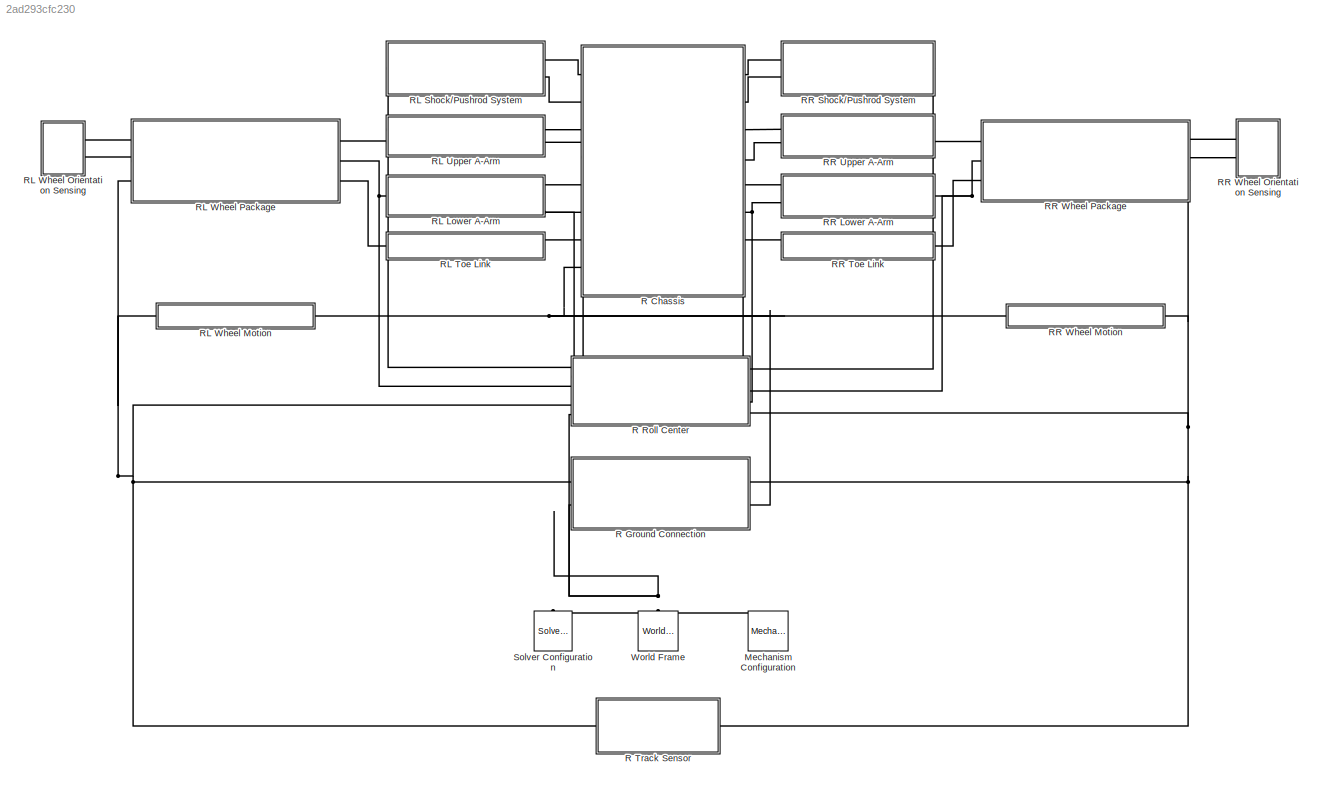
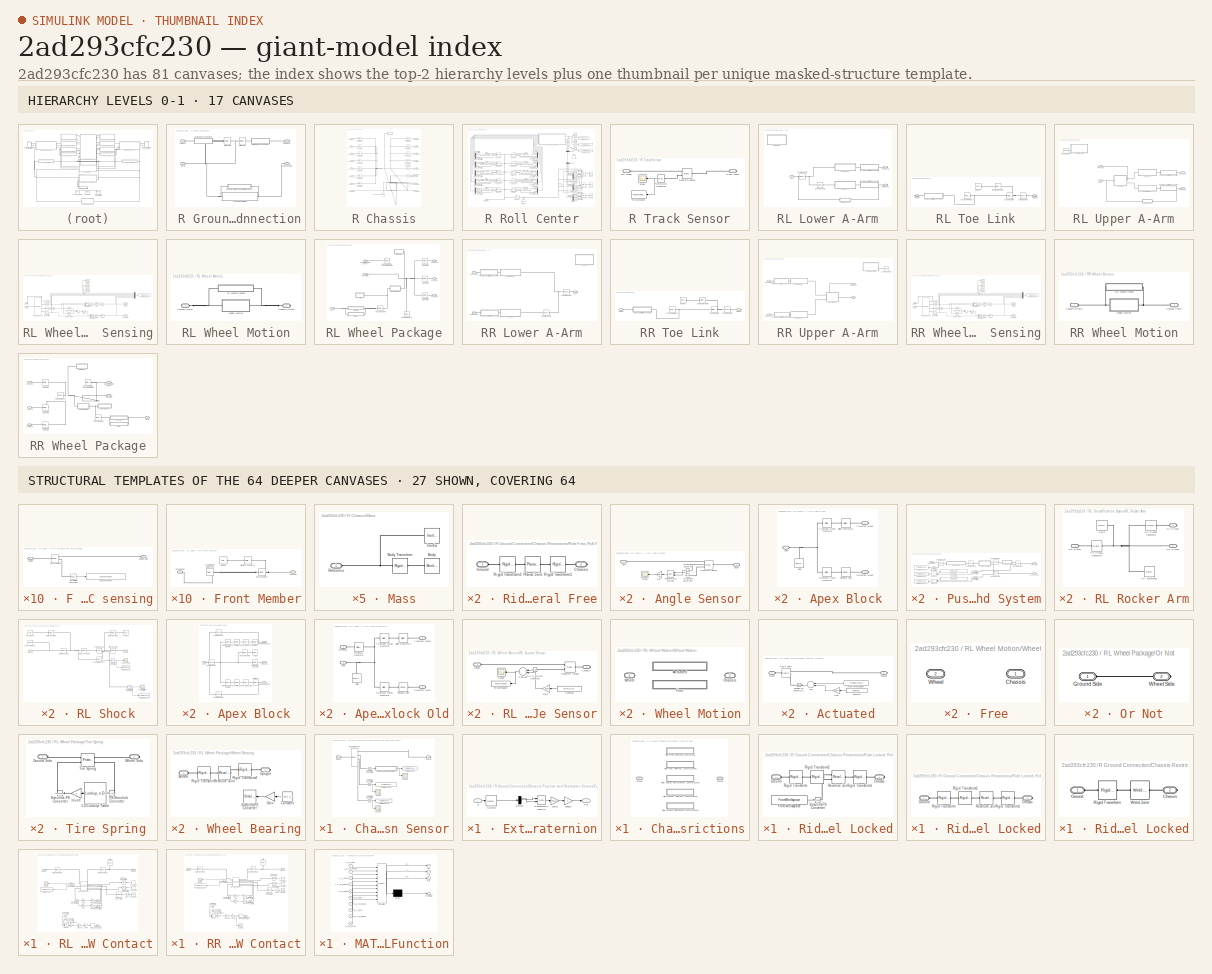
[diagram: thumbnail index - top-2 hierarchy levels (17 canvases) + 27 structural-template representatives of the remaining 64 canvases]
MODEL slx_2ad293cfc230
KIND model
CONFIG AbsTol = auto
CONFIG EnableMultiTasking = on
CONFIG FixedStep = auto
CONFIG MaxStep = SP.SC.R.dt_max
CONFIG MinStep = SP.SC.R.dt_min
CONFIG RelTol = 1e-3
CONFIG SampleTimeConstraint = Unconstrained
CONFIG Solver = ode45
CONFIG SolverName = ode45
CONFIG StartTime = 0.0
CONFIG StopTime = SP.SC.R.t_end
BLOCK [SubSystem]  R Ground Connection
  Ports = [0, 0, 0, 0, 0, 2, 2]
  RequestExecContextInheritance = off
BLOCK [PMIOPort]  R Ground Connection/Chassis Origin
  Port = 4
  Side = Right
BLOCK [SubSystem]  R Ground Connection/Chassis Position and Orientation Sensor
  Ports = [0, 0, 0, 0, 0, 1, 1]
  RequestExecContextInheritance = off
BLOCK [PMIOPort]  R Ground Connection/Chassis Position and Orientation Sensor/Chassis
  Port = 2
  Side = Right
BLOCK [SubSystem]  R Ground Connection/Chassis Position and Orientation Sensor/Extract Angle From Quaternion
  Ports = [1, 1]
  RequestExecContextInheritance = off
BLOCK [Gain]  R Ground Connection/Chassis Position and Orientation Sensor/Extract Angle From Quaternion/180//pi
  Gain = 180/pi
  OutDataTypeStr = Inherit: Inherit via internal rule
  ParamDataTypeStr = Inherit: Inherit via internal rule
  SaturateOnIntegerOverflow = off
BLOCK [Demux]  R Ground Connection/Chassis Position and Orientation Sensor/Extract Angle From Quaternion/Demux
  DisplayOption = bar
  Outputs = 2
  Ports = [1, 2]
BLOCK [Outport]  R Ground Connection/Chassis Position and Orientation Sensor/Extract Angle From Quaternion/Phi
  IconDisplay = Port number
BLOCK [Inport]  R Ground Connection/Chassis Position and Orientation Sensor/Extract Angle From Quaternion/Q
  IconDisplay = Port number
BLOCK [Selector]  R Ground Connection/Chassis Position and Orientation Sensor/Extract Angle From Quaternion/Selector
  IndexOptions = Index vector (dialog)
  Indices = [1 2]
  InputPortWidth = 4
  OutputSizes = 1
  Ports = [1, 1]
BLOCK [Trigonometry]  R Ground Connection/Chassis Position and Orientation Sensor/Extract Angle From Quaternion/Trigonometric Function
  Operator = atan2
  Ports = [2, 1]
BLOCK [Gain]  R Ground Connection/Chassis Position and Orientation Sensor/Extract Angle From Quaternion/double
  Gain = 2
  OutDataTypeStr = Inherit: Inherit via internal rule
  ParamDataTypeStr = Inherit: Inherit via internal rule
  SaturateOnIntegerOverflow = off
BLOCK [PMIOPort]  R Ground Connection/Chassis Position and Orientation Sensor/Ground
  Side = Left
BLOCK [Reference]  R Ground Connection/Chassis Position and Orientation Sensor/PS-Simulink Converter  REF=nesl_utility/PS-Simulink
Converter
  Ports = [0, 1, 0, 0, 0, 1]
  SourceBlock = nesl_utility/PS-Simulink\nConverter
  SourceProductBaseCode = SS
  SourceProductName = Simscape
  SourceType = PS-Simulink\nConverter
BLOCK [Reference]  R Ground Connection/Chassis Position and Orientation Sensor/PS-Simulink Converter1  REF=nesl_utility/PS-Simulink
Converter
  Ports = [0, 1, 0, 0, 0, 1]
  SourceBlock = nesl_utility/PS-Simulink\nConverter
  SourceProductBaseCode = SS
  SourceProductName = Simscape
  SourceType = PS-Simulink\nConverter
BLOCK [Reference]  R Ground Connection/Chassis Position and Orientation Sensor/PS-Simulink Converter2  REF=nesl_utility/PS-Simulink
Converter
  Ports = [0, 1, 0, 0, 0, 1]
  SourceBlock = nesl_utility/PS-Simulink\nConverter
  SourceProductBaseCode = SS
  SourceProductName = Simscape
  SourceType = PS-Simulink\nConverter
BLOCK [Scope]  R Ground Connection/Chassis Position and Orientation Sensor/Scope
  Floating = off
  NumInputPorts = 1
  Ports = [1]
  ScopeSpecificationString = Simulink.scopes.TimeScopeBlockCfg('CurrentConfiguration', extmgr.ConfigurationSet(extmgr.Configuration('Core','General UI',true),extmgr.Configuration('Core','Source UI',true),extmgr.Configuration('Sources','WiredSimulink',true,'DataLoggingVariableName','ScopeData1'),extmgr.Configuration('Visuals','Time Domain',true,'SerializedDisplays',{struct('MinYLimReal','-2.0577','MaxYLimReal','0.22863','YLabe...<+1355ch>
BLOCK [Scope]  R Ground Connection/Chassis Position and Orientation Sensor/Scope1
  Floating = off
  NumInputPorts = 1
  Ports = [1]
  ScopeSpecificationString = Simulink.scopes.TimeScopeBlockCfg('CurrentConfiguration', extmgr.ConfigurationSet(extmgr.Configuration('Core','General UI',true),extmgr.Configuration('Core','Source UI',true),extmgr.Configuration('Sources','WiredSimulink',true,'DataLoggingVariableName','ScopeData2'),extmgr.Configuration('Visuals','Time Domain',true,'SerializedDisplays',{struct('MinYLimReal','1.999999982','MaxYLimReal','2.000000002...<+1389ch>
BLOCK [Scope]  R Ground Connection/Chassis Position and Orientation Sensor/Scope2
  Floating = off
  NumInputPorts = 1
  Ports = [1]
  ScopeSpecificationString = Simulink.scopes.TimeScopeBlockCfg('CurrentConfiguration', extmgr.ConfigurationSet(extmgr.Configuration('Core','General UI',true),extmgr.Configuration('Core','Source UI',true),extmgr.Configuration('Sources','WiredSimulink',true,'DataLoggingVariableName','ScopeData3'),extmgr.Configuration('Visuals','Time Domain',true,'SerializedDisplays',{struct('MinYLimReal','-0.0000059','MaxYLimReal','0.0000007','...<+1375ch>
BLOCK [ToWorkspace]  R Ground Connection/Chassis Position and Orientation Sensor/To Workspace
  FixptAsFi = on
  MaxDataPoints = inf
  Ports = [1]
  SampleTime = -1
  SaveFormat = Timeseries
  VariableName = R_SY_roll_angle
BLOCK [ToWorkspace]  R Ground Connection/Chassis Position and Orientation Sensor/To Workspace1
  FixptAsFi = on
  MaxDataPoints = inf
  Ports = [1]
  SampleTime = -1
  SaveFormat = Timeseries
  VariableName = R_SY_ride_height
BLOCK [ToWorkspace]  R Ground Connection/Chassis Position and Orientation Sensor/To Workspace2
  FixptAsFi = on
  MaxDataPoints = inf
  Ports = [1]
  SampleTime = -1
  SaveFormat = Timeseries
  VariableName = R_SY_CH_lateral_position
BLOCK [Reference]  R Ground Connection/Chassis Position and Orientation Sensor/Transform Sensor  REF=sm_lib/Frames and
Transforms/Transform
Sensor
  Ports = [0, 0, 0, 0, 0, 1, 4]
  SourceBlock = sm_lib/Frames and\nTransforms/Transform\nSensor
  SourceProductBaseCode = MS
  SourceProductName = Simscape Multibody
  SourceType = Transform\nSensor
BLOCK [SubSystem]  R Ground Connection/Chassis Restrictions
  Ports = [0, 0, 0, 0, 0, 1, 1]
  RequestExecContextInheritance = off
  Variant = on
BLOCK [PMIOPort]  R Ground Connection/Chassis Restrictions/Chassis
  Port = 2
  Side = Right
BLOCK [PMIOPort]  R Ground Connection/Chassis Restrictions/Ground
  Side = Left
BLOCK [SubSystem]  R Ground Connection/Chassis Restrictions/Ride Free, Roll Free, Lateral Free
  Ports = [0, 0, 0, 0, 0, 1, 1]
  RequestExecContextInheritance = off
  VariantControl = strcmp(SP.SC.R.VS_modes.CH, "ride_free_roll_free_lat_free")
BLOCK [PMIOPort]  R Ground Connection/Chassis Restrictions/Ride Free, Roll Free, Lateral Free/Chassis
  Port = 2
  Side = Right
BLOCK [PMIOPort]  R Ground Connection/Chassis Restrictions/Ride Free, Roll Free, Lateral Free/Ground
  Side = Left
BLOCK [Reference]  R Ground Connection/Chassis Restrictions/Ride Free, Roll Free, Lateral Free/Planar Joint  REF=sm_lib/Joints/Planar Joint
  Ports = [0, 0, 0, 0, 0, 1, 1]
  SourceBlock = sm_lib/Joints/Planar Joint
  SourceProductBaseCode = MS
  SourceProductName = Simscape Multibody
  SourceType = Planar Joint
BLOCK [Reference]  R Ground Connection/Chassis Restrictions/Ride Free, Roll Free, Lateral Free/Rigid Transform1  REF=sm_lib/Frames and
Transforms/Rigid
Transform
  Ports = [0, 0, 0, 0, 0, 1, 1]
  SourceBlock = sm_lib/Frames and\nTransforms/Rigid\nTransform
  SourceProductBaseCode = MS
  SourceProductName = Simscape Multibody
  SourceType = Rigid\nTransform
BLOCK [Reference]  R Ground Connection/Chassis Restrictions/Ride Free, Roll Free, Lateral Free/Rigid Transform2  REF=sm_lib/Frames and
Transforms/Rigid
Transform
  Ports = [0, 0, 0, 0, 0, 1, 1]
  SourceBlock = sm_lib/Frames and\nTransforms/Rigid\nTransform
  SourceProductBaseCode = MS
  SourceProductName = Simscape Multibody
  SourceType = Rigid\nTransform
BLOCK [SubSystem]  R Ground Connection/Chassis Restrictions/Ride Free, Roll Free, Lateral Locked
  Ports = [0, 0, 0, 0, 0, 1, 1]
  RequestExecContextInheritance = off
  VariantControl = strcmp(SP.SC.R.VS_modes.CH, "ride_free_roll_free_lat_locked")
BLOCK [PMIOPort]  R Ground Connection/Chassis Restrictions/Ride Free, Roll Free, Lateral Locked/Chassis
  Port = 2
  Side = Right
BLOCK [PMIOPort]  R Ground Connection/Chassis Restrictions/Ride Free, Roll Free, Lateral Locked/Ground
  Side = Left
BLOCK [Reference]  R Ground Connection/Chassis Restrictions/Ride Free, Roll Free, Lateral Locked/Pin Slot Joint  REF=sm_lib/Joints/Pin Slot Joint
  Ports = [0, 0, 0, 0, 0, 1, 1]
  SourceBlock = sm_lib/Joints/Pin Slot Joint
  SourceProductBaseCode = MS
  SourceProductName = Simscape Multibody
  SourceType = Pin Slot Joint
BLOCK [Reference]  R Ground Connection/Chassis Restrictions/Ride Free, Roll Free, Lateral Locked/Rigid Transform1  REF=sm_lib/Frames and
Transforms/Rigid
Transform
  Ports = [0, 0, 0, 0, 0, 1, 1]
  SourceBlock = sm_lib/Frames and\nTransforms/Rigid\nTransform
  SourceProductBaseCode = MS
  SourceProductName = Simscape Multibody
  SourceType = Rigid\nTransform
BLOCK [Reference]  R Ground Connection/Chassis Restrictions/Ride Free, Roll Free, Lateral Locked/Rigid Transform2  REF=sm_lib/Frames and
Transforms/Rigid
Transform
  Ports = [0, 0, 0, 0, 0, 1, 1]
  SourceBlock = sm_lib/Frames and\nTransforms/Rigid\nTransform
  SourceProductBaseCode = MS
  SourceProductName = Simscape Multibody
  SourceType = Rigid\nTransform
BLOCK [SubSystem]  R Ground Connection/Chassis Restrictions/Ride Locked, Roll Actuated, Lateral Locked
  Ports = [0, 0, 0, 0, 0, 1, 1]
  RequestExecContextInheritance = off
  VariantControl = strcmp(SP.SC.R.VS_modes.CH, "ride_locked_roll_actuated_lat_locked")
BLOCK [PMIOPort]  R Ground Connection/Chassis Restrictions/Ride Locked, Roll Actuated, Lateral Locked/Chassis
  Port = 2
  Side = Right
BLOCK [FromWorkspace]  R Ground Connection/Chassis Restrictions/Ride Locked, Roll Actuated, Lateral Locked/From Workspace
  SampleTime = 0
  VariableName = SP.SC.R.roll_input
  ZeroCross = on
BLOCK [PMIOPort]  R Ground Connection/Chassis Restrictions/Ride Locked, Roll Actuated, Lateral Locked/Ground
  Side = Left
BLOCK [Reference]  R Ground Connection/Chassis Restrictions/Ride Locked, Roll Actuated, Lateral Locked/Revolute Joint  REF=sm_lib/Joints/Revolute Joint
  Ports = [0, 0, 0, 0, 0, 2, 1]
  SourceBlock = sm_lib/Joints/Revolute Joint
  SourceProductBaseCode = MS
  SourceProductName = Simscape Multibody
  SourceType = Revolute Joint
BLOCK [Reference]  R Ground Connection/Chassis Restrictions/Ride Locked, Roll Actuated, Lateral Locked/Rigid Transform  REF=sm_lib/Frames and
Transforms/Rigid
Transform
  Ports = [0, 0, 0, 0, 0, 1, 1]
  SourceBlock = sm_lib/Frames and\nTransforms/Rigid\nTransform
  SourceProductBaseCode = MS
  SourceProductName = Simscape Multibody
  SourceType = Rigid\nTransform
BLOCK [Reference]  R Ground Connection/Chassis Restrictions/Ride Locked, Roll Actuated, Lateral Locked/Rigid Transform1  REF=sm_lib/Frames and
Transforms/Rigid
Transform
  Ports = [0, 0, 0, 0, 0, 1, 1]
  SourceBlock = sm_lib/Frames and\nTransforms/Rigid\nTransform
  SourceProductBaseCode = MS
  SourceProductName = Simscape Multibody
  SourceType = Rigid\nTransform
BLOCK [Reference]  R Ground Connection/Chassis Restrictions/Ride Locked, Roll Actuated, Lateral Locked/Rigid Transform2  REF=sm_lib/Frames and
Transforms/Rigid
Transform
  Ports = [0, 0, 0, 0, 0, 1, 1]
  SourceBlock = sm_lib/Frames and\nTransforms/Rigid\nTransform
  SourceProductBaseCode = MS
  SourceProductName = Simscape Multibody
  SourceType = Rigid\nTransform
BLOCK [Reference]  R Ground Connection/Chassis Restrictions/Ride Locked, Roll Actuated, Lateral Locked/Simulink-PS Converter  REF=nesl_utility/Simulink-PS
Converter
  Ports = [1, 0, 0, 0, 0, 0, 1]
  SourceBlock = nesl_utility/Simulink-PS\nConverter
  SourceProductBaseCode = SS
  SourceProductName = Simscape
  SourceType = Simulink-PS\nConverter
BLOCK [SubSystem]  R Ground Connection/Chassis Restrictions/Ride Locked, Roll Free, Lateral Locked
  Ports = [0, 0, 0, 0, 0, 1, 1]
  RequestExecContextInheritance = off
  VariantControl = strcmp(SP.SC.R.VS_modes.CH, "ride_locked_roll_free_lat_locked")
BLOCK [PMIOPort]  R Ground Connection/Chassis Restrictions/Ride Locked, Roll Free, Lateral Locked/Chassis
  Port = 2
  Side = Right
BLOCK [PMIOPort]  R Ground Connection/Chassis Restrictions/Ride Locked, Roll Free, Lateral Locked/Ground
  Side = Left
BLOCK [Reference]  R Ground Connection/Chassis Restrictions/Ride Locked, Roll Free, Lateral Locked/Revolute Joint  REF=sm_lib/Joints/Revolute Joint
  Ports = [0, 0, 0, 0, 0, 1, 1]
  SourceBlock = sm_lib/Joints/Revolute Joint
  SourceProductBaseCode = MS
  SourceProductName = Simscape Multibody
  SourceType = Revolute Joint
BLOCK [Reference]  R Ground Connection/Chassis Restrictions/Ride Locked, Roll Free, Lateral Locked/Rigid Transform  REF=sm_lib/Frames and
Transforms/Rigid
Transform
  Ports = [0, 0, 0, 0, 0, 1, 1]
  SourceBlock = sm_lib/Frames and\nTransforms/Rigid\nTransform
  SourceProductBaseCode = MS
  SourceProductName = Simscape Multibody
  SourceType = Rigid\nTransform
BLOCK [Reference]  R Ground Connection/Chassis Restrictions/Ride Locked, Roll Free, Lateral Locked/Rigid Transform1  REF=sm_lib/Frames and
Transforms/Rigid
Transform
  Ports = [0, 0, 0, 0, 0, 1, 1]
  SourceBlock = sm_lib/Frames and\nTransforms/Rigid\nTransform
  SourceProductBaseCode = MS
  SourceProductName = Simscape Multibody
  SourceType = Rigid\nTransform
BLOCK [Reference]  R Ground Connection/Chassis Restrictions/Ride Locked, Roll Free, Lateral Locked/Rigid Transform2  REF=sm_lib/Frames and
Transforms/Rigid
Transform
  Ports = [0, 0, 0, 0, 0, 1, 1]
  SourceBlock = sm_lib/Frames and\nTransforms/Rigid\nTransform
  SourceProductBaseCode = MS
  SourceProductName = Simscape Multibody
  SourceType = Rigid\nTransform
BLOCK [SubSystem]  R Ground Connection/Chassis Restrictions/Ride Locked, Roll Locked, Lateral Locked
  Ports = [0, 0, 0, 0, 0, 1, 1]
  RequestExecContextInheritance = off
  VariantControl = strcmp(SP.SC.R.VS_modes.CH, "ride_locked_roll_locked_lat_locked")
BLOCK [PMIOPort]  R Ground Connection/Chassis Restrictions/Ride Locked, Roll Locked, Lateral Locked/Chassis
  Port = 2
  Side = Right
BLOCK [PMIOPort]  R Ground Connection/Chassis Restrictions/Ride Locked, Roll Locked, Lateral Locked/Ground
  Side = Left
BLOCK [Reference]  R Ground Connection/Chassis Restrictions/Ride Locked, Roll Locked, Lateral Locked/Rigid Transform  REF=sm_lib/Frames and
Transforms/Rigid
Transform
  Ports = [0, 0, 0, 0, 0, 1, 1]
  SourceBlock = sm_lib/Frames and\nTransforms/Rigid\nTransform
  SourceProductBaseCode = MS
  SourceProductName = Simscape Multibody
  SourceType = Rigid\nTransform
BLOCK [Reference]  R Ground Connection/Chassis Restrictions/Ride Locked, Roll Locked, Lateral Locked/Weld Joint  REF=sm_lib/Joints/Weld Joint
  Ports = [0, 0, 0, 0, 0, 1, 1]
  SourceBlock = sm_lib/Joints/Weld Joint
  SourceProductBaseCode = MS
  SourceProductName = Simscape Multibody
  SourceType = Weld Joint
BLOCK [PMIOPort]  R Ground Connection/Left Wheel
  Side = Left
BLOCK [SubSystem]  R Ground Connection/RL Wheel Ground Contact
  Ports = [0, 0, 0, 0, 0, 1, 1]
  RequestExecContextInheritance = off
BLOCK [Gain]  R Ground Connection/RL Wheel Ground Contact/1//Speed
  Commented = on
  Gain = 1 / 40.4656
  OutDataTypeStr = Inherit: Inherit via internal rule
  ParamDataTypeStr = Inherit: Inherit via internal rule
  SaturateOnIntegerOverflow = off
BLOCK [Reference]  R Ground Connection/RL Wheel Ground Contact/Bushing Joint1  REF=sm_lib/Joints/Bushing Joint
  Ports = [0, 0, 0, 0, 0, 6, 3]
  SourceBlock = sm_lib/Joints/Bushing Joint
  SourceProductBaseCode = MS
  SourceProductName = Simscape Multibody
  SourceType = Bushing Joint
BLOCK [Constant]  R Ground Connection/RL Wheel Ground Contact/Constant
  Value = 2 * SP.R.CH.I.m
BLOCK [Constant]  R Ground Connection/RL Wheel Ground Contact/Constant1
  Value = 0
BLOCK [Constant]  R Ground Connection/RL Wheel Ground Contact/Constant2
  Value = 0
BLOCK [Gain]  R Ground Connection/RL Wheel Ground Contact/Cornering Stiffness
  Commented = on
  Gain = 1.7 / (8 * pi / 180)
  OutDataTypeStr = Inherit: Inherit via internal rule
  ParamDataTypeStr = Inherit: Inherit via internal rule
  SaturateOnIntegerOverflow = off
BLOCK [Delay]  R Ground Connection/RL Wheel Ground Contact/Delay
  Commented = on
  DelayLength = 1
  InitialCondition = 0
  InputPortMap = u0
  Ports = [1, 1]
BLOCK [Gain]  R Ground Connection/RL Wheel Ground Contact/Fy
  Gain = SP.R.SY.cornering_force_coeffient
  OutDataTypeStr = Inherit: Inherit via internal rule
  ParamDataTypeStr = Inherit: Inherit via internal rule
  SaturateOnIntegerOverflow = off
BLOCK [Gain]  R Ground Connection/RL Wheel Ground Contact/Gain
  Gain = 0
  OutDataTypeStr = Inherit: Inherit via internal rule
  ParamDataTypeStr = Inherit: Inherit via internal rule
  SaturateOnIntegerOverflow = off
BLOCK [PMIOPort]  R Ground Connection/RL Wheel Ground Contact/Ground
  Side = Right
BLOCK [Reference]  R Ground Connection/RL Wheel Ground Contact/Inertia  REF=sm_lib/Body Elements/Inertia
  Ports = [0, 0, 0, 0, 0, 0, 1]
  SourceBlock = sm_lib/Body Elements/Inertia
  SourceProductBaseCode = MS
  SourceProductName = Simscape Multibody
  SourceType = Inertia
BLOCK [Gain]  R Ground Connection/RL Wheel Ground Contact/Invert
  Commented = on
  Gain = -1
  OutDataTypeStr = Inherit: Inherit via internal rule
  ParamDataTypeStr = Inherit: Inherit via internal rule
  SaturateOnIntegerOverflow = off
BLOCK [Gain]  R Ground Connection/RL Wheel Ground Contact/Invert1
  Gain = -1
  OutDataTypeStr = Inherit: Inherit via internal rule
  ParamDataTypeStr = Inherit: Inherit via internal rule
  SaturateOnIntegerOverflow = off
BLOCK [Gain]  R Ground Connection/RL Wheel Ground Contact/Invert2
  Gain = -1
  OutDataTypeStr = Inherit: Inherit via internal rule
  ParamDataTypeStr = Inherit: Inherit via internal rule
  SaturateOnIntegerOverflow = off
BLOCK [Gain]  R Ground Connection/RL Wheel Ground Contact/Mz
  Gain = SP.R.SY.cornering_moment_coeffient
  OutDataTypeStr = Inherit: Inherit via internal rule
  ParamDataTypeStr = Inherit: Inherit via internal rule
  SaturateOnIntegerOverflow = off
BLOCK [Reference]  R Ground Connection/RL Wheel Ground Contact/PS-Simulink Converter  REF=nesl_utility/PS-Simulink
Converter
  Commented = on
  Ports = [0, 1, 0, 0, 0, 1]
  SourceBlock = nesl_utility/PS-Simulink\nConverter
  SourceProductBaseCode = SS
  SourceProductName = Simscape
  SourceType = PS-Simulink\nConverter
BLOCK [Reference]  R Ground Connection/RL Wheel Ground Contact/PS-Simulink Converter1  REF=nesl_utility/PS-Simulink
Converter
  Commented = on
  Ports = [0, 1, 0, 0, 0, 1]
  SourceBlock = nesl_utility/PS-Simulink\nConverter
  SourceProductBaseCode = SS
  SourceProductName = Simscape
  SourceType = PS-Simulink\nConverter
BLOCK [Reference]  R Ground Connection/RL Wheel Ground Contact/PS-Simulink Converter2  REF=nesl_utility/PS-Simulink
Converter
  Ports = [0, 1, 0, 0, 0, 1]
  SourceBlock = nesl_utility/PS-Simulink\nConverter
  SourceProductBaseCode = SS
  SourceProductName = Simscape
  SourceType = PS-Simulink\nConverter
BLOCK [Reference]  R Ground Connection/RL Wheel Ground Contact/PS-Simulink Converter3  REF=nesl_utility/PS-Simulink
Converter
  Ports = [0, 1, 0, 0, 0, 1]
  SourceBlock = nesl_utility/PS-Simulink\nConverter
  SourceProductBaseCode = SS
  SourceProductName = Simscape
  SourceType = PS-Simulink\nConverter
BLOCK [Product]  R Ground Connection/RL Wheel Ground Contact/Product
  Commented = on
  InputSameDT = off
  OutDataTypeStr = Inherit: Inherit via internal rule
  Ports = [2, 1]
  RndMeth = Floor
  SaturateOnIntegerOverflow = off
BLOCK [Reference]  R Ground Connection/RL Wheel Ground Contact/Rigid Transform1  REF=sm_lib/Frames and
Transforms/Rigid
Transform
  Ports = [0, 0, 0, 0, 0, 1, 1]
  SourceBlock = sm_lib/Frames and\nTransforms/Rigid\nTransform
  SourceProductBaseCode = MS
  SourceProductName = Simscape Multibody
  SourceType = Rigid\nTransform
BLOCK [Reference]  R Ground Connection/RL Wheel Ground Contact/Rigid Transform2  REF=sm_lib/Frames and
Transforms/Rigid
Transform
  Ports = [0, 0, 0, 0, 0, 1, 1]
  SourceBlock = sm_lib/Frames and\nTransforms/Rigid\nTransform
  SourceProductBaseCode = MS
  SourceProductName = Simscape Multibody
  SourceType = Rigid\nTransform
BLOCK [Scope]  R Ground Connection/RL Wheel Ground Contact/Scope
  Floating = off
  NumInputPorts = 1
  Ports = [1]
  ScopeSpecificationString = Simulink.scopes.TimeScopeBlockCfg('CurrentConfiguration', extmgr.ConfigurationSet(extmgr.Configuration('Core','General UI',true),extmgr.Configuration('Core','Source UI',true),extmgr.Configuration('Sources','WiredSimulink',true,'DataLoggingVariableName','ScopeData1'),extmgr.Configuration('Visuals','Time Domain',true,'SerializedDisplays',{struct('MinYLimReal','58.62926','MaxYLimReal','119.59687','YL...<+1435ch>
BLOCK [Reference]  R Ground Connection/RL Wheel Ground Contact/Simulink-PS Converter  REF=nesl_utility/Simulink-PS
Converter
  Commented = on
  Ports = [1, 0, 0, 0, 0, 0, 1]
  SourceBlock = nesl_utility/Simulink-PS\nConverter
  SourceProductBaseCode = SS
  SourceProductName = Simscape
  SourceType = Simulink-PS\nConverter
BLOCK [Reference]  R Ground Connection/RL Wheel Ground Contact/Simulink-PS Converter1  REF=nesl_utility/Simulink-PS
Converter
  Ports = [1, 0, 0, 0, 0, 0, 1]
  SourceBlock = nesl_utility/Simulink-PS\nConverter
  SourceProductBaseCode = SS
  SourceProductName = Simscape
  SourceType = Simulink-PS\nConverter
BLOCK [Reference]  R Ground Connection/RL Wheel Ground Contact/Simulink-PS Converter2  REF=nesl_utility/Simulink-PS
Converter
  Ports = [1, 0, 0, 0, 0, 0, 1]
  SourceBlock = nesl_utility/Simulink-PS\nConverter
  SourceProductBaseCode = SS
  SourceProductName = Simscape
  SourceType = Simulink-PS\nConverter
BLOCK [Reference]  R Ground Connection/RL Wheel Ground Contact/Simulink-PS Converter3  REF=nesl_utility/Simulink-PS
Converter
  Ports = [1, 0, 0, 0, 0, 0, 1]
  SourceBlock = nesl_utility/Simulink-PS\nConverter
  SourceProductBaseCode = SS
  SourceProductName = Simscape
  SourceType = Simulink-PS\nConverter
BLOCK [Reference]  R Ground Connection/RL Wheel Ground Contact/Simulink-PS Converter4  REF=nesl_utility/Simulink-PS
Converter
  Ports = [1, 0, 0, 0, 0, 0, 1]
  SourceBlock = nesl_utility/Simulink-PS\nConverter
  SourceProductBaseCode = SS
  SourceProductName = Simscape
  SourceType = Simulink-PS\nConverter
BLOCK [Reference]  R Ground Connection/RL Wheel Ground Contact/Simulink-PS Converter5  REF=nesl_utility/Simulink-PS
Converter
  Ports = [1, 0, 0, 0, 0, 0, 1]
  SourceBlock = nesl_utility/Simulink-PS\nConverter
  SourceProductBaseCode = SS
  SourceProductName = Simscape
  SourceType = Simulink-PS\nConverter
BLOCK [ToWorkspace]  R Ground Connection/RL Wheel Ground Contact/To Workspace
  FixptAsFi = on
  MaxDataPoints = inf
  Ports = [1]
  SampleTime = -1
  SaveFormat = Timeseries
  VariableName = RL_WP_tire_load
BLOCK [PMIOPort]  R Ground Connection/RL Wheel Ground Contact/Wheel
  Port = 2
  Side = Left
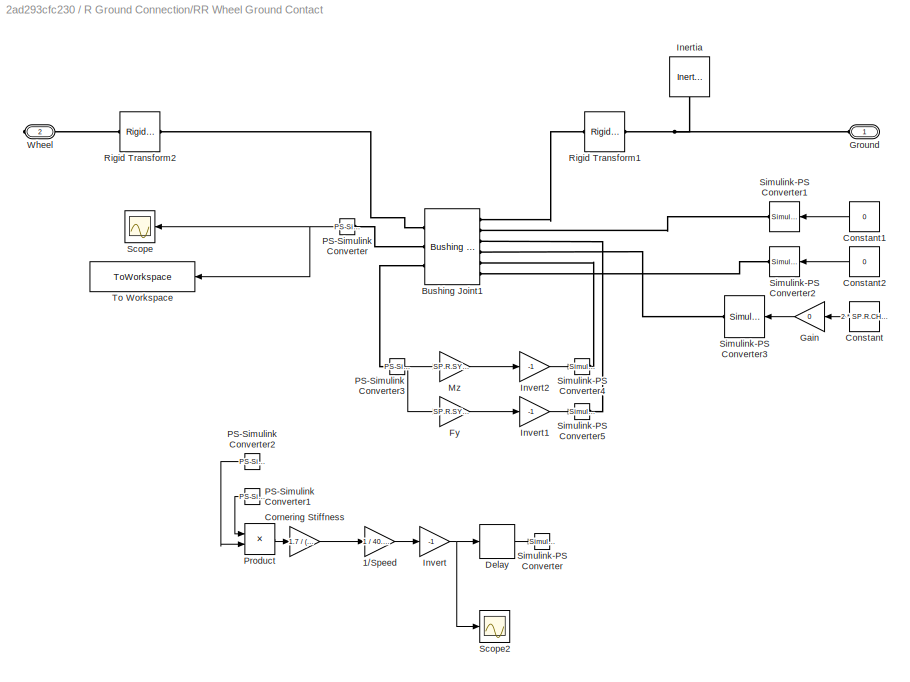
BLOCK [SubSystem]  R Ground Connection/RR Wheel Ground Contact
  Ports = [0, 0, 0, 0, 0, 1, 1]
  RequestExecContextInheritance = off
BLOCK [Gain]  R Ground Connection/RR Wheel Ground Contact/1//Speed
  Commented = on
  Gain = 1 / 40.4656
  OutDataTypeStr = Inherit: Inherit via internal rule
  ParamDataTypeStr = Inherit: Inherit via internal rule
  SaturateOnIntegerOverflow = off
BLOCK [Reference]  R Ground Connection/RR Wheel Ground Contact/Bushing Joint1  REF=sm_lib/Joints/Bushing Joint
  Ports = [0, 0, 0, 0, 0, 6, 3]
  SourceBlock = sm_lib/Joints/Bushing Joint
  SourceProductBaseCode = MS
  SourceProductName = Simscape Multibody
  SourceType = Bushing Joint
BLOCK [Constant]  R Ground Connection/RR Wheel Ground Contact/Constant
  Value = 2 * SP.R.CH.I.m
BLOCK [Constant]  R Ground Connection/RR Wheel Ground Contact/Constant1
  Value = 0
BLOCK [Constant]  R Ground Connection/RR Wheel Ground Contact/Constant2
  Value = 0
BLOCK [Gain]  R Ground Connection/RR Wheel Ground Contact/Cornering Stiffness
  Commented = on
  Gain = 1.7 / (8 * pi / 180)
  OutDataTypeStr = Inherit: Inherit via internal rule
  ParamDataTypeStr = Inherit: Inherit via internal rule
  SaturateOnIntegerOverflow = off
BLOCK [Delay]  R Ground Connection/RR Wheel Ground Contact/Delay
  Commented = on
  DelayLength = 1
  InitialCondition = 0
  InputPortMap = u0
  Ports = [1, 1]
BLOCK [Gain]  R Ground Connection/RR Wheel Ground Contact/Fy
  Gain = SP.R.SY.cornering_force_coeffient
  OutDataTypeStr = Inherit: Inherit via internal rule
  ParamDataTypeStr = Inherit: Inherit via internal rule
  SaturateOnIntegerOverflow = off
BLOCK [Gain]  R Ground Connection/RR Wheel Ground Contact/Gain
  Gain = 0
  OutDataTypeStr = Inherit: Inherit via internal rule
  ParamDataTypeStr = Inherit: Inherit via internal rule
  SaturateOnIntegerOverflow = off
BLOCK [PMIOPort]  R Ground Connection/RR Wheel Ground Contact/Ground
  Side = Left
BLOCK [Reference]  R Ground Connection/RR Wheel Ground Contact/Inertia  REF=sm_lib/Body Elements/Inertia
  Ports = [0, 0, 0, 0, 0, 0, 1]
  SourceBlock = sm_lib/Body Elements/Inertia
  SourceProductBaseCode = MS
  SourceProductName = Simscape Multibody
  SourceType = Inertia
BLOCK [Gain]  R Ground Connection/RR Wheel Ground Contact/Invert
  Commented = on
  Gain = -1
  OutDataTypeStr = Inherit: Inherit via internal rule
  ParamDataTypeStr = Inherit: Inherit via internal rule
  SaturateOnIntegerOverflow = off
BLOCK [Gain]  R Ground Connection/RR Wheel Ground Contact/Invert1
  Gain = -1
  OutDataTypeStr = Inherit: Inherit via internal rule
  ParamDataTypeStr = Inherit: Inherit via internal rule
  SaturateOnIntegerOverflow = off
BLOCK [Gain]  R Ground Connection/RR Wheel Ground Contact/Invert2
  Gain = -1
  OutDataTypeStr = Inherit: Inherit via internal rule
  ParamDataTypeStr = Inherit: Inherit via internal rule
  SaturateOnIntegerOverflow = off
BLOCK [Gain]  R Ground Connection/RR Wheel Ground Contact/Mz
  Gain = SP.R.SY.cornering_moment_coeffient
  OutDataTypeStr = Inherit: Inherit via internal rule
  ParamDataTypeStr = Inherit: Inherit via internal rule
  SaturateOnIntegerOverflow = off
BLOCK [Reference]  R Ground Connection/RR Wheel Ground Contact/PS-Simulink Converter  REF=nesl_utility/PS-Simulink
Converter
  Ports = [0, 1, 0, 0, 0, 1]
  SourceBlock = nesl_utility/PS-Simulink\nConverter
  SourceProductBaseCode = SS
  SourceProductName = Simscape
  SourceType = PS-Simulink\nConverter
BLOCK [Reference]  R Ground Connection/RR Wheel Ground Contact/PS-Simulink Converter1  REF=nesl_utility/PS-Simulink
Converter
  Commented = on
  Ports = [0, 1, 0, 0, 0, 1]
  SourceBlock = nesl_utility/PS-Simulink\nConverter
  SourceProductBaseCode = SS
  SourceProductName = Simscape
  SourceType = PS-Simulink\nConverter
BLOCK [Reference]  R Ground Connection/RR Wheel Ground Contact/PS-Simulink Converter2  REF=nesl_utility/PS-Simulink
Converter
  Commented = on
  Ports = [0, 1, 0, 0, 0, 1]
  SourceBlock = nesl_utility/PS-Simulink\nConverter
  SourceProductBaseCode = SS
  SourceProductName = Simscape
  SourceType = PS-Simulink\nConverter
BLOCK [Reference]  R Ground Connection/RR Wheel Ground Contact/PS-Simulink Converter3  REF=nesl_utility/PS-Simulink
Converter
  Ports = [0, 1, 0, 0, 0, 1]
  SourceBlock = nesl_utility/PS-Simulink\nConverter
  SourceProductBaseCode = SS
  SourceProductName = Simscape
  SourceType = PS-Simulink\nConverter
BLOCK [Product]  R Ground Connection/RR Wheel Ground Contact/Product
  Commented = on
  InputSameDT = off
  OutDataTypeStr = Inherit: Inherit via internal rule
  Ports = [2, 1]
  RndMeth = Floor
  SaturateOnIntegerOverflow = off
BLOCK [Reference]  R Ground Connection/RR Wheel Ground Contact/Rigid Transform1  REF=sm_lib/Frames and
Transforms/Rigid
Transform
  Ports = [0, 0, 0, 0, 0, 1, 1]
  SourceBlock = sm_lib/Frames and\nTransforms/Rigid\nTransform
  SourceProductBaseCode = MS
  SourceProductName = Simscape Multibody
  SourceType = Rigid\nTransform
BLOCK [Reference]  R Ground Connection/RR Wheel Ground Contact/Rigid Transform2  REF=sm_lib/Frames and
Transforms/Rigid
Transform
  Ports = [0, 0, 0, 0, 0, 1, 1]
  SourceBlock = sm_lib/Frames and\nTransforms/Rigid\nTransform
  SourceProductBaseCode = MS
  SourceProductName = Simscape Multibody
  SourceType = Rigid\nTransform
BLOCK [Scope]  R Ground Connection/RR Wheel Ground Contact/Scope
  Floating = off
  NumInputPorts = 1
  Ports = [1]
  ScopeSpecificationString = Simulink.scopes.TimeScopeBlockCfg('CurrentConfiguration', extmgr.ConfigurationSet(extmgr.Configuration('Core','General UI',true),extmgr.Configuration('Core','Source UI',true),extmgr.Configuration('Sources','WiredSimulink',true,'DataLoggingVariableName','ScopeData1'),extmgr.Configuration('Visuals','Time Domain',true,'SerializedDisplays',{struct('MinYLimReal','58.62926','MaxYLimReal','119.59687','YL...<+1434ch>
BLOCK [Scope]  R Ground Connection/RR Wheel Ground Contact/Scope2
  Commented = on
  Floating = off
  NumInputPorts = 1
  Ports = [1]
  ScopeSpecificationString = Simulink.scopes.TimeScopeBlockCfg('CurrentConfiguration', extmgr.ConfigurationSet(extmgr.Configuration('Core','General UI',true),extmgr.Configuration('Core','Source UI',true),extmgr.Configuration('Sources','WiredSimulink',true,'DataLoggingVariableName','ScopeData3'),extmgr.Configuration('Visuals','Time Domain',true,'SerializedDisplays',{struct('MinYLimReal','-65.64082','MaxYLimReal','7.29342','YLa...<+1394ch>
BLOCK [Reference]  R Ground Connection/RR Wheel Ground Contact/Simulink-PS Converter  REF=nesl_utility/Simulink-PS
Converter
  Commented = on
  Ports = [1, 0, 0, 0, 0, 0, 1]
  SourceBlock = nesl_utility/Simulink-PS\nConverter
  SourceProductBaseCode = SS
  SourceProductName = Simscape
  SourceType = Simulink-PS\nConverter
BLOCK [Reference]  R Ground Connection/RR Wheel Ground Contact/Simulink-PS Converter1  REF=nesl_utility/Simulink-PS
Converter
  Ports = [1, 0, 0, 0, 0, 0, 1]
  SourceBlock = nesl_utility/Simulink-PS\nConverter
  SourceProductBaseCode = SS
  SourceProductName = Simscape
  SourceType = Simulink-PS\nConverter
BLOCK [Reference]  R Ground Connection/RR Wheel Ground Contact/Simulink-PS Converter2  REF=nesl_utility/Simulink-PS
Converter
  Ports = [1, 0, 0, 0, 0, 0, 1]
  SourceBlock = nesl_utility/Simulink-PS\nConverter
  SourceProductBaseCode = SS
  SourceProductName = Simscape
  SourceType = Simulink-PS\nConverter
BLOCK [Reference]  R Ground Connection/RR Wheel Ground Contact/Simulink-PS Converter3  REF=nesl_utility/Simulink-PS
Converter
  Ports = [1, 0, 0, 0, 0, 0, 1]
  SourceBlock = nesl_utility/Simulink-PS\nConverter
  SourceProductBaseCode = SS
  SourceProductName = Simscape
  SourceType = Simulink-PS\nConverter
BLOCK [Reference]  R Ground Connection/RR Wheel Ground Contact/Simulink-PS Converter4  REF=nesl_utility/Simulink-PS
Converter
  Ports = [1, 0, 0, 0, 0, 0, 1]
  SourceBlock = nesl_utility/Simulink-PS\nConverter
  SourceProductBaseCode = SS
  SourceProductName = Simscape
  SourceType = Simulink-PS\nConverter
BLOCK [Reference]  R Ground Connection/RR Wheel Ground Contact/Simulink-PS Converter5  REF=nesl_utility/Simulink-PS
Converter
  Ports = [1, 0, 0, 0, 0, 0, 1]
  SourceBlock = nesl_utility/Simulink-PS\nConverter
  SourceProductBaseCode = SS
  SourceProductName = Simscape
  SourceType = Simulink-PS\nConverter
BLOCK [ToWorkspace]  R Ground Connection/RR Wheel Ground Contact/To Workspace
  FixptAsFi = on
  MaxDataPoints = inf
  Ports = [1]
  SampleTime = -1
  SaveFormat = Timeseries
  VariableName = RR_WP_tire_load
BLOCK [PMIOPort]  R Ground Connection/RR Wheel Ground Contact/Wheel
  Port = 2
  Side = Right
BLOCK [PMIOPort]  R Ground Connection/Right Wheel
  Port = 2
  Side = Right
BLOCK [Reference]  R Ground Connection/Weld Joint  REF=sm_lib/Joints/Weld Joint
  Ports = [0, 0, 0, 0, 0, 1, 1]
  SourceBlock = sm_lib/Joints/Weld Joint
  SourceProductBaseCode = MS
  SourceProductName = Simscape Multibody
  SourceType = Weld Joint
BLOCK [Reference]  R Ground Connection/Weld Joint1  REF=sm_lib/Joints/Weld Joint
  Ports = [0, 0, 0, 0, 0, 1, 1]
  SourceBlock = sm_lib/Joints/Weld Joint
  SourceProductBaseCode = MS
  SourceProductName = Simscape Multibody
  SourceType = Weld Joint
BLOCK [PMIOPort]  R Ground Connection/World
  Port = 3
  Side = Left
BLOCK [Reference] Mechanism Configuration  REF=sm_lib/Utilities/Mechanism
Configuration
  Ports = [0, 0, 0, 0, 0, 0, 1]
  SourceBlock = sm_lib/Utilities/Mechanism\nConfiguration
  SourceProductBaseCode = MS
  SourceProductName = Simscape Multibody
  SourceType = Mechanism\nConfiguration
BLOCK [SubSystem] R Chassis
  Ports = [0, 0, 0, 0, 0, 8, 8]
  RequestExecContextInheritance = off
BLOCK [PMIOPort] R Chassis/Chassis Origin
  Port = 15
  Side = Left
BLOCK [PMIOPort] R Chassis/Chassis Origin 2
  Port = 16
  Side = Right
BLOCK [Reference] R Chassis/Chassis Reference  REF=sm_lib/Frames and
Transforms/Reference
Frame
  Ports = [0, 0, 0, 0, 0, 0, 1]
  SourceBlock = sm_lib/Frames and\nTransforms/Reference\nFrame
  SourceProductBaseCode = MS
  SourceProductName = Simscape Multibody
  SourceType = Reference\nFrame
BLOCK [SubSystem] R Chassis/Mass
  Ports = [0, 0, 0, 0, 0, 1]
  RequestExecContextInheritance = off
BLOCK [Reference] R Chassis/Mass/Body  REF=sm_lib/Body Elements/Brick Solid
  Ports = [0, 0, 0, 0, 0, 0, 1]
  SourceBlock = sm_lib/Body Elements/Brick Solid
  SourceProductBaseCode = MS
  SourceProductName = Simscape Multibody
  SourceType = Brick Solid
BLOCK [Reference] R Chassis/Mass/Body Transform  REF=sm_lib/Frames and
Transforms/Rigid
Transform
  Ports = [0, 0, 0, 0, 0, 1, 1]
  SourceBlock = sm_lib/Frames and\nTransforms/Rigid\nTransform
  SourceProductBaseCode = MS
  SourceProductName = Simscape Multibody
  SourceType = Rigid\nTransform
BLOCK [Reference] R Chassis/Mass/Inertia  REF=sm_lib/Body Elements/Inertia
  Ports = [0, 0, 0, 0, 0, 0, 1]
  SourceBlock = sm_lib/Body Elements/Inertia
  SourceProductBaseCode = MS
  SourceProductName = Simscape Multibody
  SourceType = Inertia
BLOCK [PMIOPort] R Chassis/Mass/Reference
  Side = Left
BLOCK [PMIOPort] R Chassis/RL LA F Pickup
  Port = 5
  Side = Left
BLOCK [Reference] R Chassis/RL LA F Pickup Transform  REF=sm_lib/Frames and
Transforms/Rigid
Transform
  Ports = [0, 0, 0, 0, 0, 1, 1]
  SourceBlock = sm_lib/Frames and\nTransforms/Rigid\nTransform
  SourceProductBaseCode = MS
  SourceProductName = Simscape Multibody
  SourceType = Rigid\nTransform
BLOCK [PMIOPort] R Chassis/RL LA R Pickup
  Port = 6
  Side = Left
BLOCK [Reference] R Chassis/RL LA R Pickup Transform  REF=sm_lib/Frames and
Transforms/Rigid
Transform
  Ports = [0, 0, 0, 0, 0, 1, 1]
  SourceBlock = sm_lib/Frames and\nTransforms/Rigid\nTransform
  SourceProductBaseCode = MS
  SourceProductName = Simscape Multibody
  SourceType = Rigid\nTransform
BLOCK [PMIOPort] R Chassis/RL RA Pickup
  Port = 2
  Side = Left
BLOCK [Reference] R Chassis/RL RA Pickup Transform  REF=sm_lib/Frames and
Transforms/Rigid
Transform
  Ports = [0, 0, 0, 0, 0, 1, 1]
  SourceBlock = sm_lib/Frames and\nTransforms/Rigid\nTransform
  SourceProductBaseCode = MS
  SourceProductName = Simscape Multibody
  SourceType = Rigid\nTransform
BLOCK [PMIOPort] R Chassis/RL SH Pickup
  Side = Left
BLOCK [Reference] R Chassis/RL SH Pickup Transform  REF=sm_lib/Frames and
Transforms/Rigid
Transform
  Ports = [0, 0, 0, 0, 0, 1, 1]
  SourceBlock = sm_lib/Frames and\nTransforms/Rigid\nTransform
  SourceProductBaseCode = MS
  SourceProductName = Simscape Multibody
  SourceType = Rigid\nTransform
BLOCK [PMIOPort] R Chassis/RL TL Pickup
  Port = 7
  Side = Left
BLOCK [Reference] R Chassis/RL TL Pickup Transform  REF=sm_lib/Frames and
Transforms/Rigid
Transform
  Ports = [0, 0, 0, 0, 0, 1, 1]
  SourceBlock = sm_lib/Frames and\nTransforms/Rigid\nTransform
  SourceProductBaseCode = MS
  SourceProductName = Simscape Multibody
  SourceType = Rigid\nTransform
BLOCK [PMIOPort] R Chassis/RL UA F Pickup
  Port = 3
  Side = Left
BLOCK [Reference] R Chassis/RL UA F Pickup Transform  REF=sm_lib/Frames and
Transforms/Rigid
Transform
  Ports = [0, 0, 0, 0, 0, 1, 1]
  SourceBlock = sm_lib/Frames and\nTransforms/Rigid\nTransform
  SourceProductBaseCode = MS
  SourceProductName = Simscape Multibody
  SourceType = Rigid\nTransform
BLOCK [PMIOPort] R Chassis/RL UA R Pickup
  Port = 4
  Side = Left
BLOCK [Reference] R Chassis/RL UA R Pickup Transform  REF=sm_lib/Frames and
Transforms/Rigid
Transform
  Ports = [0, 0, 0, 0, 0, 1, 1]
  SourceBlock = sm_lib/Frames and\nTransforms/Rigid\nTransform
  SourceProductBaseCode = MS
  SourceProductName = Simscape Multibody
  SourceType = Rigid\nTransform
BLOCK [PMIOPort] R Chassis/RR LA F Pickup
  Port = 12
  Side = Right
BLOCK [Reference] R Chassis/RR LA F Pickup Transform  REF=sm_lib/Frames and
Transforms/Rigid
Transform
  Ports = [0, 0, 0, 0, 0, 1, 1]
  SourceBlock = sm_lib/Frames and\nTransforms/Rigid\nTransform
  SourceProductBaseCode = MS
  SourceProductName = Simscape Multibody
  SourceType = Rigid\nTransform
BLOCK [PMIOPort] R Chassis/RR LA R Pickup
  Port = 13
  Side = Right
BLOCK [Reference] R Chassis/RR LA R Pickup Transform  REF=sm_lib/Frames and
Transforms/Rigid
Transform
  Ports = [0, 0, 0, 0, 0, 1, 1]
  SourceBlock = sm_lib/Frames and\nTransforms/Rigid\nTransform
  SourceProductBaseCode = MS
  SourceProductName = Simscape Multibody
  SourceType = Rigid\nTransform
BLOCK [PMIOPort] R Chassis/RR RA Pickup
  Port = 9
  Side = Right
BLOCK [Reference] R Chassis/RR RA Pickup Transform  REF=sm_lib/Frames and
Transforms/Rigid
Transform
  Ports = [0, 0, 0, 0, 0, 1, 1]
  SourceBlock = sm_lib/Frames and\nTransforms/Rigid\nTransform
  SourceProductBaseCode = MS
  SourceProductName = Simscape Multibody
  SourceType = Rigid\nTransform
BLOCK [PMIOPort] R Chassis/RR SH Pickup
  Port = 8
  Side = Right
BLOCK [Reference] R Chassis/RR SH Pickup Transform  REF=sm_lib/Frames and
Transforms/Rigid
Transform
  Ports = [0, 0, 0, 0, 0, 1, 1]
  SourceBlock = sm_lib/Frames and\nTransforms/Rigid\nTransform
  SourceProductBaseCode = MS
  SourceProductName = Simscape Multibody
  SourceType = Rigid\nTransform
BLOCK [PMIOPort] R Chassis/RR TL Pickup
  Port = 14
  Side = Right
BLOCK [Reference] R Chassis/RR TL Pickup Transform  REF=sm_lib/Frames and
Transforms/Rigid
Transform
  Ports = [0, 0, 0, 0, 0, 1, 1]
  SourceBlock = sm_lib/Frames and\nTransforms/Rigid\nTransform
  SourceProductBaseCode = MS
  SourceProductName = Simscape Multibody
  SourceType = Rigid\nTransform
BLOCK [PMIOPort] R Chassis/RR UA F Pickup
  Port = 10
  Side = Right
BLOCK [Reference] R Chassis/RR UA F Pickup Transform  REF=sm_lib/Frames and
Transforms/Rigid
Transform
  Ports = [0, 0, 0, 0, 0, 1, 1]
  SourceBlock = sm_lib/Frames and\nTransforms/Rigid\nTransform
  SourceProductBaseCode = MS
  SourceProductName = Simscape Multibody
  SourceType = Rigid\nTransform
BLOCK [PMIOPort] R Chassis/RR UA R Pickup
  Port = 11
  Side = Right
BLOCK [Reference] R Chassis/RR UA R Pickup Transform  REF=sm_lib/Frames and
Transforms/Rigid
Transform
  Ports = [0, 0, 0, 0, 0, 1, 1]
  SourceBlock = sm_lib/Frames and\nTransforms/Rigid\nTransform
  SourceProductBaseCode = MS
  SourceProductName = Simscape Multibody
  SourceType = Rigid\nTransform
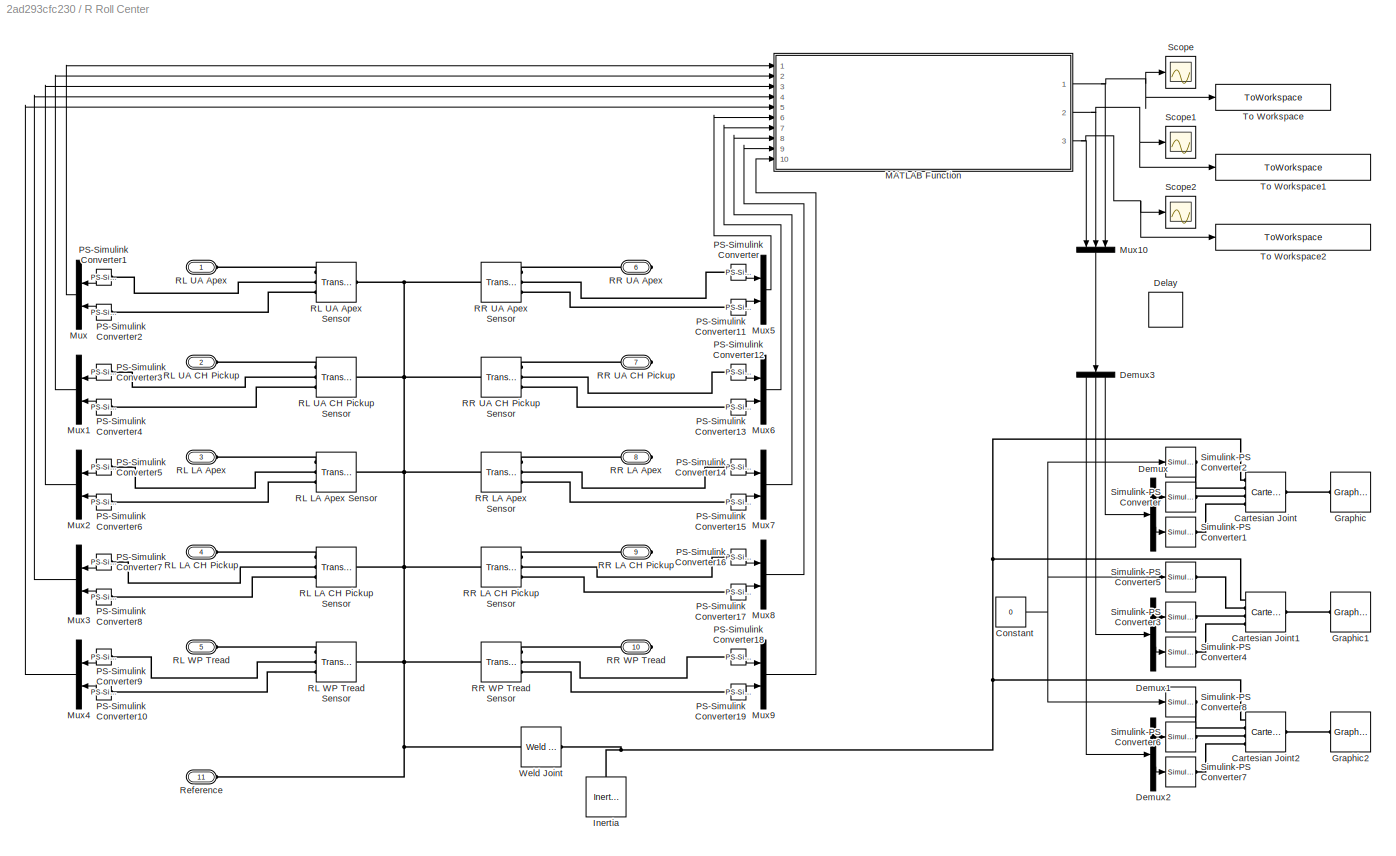
BLOCK [SubSystem] R Roll Center
  Ports = [0, 0, 0, 0, 0, 6, 5]
  RequestExecContextInheritance = off
BLOCK [Reference] R Roll Center/Cartesian Joint  REF=sm_lib/Joints/Cartesian
Joint
  Commented = on
  Ports = [0, 0, 0, 0, 0, 4, 1]
  SourceBlock = sm_lib/Joints/Cartesian\nJoint
  SourceProductBaseCode = MS
  SourceProductName = Simscape Multibody
  SourceType = Cartesian\nJoint
BLOCK [Reference] R Roll Center/Cartesian Joint1  REF=sm_lib/Joints/Cartesian
Joint
  Commented = on
  Ports = [0, 0, 0, 0, 0, 4, 1]
  SourceBlock = sm_lib/Joints/Cartesian\nJoint
  SourceProductBaseCode = MS
  SourceProductName = Simscape Multibody
  SourceType = Cartesian\nJoint
BLOCK [Reference] R Roll Center/Cartesian Joint2  REF=sm_lib/Joints/Cartesian
Joint
  Commented = on
  Ports = [0, 0, 0, 0, 0, 4, 1]
  SourceBlock = sm_lib/Joints/Cartesian\nJoint
  SourceProductBaseCode = MS
  SourceProductName = Simscape Multibody
  SourceType = Cartesian\nJoint
BLOCK [Constant] R Roll Center/Constant
  Commented = on
  Value = 0
BLOCK [Delay] R Roll Center/Delay
  Commented = on
  DelayLength = 1
  InitialCondition = 0
  InputPortMap = u0
  Ports = [1, 1]
BLOCK [Demux] R Roll Center/Demux
  Commented = on
  DisplayOption = bar
  Outputs = 2
  Ports = [1, 2]
BLOCK [Demux] R Roll Center/Demux1
  Commented = on
  DisplayOption = bar
  Outputs = 2
  Ports = [1, 2]
BLOCK [Demux] R Roll Center/Demux2
  Commented = on
  DisplayOption = bar
  Outputs = 2
  Ports = [1, 2]
BLOCK [Demux] R Roll Center/Demux3
  Commented = on
  DisplayOption = bar
  Outputs = 3
  Ports = [1, 3]
BLOCK [Reference] R Roll Center/Graphic  REF=sm_lib/Body Elements/Graphic
  Commented = on
  Ports = [0, 0, 0, 0, 0, 0, 1]
  SourceBlock = sm_lib/Body Elements/Graphic
  SourceProductBaseCode = MS
  SourceProductName = Simscape Multibody
  SourceType = Graphic
BLOCK [Reference] R Roll Center/Graphic1  REF=sm_lib/Body Elements/Graphic
  Commented = on
  Ports = [0, 0, 0, 0, 0, 0, 1]
  SourceBlock = sm_lib/Body Elements/Graphic
  SourceProductBaseCode = MS
  SourceProductName = Simscape Multibody
  SourceType = Graphic
BLOCK [Reference] R Roll Center/Graphic2  REF=sm_lib/Body Elements/Graphic
  Commented = on
  Ports = [0, 0, 0, 0, 0, 0, 1]
  SourceBlock = sm_lib/Body Elements/Graphic
  SourceProductBaseCode = MS
  SourceProductName = Simscape Multibody
  SourceType = Graphic
BLOCK [Reference] R Roll Center/Inertia  REF=sm_lib/Body Elements/Inertia
  Commented = on
  Ports = [0, 0, 0, 0, 0, 0, 1]
  SourceBlock = sm_lib/Body Elements/Inertia
  SourceProductBaseCode = MS
  SourceProductName = Simscape Multibody
  SourceType = Inertia
BLOCK [SubSystem] R Roll Center/MATLAB Function
  ErrorFcn = Stateflow.Translate.translate
  MinAlgLoopOccurrences = on
  PermitHierarchicalResolution = ExplicitOnly
  Ports = [10, 3]
  RequestExecContextInheritance = off
  SFBlockType = MATLAB Function
  TreatAsAtomicUnit = on
BLOCK [Demux] R Roll Center/MATLAB Function/ Demux 
  Outputs = 1
  Ports = [1, 1]
BLOCK [S-Function] R Roll Center/MATLAB Function/ SFunction 
  EnableBusSupport = on
  FunctionName = sf_sfun
  PortCounts = [10 4]
  Ports = [10, 4]
  SFcnIsStateOwnerBlock = off
  SFunctionDeploymentMode = off
  Tag = Stateflow S-Function 2
BLOCK [Terminator] R Roll Center/MATLAB Function/ Terminator 
BLOCK [Outport] R Roll Center/MATLAB Function/L_IC
  IconDisplay = Port number
  Port = 2
  VectorParamsAs1DForOutWhenUnconnected = off
BLOCK [Inport] R Roll Center/MATLAB Function/L_LA_CH_pickup
  IconDisplay = Port number
  Port = 4
BLOCK [Inport] R Roll Center/MATLAB Function/L_LA_apex
  IconDisplay = Port number
  Port = 3
BLOCK [Inport] R Roll Center/MATLAB Function/L_UA_CH_pickup
  IconDisplay = Port number
  Port = 2
BLOCK [Inport] R Roll Center/MATLAB Function/L_UA_apex
  IconDisplay = Port number
BLOCK [Inport] R Roll Center/MATLAB Function/L_WP_tread
  IconDisplay = Port number
  Port = 5
BLOCK [Outport] R Roll Center/MATLAB Function/RC
  IconDisplay = Port number
  VectorParamsAs1DForOutWhenUnconnected = off
BLOCK [Outport] R Roll Center/MATLAB Function/R_IC
  IconDisplay = Port number
  Port = 3
  VectorParamsAs1DForOutWhenUnconnected = off
BLOCK [Inport] R Roll Center/MATLAB Function/R_LA_CH_pickup
  IconDisplay = Port number
  Port = 9
BLOCK [Inport] R Roll Center/MATLAB Function/R_LA_apex
  IconDisplay = Port number
  Port = 8
BLOCK [Inport] R Roll Center/MATLAB Function/R_UA_CH_pickup
  IconDisplay = Port number
  Port = 7
BLOCK [Inport] R Roll Center/MATLAB Function/R_UA_apex
  IconDisplay = Port number
  Port = 6
BLOCK [Inport] R Roll Center/MATLAB Function/R_WP_tread
  IconDisplay = Port number
  Port = 10
BLOCK [Mux] R Roll Center/Mux
  DisplayOption = bar
  Inputs = 2
  Ports = [2, 1]
BLOCK [Mux] R Roll Center/Mux1
  DisplayOption = bar
  Inputs = 2
  Ports = [2, 1]
BLOCK [Mux] R Roll Center/Mux10
  Commented = on
  DisplayOption = bar
  Inputs = 3
  Ports = [3, 1]
BLOCK [Mux] R Roll Center/Mux2
  DisplayOption = bar
  Inputs = 2
  Ports = [2, 1]
BLOCK [Mux] R Roll Center/Mux3
  DisplayOption = bar
  Inputs = 2
  Ports = [2, 1]
BLOCK [Mux] R Roll Center/Mux4
  DisplayOption = bar
  Inputs = 2
  Ports = [2, 1]
BLOCK [Mux] R Roll Center/Mux5
  DisplayOption = bar
  Inputs = 2
  Ports = [2, 1]
BLOCK [Mux] R Roll Center/Mux6
  DisplayOption = bar
  Inputs = 2
  Ports = [2, 1]
BLOCK [Mux] R Roll Center/Mux7
  DisplayOption = bar
  Inputs = 2
  Ports = [2, 1]
BLOCK [Mux] R Roll Center/Mux8
  DisplayOption = bar
  Inputs = 2
  Ports = [2, 1]
BLOCK [Mux] R Roll Center/Mux9
  DisplayOption = bar
  Inputs = 2
  Ports = [2, 1]
BLOCK [Reference] R Roll Center/PS-Simulink Converter  REF=nesl_utility/PS-Simulink
Converter
  Ports = [0, 1, 0, 0, 0, 1]
  SourceBlock = nesl_utility/PS-Simulink\nConverter
  SourceProductBaseCode = SS
  SourceProductName = Simscape
  SourceType = PS-Simulink\nConverter
BLOCK [Reference] R Roll Center/PS-Simulink Converter1  REF=nesl_utility/PS-Simulink
Converter
  Ports = [0, 1, 0, 0, 0, 1]
  SourceBlock = nesl_utility/PS-Simulink\nConverter
  SourceProductBaseCode = SS
  SourceProductName = Simscape
  SourceType = PS-Simulink\nConverter
BLOCK [Reference] R Roll Center/PS-Simulink Converter10  REF=nesl_utility/PS-Simulink
Converter
  Ports = [0, 1, 0, 0, 0, 1]
  SourceBlock = nesl_utility/PS-Simulink\nConverter
  SourceProductBaseCode = SS
  SourceProductName = Simscape
  SourceType = PS-Simulink\nConverter
BLOCK [Reference] R Roll Center/PS-Simulink Converter11  REF=nesl_utility/PS-Simulink
Converter
  Ports = [0, 1, 0, 0, 0, 1]
  SourceBlock = nesl_utility/PS-Simulink\nConverter
  SourceProductBaseCode = SS
  SourceProductName = Simscape
  SourceType = PS-Simulink\nConverter
BLOCK [Reference] R Roll Center/PS-Simulink Converter12  REF=nesl_utility/PS-Simulink
Converter
  Ports = [0, 1, 0, 0, 0, 1]
  SourceBlock = nesl_utility/PS-Simulink\nConverter
  SourceProductBaseCode = SS
  SourceProductName = Simscape
  SourceType = PS-Simulink\nConverter
BLOCK [Reference] R Roll Center/PS-Simulink Converter13  REF=nesl_utility/PS-Simulink
Converter
  Ports = [0, 1, 0, 0, 0, 1]
  SourceBlock = nesl_utility/PS-Simulink\nConverter
  SourceProductBaseCode = SS
  SourceProductName = Simscape
  SourceType = PS-Simulink\nConverter
BLOCK [Reference] R Roll Center/PS-Simulink Converter14  REF=nesl_utility/PS-Simulink
Converter
  Ports = [0, 1, 0, 0, 0, 1]
  SourceBlock = nesl_utility/PS-Simulink\nConverter
  SourceProductBaseCode = SS
  SourceProductName = Simscape
  SourceType = PS-Simulink\nConverter
BLOCK [Reference] R Roll Center/PS-Simulink Converter15  REF=nesl_utility/PS-Simulink
Converter
  Ports = [0, 1, 0, 0, 0, 1]
  SourceBlock = nesl_utility/PS-Simulink\nConverter
  SourceProductBaseCode = SS
  SourceProductName = Simscape
  SourceType = PS-Simulink\nConverter
BLOCK [Reference] R Roll Center/PS-Simulink Converter16  REF=nesl_utility/PS-Simulink
Converter
  Ports = [0, 1, 0, 0, 0, 1]
  SourceBlock = nesl_utility/PS-Simulink\nConverter
  SourceProductBaseCode = SS
  SourceProductName = Simscape
  SourceType = PS-Simulink\nConverter
BLOCK [Reference] R Roll Center/PS-Simulink Converter17  REF=nesl_utility/PS-Simulink
Converter
  Ports = [0, 1, 0, 0, 0, 1]
  SourceBlock = nesl_utility/PS-Simulink\nConverter
  SourceProductBaseCode = SS
  SourceProductName = Simscape
  SourceType = PS-Simulink\nConverter
BLOCK [Reference] R Roll Center/PS-Simulink Converter18  REF=nesl_utility/PS-Simulink
Converter
  Ports = [0, 1, 0, 0, 0, 1]
  SourceBlock = nesl_utility/PS-Simulink\nConverter
  SourceProductBaseCode = SS
  SourceProductName = Simscape
  SourceType = PS-Simulink\nConverter
BLOCK [Reference] R Roll Center/PS-Simulink Converter19  REF=nesl_utility/PS-Simulink
Converter
  Ports = [0, 1, 0, 0, 0, 1]
  SourceBlock = nesl_utility/PS-Simulink\nConverter
  SourceProductBaseCode = SS
  SourceProductName = Simscape
  SourceType = PS-Simulink\nConverter
BLOCK [Reference] R Roll Center/PS-Simulink Converter2  REF=nesl_utility/PS-Simulink
Converter
  Ports = [0, 1, 0, 0, 0, 1]
  SourceBlock = nesl_utility/PS-Simulink\nConverter
  SourceProductBaseCode = SS
  SourceProductName = Simscape
  SourceType = PS-Simulink\nConverter
BLOCK [Reference] R Roll Center/PS-Simulink Converter3  REF=nesl_utility/PS-Simulink
Converter
  Ports = [0, 1, 0, 0, 0, 1]
  SourceBlock = nesl_utility/PS-Simulink\nConverter
  SourceProductBaseCode = SS
  SourceProductName = Simscape
  SourceType = PS-Simulink\nConverter
BLOCK [Reference] R Roll Center/PS-Simulink Converter4  REF=nesl_utility/PS-Simulink
Converter
  Ports = [0, 1, 0, 0, 0, 1]
  SourceBlock = nesl_utility/PS-Simulink\nConverter
  SourceProductBaseCode = SS
  SourceProductName = Simscape
  SourceType = PS-Simulink\nConverter
BLOCK [Reference] R Roll Center/PS-Simulink Converter5  REF=nesl_utility/PS-Simulink
Converter
  Ports = [0, 1, 0, 0, 0, 1]
  SourceBlock = nesl_utility/PS-Simulink\nConverter
  SourceProductBaseCode = SS
  SourceProductName = Simscape
  SourceType = PS-Simulink\nConverter
BLOCK [Reference] R Roll Center/PS-Simulink Converter6  REF=nesl_utility/PS-Simulink
Converter
  Ports = [0, 1, 0, 0, 0, 1]
  SourceBlock = nesl_utility/PS-Simulink\nConverter
  SourceProductBaseCode = SS
  SourceProductName = Simscape
  SourceType = PS-Simulink\nConverter
BLOCK [Reference] R Roll Center/PS-Simulink Converter7  REF=nesl_utility/PS-Simulink
Converter
  Ports = [0, 1, 0, 0, 0, 1]
  SourceBlock = nesl_utility/PS-Simulink\nConverter
  SourceProductBaseCode = SS
  SourceProductName = Simscape
  SourceType = PS-Simulink\nConverter
BLOCK [Reference] R Roll Center/PS-Simulink Converter8  REF=nesl_utility/PS-Simulink
Converter
  Ports = [0, 1, 0, 0, 0, 1]
  SourceBlock = nesl_utility/PS-Simulink\nConverter
  SourceProductBaseCode = SS
  SourceProductName = Simscape
  SourceType = PS-Simulink\nConverter
BLOCK [Reference] R Roll Center/PS-Simulink Converter9  REF=nesl_utility/PS-Simulink
Converter
  Ports = [0, 1, 0, 0, 0, 1]
  SourceBlock = nesl_utility/PS-Simulink\nConverter
  SourceProductBaseCode = SS
  SourceProductName = Simscape
  SourceType = PS-Simulink\nConverter
BLOCK [PMIOPort] R Roll Center/RL LA Apex
  Port = 3
  Side = Left
BLOCK [Reference] R Roll Center/RL LA Apex Sensor  REF=sm_lib/Frames and
Transforms/Transform
Sensor
  Ports = [0, 0, 0, 0, 0, 1, 3]
  SourceBlock = sm_lib/Frames and\nTransforms/Transform\nSensor
  SourceProductBaseCode = MS
  SourceProductName = Simscape Multibody
  SourceType = Transform\nSensor
BLOCK [PMIOPort] R Roll Center/RL LA CH Pickup
  Port = 4
  Side = Left
BLOCK [Reference] R Roll Center/RL LA CH Pickup Sensor  REF=sm_lib/Frames and
Transforms/Transform
Sensor
  Ports = [0, 0, 0, 0, 0, 1, 3]
  SourceBlock = sm_lib/Frames and\nTransforms/Transform\nSensor
  SourceProductBaseCode = MS
  SourceProductName = Simscape Multibody
  SourceType = Transform\nSensor
BLOCK [PMIOPort] R Roll Center/RL UA Apex
  Side = Left
BLOCK [Reference] R Roll Center/RL UA Apex Sensor  REF=sm_lib/Frames and
Transforms/Transform
Sensor
  Ports = [0, 0, 0, 0, 0, 1, 3]
  SourceBlock = sm_lib/Frames and\nTransforms/Transform\nSensor
  SourceProductBaseCode = MS
  SourceProductName = Simscape Multibody
  SourceType = Transform\nSensor
BLOCK [PMIOPort] R Roll Center/RL UA CH Pickup
  Port = 2
  Side = Left
BLOCK [Reference] R Roll Center/RL UA CH Pickup Sensor  REF=sm_lib/Frames and
Transforms/Transform
Sensor
  Ports = [0, 0, 0, 0, 0, 1, 3]
  SourceBlock = sm_lib/Frames and\nTransforms/Transform\nSensor
  SourceProductBaseCode = MS
  SourceProductName = Simscape Multibody
  SourceType = Transform\nSensor
BLOCK [PMIOPort] R Roll Center/RL WP Tread
  Port = 5
  Side = Left
BLOCK [Reference] R Roll Center/RL WP Tread Sensor  REF=sm_lib/Frames and
Transforms/Transform
Sensor
  Ports = [0, 0, 0, 0, 0, 1, 3]
  SourceBlock = sm_lib/Frames and\nTransforms/Transform\nSensor
  SourceProductBaseCode = MS
  SourceProductName = Simscape Multibody
  SourceType = Transform\nSensor
BLOCK [PMIOPort] R Roll Center/RR LA Apex
  Port = 8
  Side = Right
BLOCK [Reference] R Roll Center/RR LA Apex Sensor  REF=sm_lib/Frames and
Transforms/Transform
Sensor
  Ports = [0, 0, 0, 0, 0, 1, 3]
  SourceBlock = sm_lib/Frames and\nTransforms/Transform\nSensor
  SourceProductBaseCode = MS
  SourceProductName = Simscape Multibody
  SourceType = Transform\nSensor
BLOCK [PMIOPort] R Roll Center/RR LA CH Pickup
  Port = 9
  Side = Right
BLOCK [Reference] R Roll Center/RR LA CH Pickup Sensor  REF=sm_lib/Frames and
Transforms/Transform
Sensor
  Ports = [0, 0, 0, 0, 0, 1, 3]
  SourceBlock = sm_lib/Frames and\nTransforms/Transform\nSensor
  SourceProductBaseCode = MS
  SourceProductName = Simscape Multibody
  SourceType = Transform\nSensor
BLOCK [PMIOPort] R Roll Center/RR UA Apex
  Port = 6
  Side = Right
BLOCK [Reference] R Roll Center/RR UA Apex Sensor  REF=sm_lib/Frames and
Transforms/Transform
Sensor
  Ports = [0, 0, 0, 0, 0, 1, 3]
  SourceBlock = sm_lib/Frames and\nTransforms/Transform\nSensor
  SourceProductBaseCode = MS
  SourceProductName = Simscape Multibody
  SourceType = Transform\nSensor
BLOCK [PMIOPort] R Roll Center/RR UA CH Pickup
  Port = 7
  Side = Right
BLOCK [Reference] R Roll Center/RR UA CH Pickup Sensor  REF=sm_lib/Frames and
Transforms/Transform
Sensor
  Ports = [0, 0, 0, 0, 0, 1, 3]
  SourceBlock = sm_lib/Frames and\nTransforms/Transform\nSensor
  SourceProductBaseCode = MS
  SourceProductName = Simscape Multibody
  SourceType = Transform\nSensor
BLOCK [PMIOPort] R Roll Center/RR WP Tread
  Port = 10
  Side = Right
BLOCK [Reference] R Roll Center/RR WP Tread Sensor  REF=sm_lib/Frames and
Transforms/Transform
Sensor
  Ports = [0, 0, 0, 0, 0, 1, 3]
  SourceBlock = sm_lib/Frames and\nTransforms/Transform\nSensor
  SourceProductBaseCode = MS
  SourceProductName = Simscape Multibody
  SourceType = Transform\nSensor
BLOCK [PMIOPort] R Roll Center/Reference
  Port = 11
  Side = Left
BLOCK [Scope] R Roll Center/Scope
  Floating = off
  NumInputPorts = 1
  Ports = [1]
  ScopeSpecificationString = Simulink.scopes.TimeScopeBlockCfg('CurrentConfiguration', extmgr.ConfigurationSet(extmgr.Configuration('Core','General UI',true),extmgr.Configuration('Core','Source UI',true),extmgr.Configuration('Sources','WiredSimulink',true,'DataLoggingVariableName','ScopeData1'),extmgr.Configuration('Visuals','Time Domain',true,'SerializedDisplays',{struct('MinYLimReal','-3.59766','MaxYLimReal','3.60141','YLab...<+1473ch>
BLOCK [Scope] R Roll Center/Scope1
  Floating = off
  NumInputPorts = 1
  Ports = [1]
  ScopeSpecificationString = Simulink.scopes.TimeScopeBlockCfg('CurrentConfiguration', extmgr.ConfigurationSet(extmgr.Configuration('Core','General UI',true),extmgr.Configuration('Core','Source UI',true),extmgr.Configuration('Sources','WiredSimulink',true,'DataLoggingVariableName','ScopeData2'),extmgr.Configuration('Visuals','Time Domain',true,'SerializedDisplays',{struct('MinYLimReal','-12.43653','MaxYLimReal','2.51162','YLa...<+1410ch>
BLOCK [Scope] R Roll Center/Scope2
  Floating = off
  NumInputPorts = 1
  Ports = [1]
  ScopeSpecificationString = Simulink.scopes.TimeScopeBlockCfg('CurrentConfiguration', extmgr.ConfigurationSet(extmgr.Configuration('Core','General UI',true),extmgr.Configuration('Core','Source UI',true),extmgr.Configuration('Sources','WiredSimulink',true,'DataLoggingVariableName','ScopeData3'),extmgr.Configuration('Visuals','Time Domain',true,'SerializedDisplays',{struct('MinYLimReal','-1.73342','MaxYLimReal','12.34836','YLa...<+1410ch>
BLOCK [Reference] R Roll Center/Simulink-PS Converter  REF=nesl_utility/Simulink-PS
Converter
  Commented = on
  Ports = [1, 0, 0, 0, 0, 0, 1]
  SourceBlock = nesl_utility/Simulink-PS\nConverter
  SourceProductBaseCode = SS
  SourceProductName = Simscape
  SourceType = Simulink-PS\nConverter
BLOCK [Reference] R Roll Center/Simulink-PS Converter1  REF=nesl_utility/Simulink-PS
Converter
  Commented = on
  Ports = [1, 0, 0, 0, 0, 0, 1]
  SourceBlock = nesl_utility/Simulink-PS\nConverter
  SourceProductBaseCode = SS
  SourceProductName = Simscape
  SourceType = Simulink-PS\nConverter
BLOCK [Reference] R Roll Center/Simulink-PS Converter2  REF=nesl_utility/Simulink-PS
Converter
  Commented = on
  Ports = [1, 0, 0, 0, 0, 0, 1]
  SourceBlock = nesl_utility/Simulink-PS\nConverter
  SourceProductBaseCode = SS
  SourceProductName = Simscape
  SourceType = Simulink-PS\nConverter
BLOCK [Reference] R Roll Center/Simulink-PS Converter3  REF=nesl_utility/Simulink-PS
Converter
  Commented = on
  Ports = [1, 0, 0, 0, 0, 0, 1]
  SourceBlock = nesl_utility/Simulink-PS\nConverter
  SourceProductBaseCode = SS
  SourceProductName = Simscape
  SourceType = Simulink-PS\nConverter
BLOCK [Reference] R Roll Center/Simulink-PS Converter4  REF=nesl_utility/Simulink-PS
Converter
  Commented = on
  Ports = [1, 0, 0, 0, 0, 0, 1]
  SourceBlock = nesl_utility/Simulink-PS\nConverter
  SourceProductBaseCode = SS
  SourceProductName = Simscape
  SourceType = Simulink-PS\nConverter
BLOCK [Reference] R Roll Center/Simulink-PS Converter5  REF=nesl_utility/Simulink-PS
Converter
  Commented = on
  Ports = [1, 0, 0, 0, 0, 0, 1]
  SourceBlock = nesl_utility/Simulink-PS\nConverter
  SourceProductBaseCode = SS
  SourceProductName = Simscape
  SourceType = Simulink-PS\nConverter
BLOCK [Reference] R Roll Center/Simulink-PS Converter6  REF=nesl_utility/Simulink-PS
Converter
  Commented = on
  Ports = [1, 0, 0, 0, 0, 0, 1]
  SourceBlock = nesl_utility/Simulink-PS\nConverter
  SourceProductBaseCode = SS
  SourceProductName = Simscape
  SourceType = Simulink-PS\nConverter
BLOCK [Reference] R Roll Center/Simulink-PS Converter7  REF=nesl_utility/Simulink-PS
Converter
  Commented = on
  Ports = [1, 0, 0, 0, 0, 0, 1]
  SourceBlock = nesl_utility/Simulink-PS\nConverter
  SourceProductBaseCode = SS
  SourceProductName = Simscape
  SourceType = Simulink-PS\nConverter
BLOCK [Reference] R Roll Center/Simulink-PS Converter8  REF=nesl_utility/Simulink-PS
Converter
  Commented = on
  Ports = [1, 0, 0, 0, 0, 0, 1]
  SourceBlock = nesl_utility/Simulink-PS\nConverter
  SourceProductBaseCode = SS
  SourceProductName = Simscape
  SourceType = Simulink-PS\nConverter
BLOCK [ToWorkspace] R Roll Center/To Workspace
  FixptAsFi = on
  MaxDataPoints = inf
  Ports = [1]
  SampleTime = -1
  SaveFormat = Timeseries
  VariableName = R_SY_roll_center
BLOCK [ToWorkspace] R Roll Center/To Workspace1
  FixptAsFi = on
  MaxDataPoints = inf
  Ports = [1]
  SampleTime = -1
  SaveFormat = Timeseries
  VariableName = RL_SY_instant_center
BLOCK [ToWorkspace] R Roll Center/To Workspace2
  FixptAsFi = on
  MaxDataPoints = inf
  Ports = [1]
  SampleTime = -1
  SaveFormat = Timeseries
  VariableName = RR_SY_instant_center
BLOCK [Reference] R Roll Center/Weld Joint  REF=sm_lib/Joints/Weld Joint
  Commented = on
  Ports = [0, 0, 0, 0, 0, 1, 1]
  SourceBlock = sm_lib/Joints/Weld Joint
  SourceProductBaseCode = MS
  SourceProductName = Simscape Multibody
  SourceType = Weld Joint
BLOCK [SubSystem] R Track Sensor
  Ports = [0, 0, 0, 0, 0, 1, 1]
  RequestExecContextInheritance = off
BLOCK [PMIOPort] R Track Sensor/Left Wheel
  Side = Left
BLOCK [Reference] R Track Sensor/PS-Simulink Converter  REF=nesl_utility/PS-Simulink
Converter
  Ports = [0, 1, 0, 0, 0, 1]
  SourceBlock = nesl_utility/PS-Simulink\nConverter
  SourceProductBaseCode = SS
  SourceProductName = Simscape
  SourceType = PS-Simulink\nConverter
BLOCK [PMIOPort] R Track Sensor/Right Wheel
  Port = 2
  Side = Right
BLOCK [Scope] R Track Sensor/Scope
  Floating = off
  NumInputPorts = 1
  Ports = [1]
  ScopeSpecificationString = Simulink.scopes.TimeScopeBlockCfg('CurrentConfiguration', extmgr.ConfigurationSet(extmgr.Configuration('Core','General UI',true),extmgr.Configuration('Core','Source UI',true),extmgr.Configuration('Sources','WiredSimulink',true,'DataLoggingVariableName','ScopeData1'),extmgr.Configuration('Visuals','Time Domain',true,'SerializedDisplays',{struct('MinYLimReal','47.97951','MaxYLimReal','48.00277','YLa...<+1386ch>
BLOCK [ToWorkspace] R Track Sensor/To Workspace
  FixptAsFi = on
  MaxDataPoints = inf
  Ports = [1]
  SampleTime = -1
  SaveFormat = Timeseries
  VariableName = R_SY_track
BLOCK [Reference] R Track Sensor/Transform Sensor  REF=sm_lib/Frames and
Transforms/Transform
Sensor
  Ports = [0, 0, 0, 0, 0, 1, 2]
  SourceBlock = sm_lib/Frames and\nTransforms/Transform\nSensor
  SourceProductBaseCode = MS
  SourceProductName = Simscape Multibody
  SourceType = Transform\nSensor
BLOCK [SubSystem] RL Lower A-Arm
  Ports = [0, 0, 0, 0, 0, 1, 2]
  RequestExecContextInheritance = off
BLOCK [SubSystem] RL Lower A-Arm/Angle Sensor
  Ports = [0, 0, 0, 0, 0, 1, 1]
  RequestExecContextInheritance = off
BLOCK [PMIOPort] RL Lower A-Arm/Angle Sensor/Apex
  Side = Left
BLOCK [PMIOPort] RL Lower A-Arm/Angle Sensor/Base
  Port = 2
  Side = Right
BLOCK [Gain] RL Lower A-Arm/Angle Sensor/Gain
  Gain = 180 / pi
  OutDataTypeStr = Inherit: Inherit via internal rule
  ParamDataTypeStr = Inherit: Inherit via internal rule
  SaturateOnIntegerOverflow = off
BLOCK [Reference] RL Lower A-Arm/Angle Sensor/PS-Simulink Converter  REF=nesl_utility/PS-Simulink
Converter
  Ports = [0, 1, 0, 0, 0, 1]
  SourceBlock = nesl_utility/PS-Simulink\nConverter
  SourceProductBaseCode = SS
  SourceProductName = Simscape
  SourceType = PS-Simulink\nConverter
BLOCK [Reference] RL Lower A-Arm/Angle Sensor/PS-Simulink Converter1  REF=nesl_utility/PS-Simulink
Converter
  Ports = [0, 1, 0, 0, 0, 1]
  SourceBlock = nesl_utility/PS-Simulink\nConverter
  SourceProductBaseCode = SS
  SourceProductName = Simscape
  SourceType = PS-Simulink\nConverter
BLOCK [Scope] RL Lower A-Arm/Angle Sensor/Scope
  Floating = off
  NumInputPorts = 1
  Ports = [1]
  ScopeSpecificationString = Simulink.scopes.TimeScopeBlockCfg('CurrentConfiguration', extmgr.ConfigurationSet(extmgr.Configuration('Core','General UI',true),extmgr.Configuration('Core','Source UI',true),extmgr.Configuration('Sources','WiredSimulink',true,'DataLoggingVariableName','ScopeData1'),extmgr.Configuration('Visuals','Time Domain',true,'SerializedDisplays',{struct('MinYLimReal','5.93103','MaxYLimReal','10.303','YLabel...<+1357ch>
BLOCK [Reference] RL Lower A-Arm/Angle Sensor/Transform Sensor  REF=sm_lib/Frames and
Transforms/Transform
Sensor
  Ports = [0, 0, 0, 0, 0, 1, 3]
  SourceBlock = sm_lib/Frames and\nTransforms/Transform\nSensor
  SourceProductBaseCode = MS
  SourceProductName = Simscape Multibody
  SourceType = Transform\nSensor
BLOCK [Trigonometry] RL Lower A-Arm/Angle Sensor/Trigonometric Function
  Operator = atan2
  Ports = [2, 1]
BLOCK [PMIOPort] RL Lower A-Arm/Apex
  Port = 3
  Side = Left
BLOCK [SubSystem] RL Lower A-Arm/Apex Block
  Commented = on
  Ports = [0, 0, 0, 0, 0, 1, 2]
  RequestExecContextInheritance = off
BLOCK [PMIOPort] RL Lower A-Arm/Apex Block/Apex
  Side = Left
BLOCK [PMIOPort] RL Lower A-Arm/Apex Block/F Member Mount
  Port = 2
  Side = Right
BLOCK [Reference] RL Lower A-Arm/Apex Block/F Member Mount Transform  REF=sm_lib/Frames and
Transforms/Rigid
Transform
  Ports = [0, 0, 0, 0, 0, 1, 1]
  SourceBlock = sm_lib/Frames and\nTransforms/Rigid\nTransform
  SourceProductBaseCode = MS
  SourceProductName = Simscape Multibody
  SourceType = Rigid\nTransform
BLOCK [PMIOPort] RL Lower A-Arm/Apex Block/R Member Mount
  Port = 3
  Side = Right
BLOCK [Reference] RL Lower A-Arm/Apex Block/R Member Mount Transform  REF=sm_lib/Frames and
Transforms/Rigid
Transform
  Ports = [0, 0, 0, 0, 0, 1, 1]
  SourceBlock = sm_lib/Frames and\nTransforms/Rigid\nTransform
  SourceProductBaseCode = MS
  SourceProductName = Simscape Multibody
  SourceType = Rigid\nTransform
BLOCK [Reference] RL Lower A-Arm/Apex Block/Revolute Joint  REF=sm_lib/Joints/Revolute Joint
  Ports = [0, 0, 0, 0, 0, 1, 1]
  SourceBlock = sm_lib/Joints/Revolute Joint
  SourceProductBaseCode = MS
  SourceProductName = Simscape Multibody
  SourceType = Revolute Joint
BLOCK [Reference] RL Lower A-Arm/Apex Block/Rigid Transform3  REF=sm_lib/Frames and
Transforms/Rigid
Transform
  Ports = [0, 0, 0, 0, 0, 1, 1]
  SourceBlock = sm_lib/Frames and\nTransforms/Rigid\nTransform
  SourceProductBaseCode = MS
  SourceProductName = Simscape Multibody
  SourceType = Rigid\nTransform
BLOCK [Reference] RL Lower A-Arm/Apex Block/Solid  REF=sm_lib/Body Elements/Extruded Solid
  Ports = [0, 0, 0, 0, 0, 0, 1]
  SourceBlock = sm_lib/Body Elements/Extruded Solid
  SourceProductBaseCode = MS
  SourceProductName = Simscape Multibody
  SourceType = Extruded Solid
BLOCK [PMIOPort] RL Lower A-Arm/CH F Pickup
  Side = Right
BLOCK [PMIOPort] RL Lower A-Arm/CH R Pickup
  Port = 2
  Side = Right
BLOCK [SubSystem] RL Lower A-Arm/F CH Pickup with force sensing
  Ports = [0, 0, 0, 0, 0, 1, 1]
  RequestExecContextInheritance = off
BLOCK [PMIOPort] RL Lower A-Arm/F CH Pickup with force sensing/CH Side
  Side = Right
BLOCK [PMIOPort] RL Lower A-Arm/F CH Pickup with force sensing/Member Side
  Port = 2
  Side = Left
BLOCK [Reference] RL Lower A-Arm/F CH Pickup with force sensing/PS-Simulink Converter5  REF=nesl_utility/PS-Simulink
Converter
  Ports = [0, 1, 0, 0, 0, 1]
  SourceBlock = nesl_utility/PS-Simulink\nConverter
  SourceProductBaseCode = SS
  SourceProductName = Simscape
  SourceType = PS-Simulink\nConverter
BLOCK [Reference] RL Lower A-Arm/F CH Pickup with force sensing/Spherical Joint5  REF=sm_lib/Joints/Spherical
Joint
  Ports = [0, 0, 0, 0, 0, 1, 2]
  SourceBlock = sm_lib/Joints/Spherical\nJoint
  SourceProductBaseCode = MS
  SourceProductName = Simscape Multibody
  SourceType = Spherical\nJoint
BLOCK [ToWorkspace] RL Lower A-Arm/F CH Pickup with force sensing/To Workspace4
  FixptAsFi = on
  MaxDataPoints = inf
  Ports = [1]
  SampleTime = -1
  SaveFormat = Timeseries
  VariableName = RL_CH_LA_F_pickup_force
BLOCK [SubSystem] RL Lower A-Arm/Front Member
  Ports = [0, 0, 0, 0, 0, 1, 1]
  RequestExecContextInheritance = off
BLOCK [PMIOPort] RL Lower A-Arm/Front Member/Apex End
  Port = 2
  Side = Left
BLOCK [PMIOPort] RL Lower A-Arm/Front Member/Chassis End
  Side = Right
BLOCK [Reference] RL Lower A-Arm/Front Member/End Transform  REF=sm_lib/Frames and
Transforms/Rigid
Transform
  Ports = [0, 0, 0, 0, 0, 1, 1]
  SourceBlock = sm_lib/Frames and\nTransforms/Rigid\nTransform
  SourceProductBaseCode = MS
  SourceProductName = Simscape Multibody
  SourceType = Rigid\nTransform
BLOCK [Reference] RL Lower A-Arm/Front Member/Front Member Reference  REF=sm_lib/Frames and
Transforms/Reference
Frame
  Ports = [0, 0, 0, 0, 0, 0, 1]
  SourceBlock = sm_lib/Frames and\nTransforms/Reference\nFrame
  SourceProductBaseCode = MS
  SourceProductName = Simscape Multibody
  SourceType = Reference\nFrame
BLOCK [Reference] RL Lower A-Arm/Front Member/Member  REF=sm_lib/Body Elements/Cylindrical Solid
  Ports = [0, 0, 0, 0, 0, 0, 1]
  SourceBlock = sm_lib/Body Elements/Cylindrical Solid
  SourceProductBaseCode = MS
  SourceProductName = Simscape Multibody
  SourceType = Cylindrical Solid
BLOCK [Reference] RL Lower A-Arm/Front Member/Member Transform  REF=sm_lib/Frames and
Transforms/Rigid
Transform
  Ports = [0, 0, 0, 0, 0, 1, 1]
  SourceBlock = sm_lib/Frames and\nTransforms/Rigid\nTransform
  SourceProductBaseCode = MS
  SourceProductName = Simscape Multibody
  SourceType = Rigid\nTransform
BLOCK [SubSystem] RL Lower A-Arm/R CH Pickup with force sensing
  Ports = [0, 0, 0, 0, 0, 1, 1]
  RequestExecContextInheritance = off
BLOCK [PMIOPort] RL Lower A-Arm/R CH Pickup with force sensing/CH Side
  Side = Right
BLOCK [PMIOPort] RL Lower A-Arm/R CH Pickup with force sensing/Member Side
  Port = 2
  Side = Left
BLOCK [Reference] RL Lower A-Arm/R CH Pickup with force sensing/PS-Simulink Converter5  REF=nesl_utility/PS-Simulink
Converter
  Ports = [0, 1, 0, 0, 0, 1]
  SourceBlock = nesl_utility/PS-Simulink\nConverter
  SourceProductBaseCode = SS
  SourceProductName = Simscape
  SourceType = PS-Simulink\nConverter
BLOCK [Reference] RL Lower A-Arm/R CH Pickup with force sensing/Spherical Joint5  REF=sm_lib/Joints/Spherical
Joint
  Ports = [0, 0, 0, 0, 0, 1, 2]
  SourceBlock = sm_lib/Joints/Spherical\nJoint
  SourceProductBaseCode = MS
  SourceProductName = Simscape Multibody
  SourceType = Spherical\nJoint
BLOCK [ToWorkspace] RL Lower A-Arm/R CH Pickup with force sensing/To Workspace4
  FixptAsFi = on
  MaxDataPoints = inf
  Ports = [1]
  SampleTime = -1
  SaveFormat = Timeseries
  VariableName = RL_CH_LA_R_pickup_force
BLOCK [SubSystem] RL Lower A-Arm/Rear Member
  Ports = [0, 0, 0, 0, 0, 1, 1]
  RequestExecContextInheritance = off
BLOCK [PMIOPort] RL Lower A-Arm/Rear Member/Apex End
  Port = 2
  Side = Left
BLOCK [PMIOPort] RL Lower A-Arm/Rear Member/Chassis End
  Side = Right
BLOCK [Reference] RL Lower A-Arm/Rear Member/End Transform  REF=sm_lib/Frames and
Transforms/Rigid
Transform
  Ports = [0, 0, 0, 0, 0, 1, 1]
  SourceBlock = sm_lib/Frames and\nTransforms/Rigid\nTransform
  SourceProductBaseCode = MS
  SourceProductName = Simscape Multibody
  SourceType = Rigid\nTransform
BLOCK [Reference] RL Lower A-Arm/Rear Member/Member  REF=sm_lib/Body Elements/Cylindrical Solid
  Ports = [0, 0, 0, 0, 0, 0, 1]
  SourceBlock = sm_lib/Body Elements/Cylindrical Solid
  SourceProductBaseCode = MS
  SourceProductName = Simscape Multibody
  SourceType = Cylindrical Solid
BLOCK [Reference] RL Lower A-Arm/Rear Member/Member Transform  REF=sm_lib/Frames and
Transforms/Rigid
Transform
  Ports = [0, 0, 0, 0, 0, 1, 1]
  SourceBlock = sm_lib/Frames and\nTransforms/Rigid\nTransform
  SourceProductBaseCode = MS
  SourceProductName = Simscape Multibody
  SourceType = Rigid\nTransform
BLOCK [Reference] RL Lower A-Arm/Rear Member/Rear Member Reference  REF=sm_lib/Frames and
Transforms/Reference
Frame
  Ports = [0, 0, 0, 0, 0, 0, 1]
  SourceBlock = sm_lib/Frames and\nTransforms/Reference\nFrame
  SourceProductBaseCode = MS
  SourceProductName = Simscape Multibody
  SourceType = Reference\nFrame
BLOCK [Reference] RL Lower A-Arm/Spherical Joint1  REF=sm_lib/Joints/Spherical
Joint
  Ports = [0, 0, 0, 0, 0, 1, 1]
  SourceBlock = sm_lib/Joints/Spherical\nJoint
  SourceProductBaseCode = MS
  SourceProductName = Simscape Multibody
  SourceType = Spherical\nJoint
BLOCK [Reference] RL Lower A-Arm/Spherical Joint5  REF=sm_lib/Joints/Spherical
Joint
  Ports = [0, 0, 0, 0, 0, 1, 1]
  SourceBlock = sm_lib/Joints/Spherical\nJoint
  SourceProductBaseCode = MS
  SourceProductName = Simscape Multibody
  SourceType = Spherical\nJoint
BLOCK [SubSystem] RL Shock//Pushrod System
  Ports = [0, 0, 0, 0, 0, 1, 2]
  RequestExecContextInheritance = off
BLOCK [Constant] RL Shock//Pushrod System/Constant
  Value = SP.RL.RA.rotation_matrix'
BLOCK [Constant] RL Shock//Pushrod System/Constant1
  Value = SP.RL.RA.rotation_matrix'
BLOCK [PMIOPort] RL Shock//Pushrod System/PR LA end
  Side = Left
BLOCK [Reference] RL Shock//Pushrod System/PS-Simulink Converter  REF=nesl_utility/PS-Simulink
Converter
  Ports = [0, 1, 0, 0, 0, 1]
  SourceBlock = nesl_utility/PS-Simulink\nConverter
  SourceProductBaseCode = SS
  SourceProductName = Simscape
  SourceType = PS-Simulink\nConverter
BLOCK [Reference] RL Shock//Pushrod System/PS-Simulink Converter1  REF=nesl_utility/PS-Simulink
Converter
  Ports = [0, 1, 0, 0, 0, 1]
  SourceBlock = nesl_utility/PS-Simulink\nConverter
  SourceProductBaseCode = SS
  SourceProductName = Simscape
  SourceType = PS-Simulink\nConverter
BLOCK [Reference] RL Shock//Pushrod System/PS-Simulink Converter2  REF=nesl_utility/PS-Simulink
Converter
  Ports = [0, 1, 0, 0, 0, 1]
  SourceBlock = nesl_utility/PS-Simulink\nConverter
  SourceProductBaseCode = SS
  SourceProductName = Simscape
  SourceType = PS-Simulink\nConverter
BLOCK [Product] RL Shock//Pushrod System/Product
  InputSameDT = off
  Multiplication = Matrix(*)
  OutDataTypeStr = Inherit: Inherit via internal rule
  Ports = [2, 1]
  RndMeth = Floor
  SaturateOnIntegerOverflow = off
BLOCK [Product] RL Shock//Pushrod System/Product1
  InputSameDT = off
  Multiplication = Matrix(*)
  OutDataTypeStr = Inherit: Inherit via internal rule
  Ports = [2, 1]
  RndMeth = Floor
  SaturateOnIntegerOverflow = off
BLOCK [PMIOPort] RL Shock//Pushrod System/RA CH Pickup
  Port = 3
  Side = Right
BLOCK [SubSystem] RL Shock//Pushrod System/RL Pushrod
  Ports = [0, 0, 0, 0, 0, 1, 1]
  RequestExecContextInheritance = off
BLOCK [Reference] RL Shock//Pushrod System/RL Pushrod/End Transform  REF=sm_lib/Frames and
Transforms/Rigid
Transform
  Ports = [0, 0, 0, 0, 0, 1, 1]
  SourceBlock = sm_lib/Frames and\nTransforms/Rigid\nTransform
  SourceProductBaseCode = MS
  SourceProductName = Simscape Multibody
  SourceType = Rigid\nTransform
BLOCK [PMIOPort] RL Shock//Pushrod System/RL Pushrod/LA End
  Port = 2
  Side = Left
BLOCK [Reference] RL Shock//Pushrod System/RL Pushrod/Member  REF=sm_lib/Body Elements/Cylindrical Solid
  Ports = [0, 0, 0, 0, 0, 0, 1]
  SourceBlock = sm_lib/Body Elements/Cylindrical Solid
  SourceProductBaseCode = MS
  SourceProductName = Simscape Multibody
  SourceType = Cylindrical Solid
BLOCK [Reference] RL Shock//Pushrod System/RL Pushrod/Member Transform  REF=sm_lib/Frames and
Transforms/Rigid
Transform
  Ports = [0, 0, 0, 0, 0, 1, 1]
  SourceBlock = sm_lib/Frames and\nTransforms/Rigid\nTransform
  SourceProductBaseCode = MS
  SourceProductName = Simscape Multibody
  SourceType = Rigid\nTransform
BLOCK [Reference] RL Shock//Pushrod System/RL Pushrod/Pushrod Reference  REF=sm_lib/Frames and
Transforms/Reference
Frame
  Ports = [0, 0, 0, 0, 0, 0, 1]
  SourceBlock = sm_lib/Frames and\nTransforms/Reference\nFrame
  SourceProductBaseCode = MS
  SourceProductName = Simscape Multibody
  SourceType = Reference\nFrame
BLOCK [PMIOPort] RL Shock//Pushrod System/RL Pushrod/RA
  Side = Right
BLOCK [SubSystem] RL Shock//Pushrod System/RL Rocker Arm
  Ports = [0, 0, 0, 0, 0, 1, 2]
  RequestExecContextInheritance = off
BLOCK [PMIOPort] RL Shock//Pushrod System/RL Rocker Arm/CH Pickup
  Port = 2
  Side = Right
BLOCK [PMIOPort] RL Shock//Pushrod System/RL Rocker Arm/PR Pickup
  Port = 3
  Side = Left
BLOCK [Reference] RL Shock//Pushrod System/RL Rocker Arm/PR Pickup Transform  REF=sm_lib/Frames and
Transforms/Rigid
Transform
  Ports = [0, 0, 0, 0, 0, 1, 1]
  SourceBlock = sm_lib/Frames and\nTransforms/Rigid\nTransform
  SourceProductBaseCode = MS
  SourceProductName = Simscape Multibody
  SourceType = Rigid\nTransform
BLOCK [Reference] RL Shock//Pushrod System/RL Rocker Arm/RA Reference  REF=sm_lib/Frames and
Transforms/Reference
Frame
  Ports = [0, 0, 0, 0, 0, 0, 1]
  SourceBlock = sm_lib/Frames and\nTransforms/Reference\nFrame
  SourceProductBaseCode = MS
  SourceProductName = Simscape Multibody
  SourceType = Reference\nFrame
BLOCK [PMIOPort] RL Shock//Pushrod System/RL Rocker Arm/SH Pickup
  Side = Right
BLOCK [Reference] RL Shock//Pushrod System/RL Rocker Arm/SH Pickup Transform  REF=sm_lib/Frames and
Transforms/Rigid
Transform
  Ports = [0, 0, 0, 0, 0, 1, 1]
  SourceBlock = sm_lib/Frames and\nTransforms/Rigid\nTransform
  SourceProductBaseCode = MS
  SourceProductName = Simscape Multibody
  SourceType = Rigid\nTransform
BLOCK [Reference] RL Shock//Pushrod System/RL Rocker Arm/Solid  REF=sm_lib/Body Elements/Extruded Solid
  Ports = [0, 0, 0, 0, 0, 0, 1]
  SourceBlock = sm_lib/Body Elements/Extruded Solid
  SourceProductBaseCode = MS
  SourceProductName = Simscape Multibody
  SourceType = Extruded Solid
BLOCK [SubSystem] RL Shock//Pushrod System/RL Shock
  Ports = [0, 0, 0, 0, 0, 1, 1]
  RequestExecContextInheritance = off
BLOCK [PMIOPort] RL Shock//Pushrod System/RL Shock/CH End
  Side = Right
BLOCK [Reference] RL Shock//Pushrod System/RL Shock/Cylindrical Joint  REF=sm_lib/Joints/Cylindrical
Joint
  Ports = [0, 0, 0, 0, 0, 1, 2]
  SourceBlock = sm_lib/Joints/Cylindrical\nJoint
  SourceProductBaseCode = MS
  SourceProductName = Simscape Multibody
  SourceType = Cylindrical\nJoint
BLOCK [Reference] RL Shock//Pushrod System/RL Shock/PS-Simulink Converter  REF=nesl_utility/PS-Simulink
Converter
  Ports = [0, 1, 0, 0, 0, 1]
  SourceBlock = nesl_utility/PS-Simulink\nConverter
  SourceProductBaseCode = SS
  SourceProductName = Simscape
  SourceType = PS-Simulink\nConverter
BLOCK [Reference] RL Shock//Pushrod System/RL Shock/PS-Simulink Converter1  REF=nesl_utility/PS-Simulink
Converter
  Ports = [0, 1, 0, 0, 0, 1]
  SourceBlock = nesl_utility/PS-Simulink\nConverter
  SourceProductBaseCode = SS
  SourceProductName = Simscape
  SourceType = PS-Simulink\nConverter
BLOCK [Reference] RL Shock//Pushrod System/RL Shock/Piston  REF=sm_lib/Body Elements/Cylindrical Solid
  Ports = [0, 0, 0, 0, 0, 0, 1]
  SourceBlock = sm_lib/Body Elements/Cylindrical Solid
  SourceProductBaseCode = MS
  SourceProductName = Simscape Multibody
  SourceType = Cylindrical Solid
BLOCK [Reference] RL Shock//Pushrod System/RL Shock/Preload Transform  REF=sm_lib/Frames and
Transforms/Rigid
Transform
  Ports = [0, 0, 0, 0, 0, 1, 1]
  SourceBlock = sm_lib/Frames and\nTransforms/Rigid\nTransform
  SourceProductBaseCode = MS
  SourceProductName = Simscape Multibody
  SourceType = Rigid\nTransform
BLOCK [PMIOPort] RL Shock//Pushrod System/RL Shock/RA End
  Port = 2
  Side = Left
BLOCK [Scope] RL Shock//Pushrod System/RL Shock/RL SH Length
  Floating = off
  NumInputPorts = 1
  Ports = [1]
  ScopeSpecificationString = Simulink.scopes.TimeScopeBlockCfg('CurrentConfiguration', extmgr.ConfigurationSet(extmgr.Configuration('Core','General UI',true),extmgr.Configuration('Core','Source UI',true),extmgr.Configuration('Sources','WiredSimulink',true,'DataLoggingVariableName','ScopeData1'),extmgr.Configuration('Visuals','Time Domain',true,'SerializedDisplays',{struct('MinYLimReal','8.00058','MaxYLimReal','9.08672','YLabe...<+1405ch>
BLOCK [Scope] RL Shock//Pushrod System/RL Shock/RL SH Spring Length
  Floating = off
  NumInputPorts = 1
  Ports = [1]
  ScopeSpecificationString = Simulink.scopes.TimeScopeBlockCfg('CurrentConfiguration', extmgr.ConfigurationSet(extmgr.Configuration('Core','General UI',true),extmgr.Configuration('Core','Source UI',true),extmgr.Configuration('Sources','WiredSimulink',true,'DataLoggingVariableName','ScopeData1'),extmgr.Configuration('Visuals','Time Domain',true,'SerializedDisplays',{struct('MinYLimReal','5.07677','MaxYLimReal','6.16291','YLabe...<+1408ch>
BLOCK [Reference] RL Shock//Pushrod System/RL Shock/Rigid Transform  REF=sm_lib/Frames and
Transforms/Rigid
Transform
  Ports = [0, 0, 0, 0, 0, 1, 1]
  SourceBlock = sm_lib/Frames and\nTransforms/Rigid\nTransform
  SourceProductBaseCode = MS
  SourceProductName = Simscape Multibody
  SourceType = Rigid\nTransform
BLOCK [Reference] RL Shock//Pushrod System/RL Shock/Rigid Transform1  REF=sm_lib/Frames and
Transforms/Rigid
Transform
  Ports = [0, 0, 0, 0, 0, 1, 1]
  SourceBlock = sm_lib/Frames and\nTransforms/Rigid\nTransform
  SourceProductBaseCode = MS
  SourceProductName = Simscape Multibody
  SourceType = Rigid\nTransform
BLOCK [Reference] RL Shock//Pushrod System/RL Shock/Rigid Transform2  REF=sm_lib/Frames and
Transforms/Rigid
Transform
  Ports = [0, 0, 0, 0, 0, 1, 1]
  SourceBlock = sm_lib/Frames and\nTransforms/Rigid\nTransform
  SourceProductBaseCode = MS
  SourceProductName = Simscape Multibody
  SourceType = Rigid\nTransform
BLOCK [Reference] RL Shock//Pushrod System/RL Shock/Rigid Transform3  REF=sm_lib/Frames and
Transforms/Rigid
Transform
  Ports = [0, 0, 0, 0, 0, 1, 1]
  SourceBlock = sm_lib/Frames and\nTransforms/Rigid\nTransform
  SourceProductBaseCode = MS
  SourceProductName = Simscape Multibody
  SourceType = Rigid\nTransform
BLOCK [Reference] RL Shock//Pushrod System/RL Shock/Shock Body  REF=sm_lib/Body Elements/Cylindrical Solid
  Ports = [0, 0, 0, 0, 0, 0, 1]
  SourceBlock = sm_lib/Body Elements/Cylindrical Solid
  SourceProductBaseCode = MS
  SourceProductName = Simscape Multibody
  SourceType = Cylindrical Solid
BLOCK [Reference] RL Shock//Pushrod System/RL Shock/Shock Reference  REF=sm_lib/Frames and
Transforms/Reference
Frame
  Ports = [0, 0, 0, 0, 0, 0, 1]
  SourceBlock = sm_lib/Frames and\nTransforms/Reference\nFrame
  SourceProductBaseCode = MS
  SourceProductName = Simscape Multibody
  SourceType = Reference\nFrame
BLOCK [ToWorkspace] RL Shock//Pushrod System/RL Shock/To Workspace
  FixptAsFi = on
  MaxDataPoints = inf
  Ports = [1]
  SampleTime = -1
  SaveFormat = Timeseries
  VariableName = RL_SH_length
BLOCK [ToWorkspace] RL Shock//Pushrod System/RL Shock/To Workspace1
  FixptAsFi = on
  MaxDataPoints = inf
  Ports = [1]
  SampleTime = -1
  SaveFormat = Timeseries
  VariableName = RL_SH_spring_length
BLOCK [Reference] RL Shock//Pushrod System/RL Shock/Transform Sensor  REF=sm_lib/Frames and
Transforms/Transform
Sensor
  Ports = [0, 0, 0, 0, 0, 1, 2]
  SourceBlock = sm_lib/Frames and\nTransforms/Transform\nSensor
  SourceProductBaseCode = MS
  SourceProductName = Simscape Multibody
  SourceType = Transform\nSensor
BLOCK [Reference] RL Shock//Pushrod System/Revolute Joint  REF=sm_lib/Joints/Revolute Joint
  Ports = [0, 0, 0, 0, 0, 1, 2]
  SourceBlock = sm_lib/Joints/Revolute Joint
  SourceProductBaseCode = MS
  SourceProductName = Simscape Multibody
  SourceType = Revolute Joint
BLOCK [Reference] RL Shock//Pushrod System/Revolute Joint1  REF=sm_lib/Joints/Revolute Joint
  Ports = [0, 0, 0, 0, 0, 1, 2]
  SourceBlock = sm_lib/Joints/Revolute Joint
  SourceProductBaseCode = MS
  SourceProductName = Simscape Multibody
  SourceType = Revolute Joint
BLOCK [PMIOPort] RL Shock//Pushrod System/SH CH end
  Port = 2
  Side = Right
BLOCK [Reference] RL Shock//Pushrod System/Spherical Joint  REF=sm_lib/Joints/Spherical
Joint
  Ports = [0, 0, 0, 0, 0, 1, 1]
  SourceBlock = sm_lib/Joints/Spherical\nJoint
  SourceProductBaseCode = MS
  SourceProductName = Simscape Multibody
  SourceType = Spherical\nJoint
BLOCK [Reference] RL Shock//Pushrod System/Spherical Joint1  REF=sm_lib/Joints/Spherical
Joint
  Ports = [0, 0, 0, 0, 0, 1, 2]
  SourceBlock = sm_lib/Joints/Spherical\nJoint
  SourceProductBaseCode = MS
  SourceProductName = Simscape Multibody
  SourceType = Spherical\nJoint
BLOCK [Reference] RL Shock//Pushrod System/Spherical Joint2  REF=sm_lib/Joints/Spherical
Joint
  Ports = [0, 0, 0, 0, 0, 1, 1]
  SourceBlock = sm_lib/Joints/Spherical\nJoint
  SourceProductBaseCode = MS
  SourceProductName = Simscape Multibody
  SourceType = Spherical\nJoint
BLOCK [ToWorkspace] RL Shock//Pushrod System/To Workspace
  FixptAsFi = on
  MaxDataPoints = inf
  Ports = [1]
  SampleTime = -1
  SaveFormat = Timeseries
  VariableName = RL_CH_SH_pickup_force
BLOCK [ToWorkspace] RL Shock//Pushrod System/To Workspace1
  FixptAsFi = on
  MaxDataPoints = inf
  Ports = [1]
  SampleTime = -1
  SaveFormat = Timeseries
  VariableName = RL_CH_RA_pickup_force
BLOCK [ToWorkspace] RL Shock//Pushrod System/To Workspace2
  FixptAsFi = on
  MaxDataPoints = inf
  Ports = [1]
  SampleTime = -1
  SaveFormat = Timeseries
  VariableName = RL_PR_force
BLOCK [SubSystem] RL Toe Link
  Ports = [0, 0, 0, 0, 0, 1, 1]
  RequestExecContextInheritance = off
BLOCK [PMIOPort] RL Toe Link/CH End
  Side = Right
BLOCK [SubSystem] RL Toe Link/CH Pickup with force sensing
  Ports = [0, 0, 0, 0, 0, 1, 1]
  RequestExecContextInheritance = off
BLOCK [PMIOPort] RL Toe Link/CH Pickup with force sensing/CH Side
  Side = Left
BLOCK [PMIOPort] RL Toe Link/CH Pickup with force sensing/Member Side
  Port = 2
  Side = Right
BLOCK [Reference] RL Toe Link/CH Pickup with force sensing/PS-Simulink Converter5  REF=nesl_utility/PS-Simulink
Converter
  Ports = [0, 1, 0, 0, 0, 1]
  SourceBlock = nesl_utility/PS-Simulink\nConverter
  SourceProductBaseCode = SS
  SourceProductName = Simscape
  SourceType = PS-Simulink\nConverter
BLOCK [Reference] RL Toe Link/CH Pickup with force sensing/Spherical Joint5  REF=sm_lib/Joints/Spherical
Joint
  Ports = [0, 0, 0, 0, 0, 1, 2]
  SourceBlock = sm_lib/Joints/Spherical\nJoint
  SourceProductBaseCode = MS
  SourceProductName = Simscape Multibody
  SourceType = Spherical\nJoint
BLOCK [ToWorkspace] RL Toe Link/CH Pickup with force sensing/To Workspace4
  FixptAsFi = on
  MaxDataPoints = inf
  Ports = [1]
  SampleTime = -1
  SaveFormat = Timeseries
  VariableName = RL_CH_TL_pickup_force
BLOCK [Reference] RL Toe Link/End Transform  REF=sm_lib/Frames and
Transforms/Rigid
Transform
  Ports = [0, 0, 0, 0, 0, 1, 1]
  SourceBlock = sm_lib/Frames and\nTransforms/Rigid\nTransform
  SourceProductBaseCode = MS
  SourceProductName = Simscape Multibody
  SourceType = Rigid\nTransform
BLOCK [Reference] RL Toe Link/Member  REF=sm_lib/Body Elements/Cylindrical Solid
  Ports = [0, 0, 0, 0, 0, 0, 1]
  SourceBlock = sm_lib/Body Elements/Cylindrical Solid
  SourceProductBaseCode = MS
  SourceProductName = Simscape Multibody
  SourceType = Cylindrical Solid
BLOCK [Reference] RL Toe Link/Member Transform  REF=sm_lib/Frames and
Transforms/Rigid
Transform
  Ports = [0, 0, 0, 0, 0, 1, 1]
  SourceBlock = sm_lib/Frames and\nTransforms/Rigid\nTransform
  SourceProductBaseCode = MS
  SourceProductName = Simscape Multibody
  SourceType = Rigid\nTransform
BLOCK [Reference] RL Toe Link/Spherical Joint7  REF=sm_lib/Joints/Spherical
Joint
  Ports = [0, 0, 0, 0, 0, 1, 1]
  SourceBlock = sm_lib/Joints/Spherical\nJoint
  SourceProductBaseCode = MS
  SourceProductName = Simscape Multibody
  SourceType = Spherical\nJoint
BLOCK [Reference] RL Toe Link/Toe Link Reference  REF=sm_lib/Frames and
Transforms/Reference
Frame
  Ports = [0, 0, 0, 0, 0, 0, 1]
  SourceBlock = sm_lib/Frames and\nTransforms/Reference\nFrame
  SourceProductBaseCode = MS
  SourceProductName = Simscape Multibody
  SourceType = Reference\nFrame
BLOCK [PMIOPort] RL Toe Link/WP End
  Port = 2
  Side = Left
BLOCK [SubSystem] RL Upper A-Arm
  Ports = [0, 0, 0, 0, 0, 2, 2]
  RequestExecContextInheritance = off
BLOCK [SubSystem] RL Upper A-Arm/Angle Sensor
  Ports = [0, 0, 0, 0, 0, 1, 1]
  RequestExecContextInheritance = off
BLOCK [PMIOPort] RL Upper A-Arm/Angle Sensor/Apex
  Side = Left
BLOCK [PMIOPort] RL Upper A-Arm/Angle Sensor/Base
  Port = 2
  Side = Right
BLOCK [Gain] RL Upper A-Arm/Angle Sensor/Gain
  Gain = 180 / pi
  OutDataTypeStr = Inherit: Inherit via internal rule
  ParamDataTypeStr = Inherit: Inherit via internal rule
  SaturateOnIntegerOverflow = off
BLOCK [Reference] RL Upper A-Arm/Angle Sensor/PS-Simulink Converter  REF=nesl_utility/PS-Simulink
Converter
  Ports = [0, 1, 0, 0, 0, 1]
  SourceBlock = nesl_utility/PS-Simulink\nConverter
  SourceProductBaseCode = SS
  SourceProductName = Simscape
  SourceType = PS-Simulink\nConverter
BLOCK [Reference] RL Upper A-Arm/Angle Sensor/PS-Simulink Converter1  REF=nesl_utility/PS-Simulink
Converter
  Ports = [0, 1, 0, 0, 0, 1]
  SourceBlock = nesl_utility/PS-Simulink\nConverter
  SourceProductBaseCode = SS
  SourceProductName = Simscape
  SourceType = PS-Simulink\nConverter
BLOCK [Scope] RL Upper A-Arm/Angle Sensor/Scope
  Floating = off
  NumInputPorts = 1
  Ports = [1]
  ScopeSpecificationString = Simulink.scopes.TimeScopeBlockCfg('CurrentConfiguration', extmgr.ConfigurationSet(extmgr.Configuration('Core','General UI',true),extmgr.Configuration('Core','Source UI',true),extmgr.Configuration('Sources','WiredSimulink',true,'DataLoggingVariableName','ScopeData1'),extmgr.Configuration('Visuals','Time Domain',true,'SerializedDisplays',{struct('MinYLimReal','22.40555','MaxYLimReal','22.42996','YLa...<+1413ch>
BLOCK [Reference] RL Upper A-Arm/Angle Sensor/Transform Sensor  REF=sm_lib/Frames and
Transforms/Transform
Sensor
  Ports = [0, 0, 0, 0, 0, 1, 3]
  SourceBlock = sm_lib/Frames and\nTransforms/Transform\nSensor
  SourceProductBaseCode = MS
  SourceProductName = Simscape Multibody
  SourceType = Transform\nSensor
BLOCK [Trigonometry] RL Upper A-Arm/Angle Sensor/Trigonometric Function
  Operator = atan2
  Ports = [2, 1]
BLOCK [PMIOPort] RL Upper A-Arm/Apex
  Port = 4
  Side = Left
BLOCK [SubSystem] RL Upper A-Arm/Apex Block
  Ports = [0, 0, 0, 0, 0, 1, 3]
  RequestExecContextInheritance = off
BLOCK [SubSystem] RL Upper A-Arm/Apex Block Old
  Commented = on
  Ports = [0, 0, 0, 0, 0, 2, 2]
  RequestExecContextInheritance = off
BLOCK [PMIOPort] RL Upper A-Arm/Apex Block Old/Apex
  Port = 2
  Side = Left
BLOCK [PMIOPort] RL Upper A-Arm/Apex Block Old/F Member Mount
  Port = 3
  Side = Right
BLOCK [Reference] RL Upper A-Arm/Apex Block Old/F Member Mount Transform  REF=sm_lib/Frames and
Transforms/Rigid
Transform
  Ports = [0, 0, 0, 0, 0, 1, 1]
  SourceBlock = sm_lib/Frames and\nTransforms/Rigid\nTransform
  SourceProductBaseCode = MS
  SourceProductName = Simscape Multibody
  SourceType = Rigid\nTransform
BLOCK [PMIOPort] RL Upper A-Arm/Apex Block Old/PR Pickup
  Side = Left
BLOCK [Reference] RL Upper A-Arm/Apex Block Old/PR Pickup Transform  REF=sm_lib/Frames and
Transforms/Rigid
Transform
  Ports = [0, 0, 0, 0, 0, 1, 1]
  SourceBlock = sm_lib/Frames and\nTransforms/Rigid\nTransform
  SourceProductBaseCode = MS
  SourceProductName = Simscape Multibody
  SourceType = Rigid\nTransform
BLOCK [PMIOPort] RL Upper A-Arm/Apex Block Old/R Member Mount
  Port = 4
  Side = Right
BLOCK [Reference] RL Upper A-Arm/Apex Block Old/R Member Mount Transform  REF=sm_lib/Frames and
Transforms/Rigid
Transform
  Ports = [0, 0, 0, 0, 0, 1, 1]
  SourceBlock = sm_lib/Frames and\nTransforms/Rigid\nTransform
  SourceProductBaseCode = MS
  SourceProductName = Simscape Multibody
  SourceType = Rigid\nTransform
BLOCK [Reference] RL Upper A-Arm/Apex Block Old/Revolute Joint  REF=sm_lib/Joints/Revolute Joint
  Ports = [0, 0, 0, 0, 0, 1, 1]
  SourceBlock = sm_lib/Joints/Revolute Joint
  SourceProductBaseCode = MS
  SourceProductName = Simscape Multibody
  SourceType = Revolute Joint
BLOCK [Reference] RL Upper A-Arm/Apex Block Old/Rigid Transform3  REF=sm_lib/Frames and
Transforms/Rigid
Transform
  Ports = [0, 0, 0, 0, 0, 1, 1]
  SourceBlock = sm_lib/Frames and\nTransforms/Rigid\nTransform
  SourceProductBaseCode = MS
  SourceProductName = Simscape Multibody
  SourceType = Rigid\nTransform
BLOCK [Reference] RL Upper A-Arm/Apex Block Old/Solid  REF=sm_lib/Body Elements/Extruded Solid
  Ports = [0, 0, 0, 0, 0, 0, 1]
  SourceBlock = sm_lib/Body Elements/Extruded Solid
  SourceProductBaseCode = MS
  SourceProductName = Simscape Multibody
  SourceType = Extruded Solid
BLOCK [PMIOPort] RL Upper A-Arm/Apex Block/Apex
  Side = Left
BLOCK [PMIOPort] RL Upper A-Arm/Apex Block/F Member Support
  Port = 2
  Side = Right
BLOCK [Reference] RL Upper A-Arm/Apex Block/F Member Support Tranform  REF=sm_lib/Frames and
Transforms/Rigid
Transform
  Ports = [0, 0, 0, 0, 0, 1, 1]
  SourceBlock = sm_lib/Frames and\nTransforms/Rigid\nTransform
  SourceProductBaseCode = MS
  SourceProductName = Simscape Multibody
  SourceType = Rigid\nTransform
BLOCK [Reference] RL Upper A-Arm/Apex Block/Mass Transform  REF=sm_lib/Frames and
Transforms/Rigid
Transform
  Ports = [0, 0, 0, 0, 0, 1, 1]
  SourceBlock = sm_lib/Frames and\nTransforms/Rigid\nTransform
  SourceProductBaseCode = MS
  SourceProductName = Simscape Multibody
  SourceType = Rigid\nTransform
BLOCK [PMIOPort] RL Upper A-Arm/Apex Block/PR Pickup
  Port = 3
  Side = Right
BLOCK [Reference] RL Upper A-Arm/Apex Block/PR Pickup Transform  REF=sm_lib/Frames and
Transforms/Rigid
Transform
  Ports = [0, 0, 0, 0, 0, 1, 1]
  SourceBlock = sm_lib/Frames and\nTransforms/Rigid\nTransform
  SourceProductBaseCode = MS
  SourceProductName = Simscape Multibody
  SourceType = Rigid\nTransform
BLOCK [PMIOPort] RL Upper A-Arm/Apex Block/R Member Support
  Port = 4
  Side = Right
BLOCK [Reference] RL Upper A-Arm/Apex Block/R Member Support Tranform  REF=sm_lib/Frames and
Transforms/Rigid
Transform
  Ports = [0, 0, 0, 0, 0, 1, 1]
  SourceBlock = sm_lib/Frames and\nTransforms/Rigid\nTransform
  SourceProductBaseCode = MS
  SourceProductName = Simscape Multibody
  SourceType = Rigid\nTransform
BLOCK [Reference] RL Upper A-Arm/Apex Block/Rotation1  REF=sm_lib/Frames and
Transforms/Rigid
Transform
  Ports = [0, 0, 0, 0, 0, 1, 1]
  SourceBlock = sm_lib/Frames and\nTransforms/Rigid\nTransform
  SourceProductBaseCode = MS
  SourceProductName = Simscape Multibody
  SourceType = Rigid\nTransform
BLOCK [Reference] RL Upper A-Arm/Apex Block/Rotation2  REF=sm_lib/Frames and
Transforms/Rigid
Transform
  Ports = [0, 0, 0, 0, 0, 1, 1]
  SourceBlock = sm_lib/Frames and\nTransforms/Rigid\nTransform
  SourceProductBaseCode = MS
  SourceProductName = Simscape Multibody
  SourceType = Rigid\nTransform
BLOCK [Reference] RL Upper A-Arm/Apex Block/Rotation3  REF=sm_lib/Frames and
Transforms/Rigid
Transform
  Ports = [0, 0, 0, 0, 0, 1, 1]
  SourceBlock = sm_lib/Frames and\nTransforms/Rigid\nTransform
  SourceProductBaseCode = MS
  SourceProductName = Simscape Multibody
  SourceType = Rigid\nTransform
BLOCK [Reference] RL Upper A-Arm/Apex Block/Rotation4  REF=sm_lib/Frames and
Transforms/Rigid
Transform
  Ports = [0, 0, 0, 0, 0, 1, 1]
  SourceBlock = sm_lib/Frames and\nTransforms/Rigid\nTransform
  SourceProductBaseCode = MS
  SourceProductName = Simscape Multibody
  SourceType = Rigid\nTransform
BLOCK [Reference] RL Upper A-Arm/Apex Block/Solid  REF=sm_lib/Body Elements/Brick Solid
  Ports = [0, 0, 0, 0, 0, 0, 1]
  SourceBlock = sm_lib/Body Elements/Brick Solid
  SourceProductBaseCode = MS
  SourceProductName = Simscape Multibody
  SourceType = Brick Solid
BLOCK [Reference] RL Upper A-Arm/Apex Block/Spherical Joint  REF=sm_lib/Joints/Spherical
Joint
  Ports = [0, 0, 0, 0, 0, 1, 1]
  SourceBlock = sm_lib/Joints/Spherical\nJoint
  SourceProductBaseCode = MS
  SourceProductName = Simscape Multibody
  SourceType = Spherical\nJoint
BLOCK [Reference] RL Upper A-Arm/Apex Block/Spherical Joint1  REF=sm_lib/Joints/Spherical
Joint
  Ports = [0, 0, 0, 0, 0, 1, 1]
  SourceBlock = sm_lib/Joints/Spherical\nJoint
  SourceProductBaseCode = MS
  SourceProductName = Simscape Multibody
  SourceType = Spherical\nJoint
BLOCK [Reference] RL Upper A-Arm/Apex Block/Spherical Joint2  REF=sm_lib/Joints/Spherical
Joint
  Ports = [0, 0, 0, 0, 0, 1, 1]
  SourceBlock = sm_lib/Joints/Spherical\nJoint
  SourceProductBaseCode = MS
  SourceProductName = Simscape Multibody
  SourceType = Spherical\nJoint
BLOCK [Reference] RL Upper A-Arm/Apex Block/Telescoping Joint  REF=sm_lib/Joints/Telescoping
Joint
  Ports = [0, 0, 0, 0, 0, 1, 1]
  SourceBlock = sm_lib/Joints/Telescoping\nJoint
  SourceProductBaseCode = MS
  SourceProductName = Simscape Multibody
  SourceType = Telescoping\nJoint
BLOCK [Reference] RL Upper A-Arm/Apex Block/Telescoping Joint1  REF=sm_lib/Joints/Telescoping
Joint
  Ports = [0, 0, 0, 0, 0, 1, 1]
  SourceBlock = sm_lib/Joints/Telescoping\nJoint
  SourceProductBaseCode = MS
  SourceProductName = Simscape Multibody
  SourceType = Telescoping\nJoint
BLOCK [PMIOPort] RL Upper A-Arm/CH F Pickup
  Side = Right
BLOCK [PMIOPort] RL Upper A-Arm/CH R Pickup
  Port = 2
  Side = Right
BLOCK [SubSystem] RL Upper A-Arm/F CH Pickup with force sensing
  Ports = [0, 0, 0, 0, 0, 1, 1]
  RequestExecContextInheritance = off
BLOCK [PMIOPort] RL Upper A-Arm/F CH Pickup with force sensing/CH Side
  Side = Right
BLOCK [PMIOPort] RL Upper A-Arm/F CH Pickup with force sensing/Member Side
  Port = 2
  Side = Left
BLOCK [Reference] RL Upper A-Arm/F CH Pickup with force sensing/PS-Simulink Converter5  REF=nesl_utility/PS-Simulink
Converter
  Ports = [0, 1, 0, 0, 0, 1]
  SourceBlock = nesl_utility/PS-Simulink\nConverter
  SourceProductBaseCode = SS
  SourceProductName = Simscape
  SourceType = PS-Simulink\nConverter
BLOCK [Reference] RL Upper A-Arm/F CH Pickup with force sensing/Spherical Joint5  REF=sm_lib/Joints/Spherical
Joint
  Ports = [0, 0, 0, 0, 0, 1, 2]
  SourceBlock = sm_lib/Joints/Spherical\nJoint
  SourceProductBaseCode = MS
  SourceProductName = Simscape Multibody
  SourceType = Spherical\nJoint
BLOCK [ToWorkspace] RL Upper A-Arm/F CH Pickup with force sensing/To Workspace4
  FixptAsFi = on
  MaxDataPoints = inf
  Ports = [1]
  SampleTime = -1
  SaveFormat = Timeseries
  VariableName = RL_CH_UA_F_pickup_force
BLOCK [SubSystem] RL Upper A-Arm/Front Member
  Ports = [0, 0, 0, 0, 0, 1, 1]
  RequestExecContextInheritance = off
BLOCK [PMIOPort] RL Upper A-Arm/Front Member/Apex End
  Port = 2
  Side = Left
BLOCK [PMIOPort] RL Upper A-Arm/Front Member/Chassis End
  Side = Right
BLOCK [Reference] RL Upper A-Arm/Front Member/End Transform  REF=sm_lib/Frames and
Transforms/Rigid
Transform
  Ports = [0, 0, 0, 0, 0, 1, 1]
  SourceBlock = sm_lib/Frames and\nTransforms/Rigid\nTransform
  SourceProductBaseCode = MS
  SourceProductName = Simscape Multibody
  SourceType = Rigid\nTransform
BLOCK [Reference] RL Upper A-Arm/Front Member/Front Member Reference  REF=sm_lib/Frames and
Transforms/Reference
Frame
  Ports = [0, 0, 0, 0, 0, 0, 1]
  SourceBlock = sm_lib/Frames and\nTransforms/Reference\nFrame
  SourceProductBaseCode = MS
  SourceProductName = Simscape Multibody
  SourceType = Reference\nFrame
BLOCK [Reference] RL Upper A-Arm/Front Member/Member  REF=sm_lib/Body Elements/Cylindrical Solid
  Ports = [0, 0, 0, 0, 0, 0, 1]
  SourceBlock = sm_lib/Body Elements/Cylindrical Solid
  SourceProductBaseCode = MS
  SourceProductName = Simscape Multibody
  SourceType = Cylindrical Solid
BLOCK [Reference] RL Upper A-Arm/Front Member/Member Transform  REF=sm_lib/Frames and
Transforms/Rigid
Transform
  Ports = [0, 0, 0, 0, 0, 1, 1]
  SourceBlock = sm_lib/Frames and\nTransforms/Rigid\nTransform
  SourceProductBaseCode = MS
  SourceProductName = Simscape Multibody
  SourceType = Rigid\nTransform
BLOCK [PMIOPort] RL Upper A-Arm/PR Pickup 
  Port = 3
  Side = Left
BLOCK [SubSystem] RL Upper A-Arm/R CH Pickup with force sensing
  Ports = [0, 0, 0, 0, 0, 1, 1]
  RequestExecContextInheritance = off
BLOCK [PMIOPort] RL Upper A-Arm/R CH Pickup with force sensing/CH Side
  Side = Right
BLOCK [PMIOPort] RL Upper A-Arm/R CH Pickup with force sensing/Member Side
  Port = 2
  Side = Left
BLOCK [Reference] RL Upper A-Arm/R CH Pickup with force sensing/PS-Simulink Converter5  REF=nesl_utility/PS-Simulink
Converter
  Ports = [0, 1, 0, 0, 0, 1]
  SourceBlock = nesl_utility/PS-Simulink\nConverter
  SourceProductBaseCode = SS
  SourceProductName = Simscape
  SourceType = PS-Simulink\nConverter
BLOCK [Reference] RL Upper A-Arm/R CH Pickup with force sensing/Spherical Joint5  REF=sm_lib/Joints/Spherical
Joint
  Ports = [0, 0, 0, 0, 0, 1, 2]
  SourceBlock = sm_lib/Joints/Spherical\nJoint
  SourceProductBaseCode = MS
  SourceProductName = Simscape Multibody
  SourceType = Spherical\nJoint
BLOCK [ToWorkspace] RL Upper A-Arm/R CH Pickup with force sensing/To Workspace4
  FixptAsFi = on
  MaxDataPoints = inf
  Ports = [1]
  SampleTime = -1
  SaveFormat = Timeseries
  VariableName = RL_CH_UA_R_pickup_force
BLOCK [SubSystem] RL Upper A-Arm/Rear Member
  Ports = [0, 0, 0, 0, 0, 1, 1]
  RequestExecContextInheritance = off
BLOCK [PMIOPort] RL Upper A-Arm/Rear Member/Apex End
  Port = 2
  Side = Left
BLOCK [PMIOPort] RL Upper A-Arm/Rear Member/Chassis End
  Side = Right
BLOCK [Reference] RL Upper A-Arm/Rear Member/End Transform  REF=sm_lib/Frames and
Transforms/Rigid
Transform
  Ports = [0, 0, 0, 0, 0, 1, 1]
  SourceBlock = sm_lib/Frames and\nTransforms/Rigid\nTransform
  SourceProductBaseCode = MS
  SourceProductName = Simscape Multibody
  SourceType = Rigid\nTransform
BLOCK [Reference] RL Upper A-Arm/Rear Member/Member  REF=sm_lib/Body Elements/Cylindrical Solid
  Ports = [0, 0, 0, 0, 0, 0, 1]
  SourceBlock = sm_lib/Body Elements/Cylindrical Solid
  SourceProductBaseCode = MS
  SourceProductName = Simscape Multibody
  SourceType = Cylindrical Solid
BLOCK [Reference] RL Upper A-Arm/Rear Member/Member Transform  REF=sm_lib/Frames and
Transforms/Rigid
Transform
  Ports = [0, 0, 0, 0, 0, 1, 1]
  SourceBlock = sm_lib/Frames and\nTransforms/Rigid\nTransform
  SourceProductBaseCode = MS
  SourceProductName = Simscape Multibody
  SourceType = Rigid\nTransform
BLOCK [Reference] RL Upper A-Arm/Rear Member/Rear Member Reference  REF=sm_lib/Frames and
Transforms/Reference
Frame
  Ports = [0, 0, 0, 0, 0, 0, 1]
  SourceBlock = sm_lib/Frames and\nTransforms/Reference\nFrame
  SourceProductBaseCode = MS
  SourceProductName = Simscape Multibody
  SourceType = Reference\nFrame
BLOCK [Reference] RL Upper A-Arm/Spherical Joint5  REF=sm_lib/Joints/Spherical
Joint
  Commented = on
  Ports = [0, 0, 0, 0, 0, 1, 1]
  SourceBlock = sm_lib/Joints/Spherical\nJoint
  SourceProductBaseCode = MS
  SourceProductName = Simscape Multibody
  SourceType = Spherical\nJoint
BLOCK [SubSystem] RL Wheel Motion
  Ports = [0, 0, 0, 0, 0, 1, 1]
  RequestExecContextInheritance = off
BLOCK [PMIOPort] RL Wheel Motion/Chassis Origin
  Side = Right
BLOCK [PMIOPort] RL Wheel Motion/Contact Patch
  Port = 2
  Side = Left
BLOCK [SubSystem] RL Wheel Motion/RL Jounce Sensor
  Ports = [0, 0, 0, 0, 0, 1, 1]
  RequestExecContextInheritance = off
BLOCK [PMIOPort] RL Wheel Motion/RL Jounce Sensor/Chassis
  Port = 2
  Side = Right
BLOCK [Constant] RL Wheel Motion/RL Jounce Sensor/Constant
  Value = SP.R.SY.ride_height
BLOCK [Gain] RL Wheel Motion/RL Jounce Sensor/Gain
  Gain = 0.0254
  OutDataTypeStr = Inherit: Inherit via internal rule
  ParamDataTypeStr = Inherit: Inherit via internal rule
  SaturateOnIntegerOverflow = off
BLOCK [Reference] RL Wheel Motion/RL Jounce Sensor/PS-Simulink Converter  REF=nesl_utility/PS-Simulink
Converter
  Ports = [0, 1, 0, 0, 0, 1]
  SourceBlock = nesl_utility/PS-Simulink\nConverter
  SourceProductBaseCode = SS
  SourceProductName = Simscape
  SourceType = PS-Simulink\nConverter
BLOCK [Scope] RL Wheel Motion/RL Jounce Sensor/Scope
  Floating = off
  NumInputPorts = 1
  Ports = [1]
  ScopeSpecificationString = Simulink.scopes.TimeScopeBlockCfg('CurrentConfiguration', extmgr.ConfigurationSet(extmgr.Configuration('Core','General UI',true),extmgr.Configuration('Core','Source UI',true),extmgr.Configuration('Sources','WiredSimulink',true,'DataLoggingVariableName','ScopeData1'),extmgr.Configuration('Visuals','Time Domain',true),extmgr.Configuration('Tools','Plot Navigation',true),extmgr.Configuration('Tools',...<+58ch>
BLOCK [Sum] RL Wheel Motion/RL Jounce Sensor/Subtract
  InputSameDT = off
  OutDataTypeStr = Inherit: Inherit via internal rule
  Ports = [2, 1]
  SaturateOnIntegerOverflow = off
BLOCK [ToWorkspace] RL Wheel Motion/RL Jounce Sensor/To Workspace
  FixptAsFi = on
  MaxDataPoints = inf
  Ports = [1]
  SampleTime = -1
  SaveFormat = Timeseries
  VariableName = RL_SY_jounce
BLOCK [Reference] RL Wheel Motion/RL Jounce Sensor/Transform Sensor  REF=sm_lib/Frames and
Transforms/Transform
Sensor
  Ports = [0, 0, 0, 0, 0, 1, 2]
  SourceBlock = sm_lib/Frames and\nTransforms/Transform\nSensor
  SourceProductBaseCode = MS
  SourceProductName = Simscape Multibody
  SourceType = Transform\nSensor
BLOCK [PMIOPort] RL Wheel Motion/RL Jounce Sensor/Wheel
  Side = Left
BLOCK [SubSystem] RL Wheel Motion/Wheel Motion
  Ports = [0, 0, 0, 0, 0, 1, 1]
  RequestExecContextInheritance = off
  Variant = on
BLOCK [SubSystem] RL Wheel Motion/Wheel Motion/Actuated
  Ports = [0, 0, 0, 0, 0, 1, 1]
  RequestExecContextInheritance = off
  VariantControl = strcmp(SP.SC.R.VS_modes.jounce, "actuated")
BLOCK [Reference] RL Wheel Motion/Wheel Motion/Actuated/6-DOF Joint1  REF=sm_lib/Joints/6-DOF Joint
  Ports = [0, 0, 0, 0, 0, 2, 1]
  SourceBlock = sm_lib/Joints/6-DOF Joint
  SourceProductBaseCode = MS
  SourceProductName = Simscape Multibody
  SourceType = 6-DOF Joint
BLOCK [Sum] RL Wheel Motion/Wheel Motion/Actuated/Add
  InputSameDT = off
  Inputs = +-
  OutDataTypeStr = Inherit: Inherit via internal rule
  Ports = [2, 1]
  SaturateOnIntegerOverflow = off
BLOCK [PMIOPort] RL Wheel Motion/Wheel Motion/Actuated/Chassis
  Side = Right
BLOCK [Constant] RL Wheel Motion/Wheel Motion/Actuated/Constant
  Value = SP.R.SY.ride_height
BLOCK [FromWorkspace] RL Wheel Motion/Wheel Motion/Actuated/From Workspace
  SampleTime = 0
  VariableName = SP.SC.R.L_jounce_input
  ZeroCross = on
BLOCK [Gain] RL Wheel Motion/Wheel Motion/Actuated/Gain
  Gain = 0.0254
  OutDataTypeStr = Inherit: Inherit via internal rule
  ParamDataTypeStr = Inherit: Inherit via internal rule
  SaturateOnIntegerOverflow = off
BLOCK [Reference] RL Wheel Motion/Wheel Motion/Actuated/Simulink-PS Converter1  REF=nesl_utility/Simulink-PS
Converter
  Ports = [1, 0, 0, 0, 0, 0, 1]
  SourceBlock = nesl_utility/Simulink-PS\nConverter
  SourceProductBaseCode = SS
  SourceProductName = Simscape
  SourceType = Simulink-PS\nConverter
BLOCK [PMIOPort] RL Wheel Motion/Wheel Motion/Actuated/Wheel
  Port = 2
  Side = Left
BLOCK [PMIOPort] RL Wheel Motion/Wheel Motion/Chassis
  Side = Right
BLOCK [SubSystem] RL Wheel Motion/Wheel Motion/Free
  Ports = [0, 0, 0, 0, 0, 1, 1]
  RequestExecContextInheritance = off
  VariantControl = strcmp(SP.SC.R.VS_modes.jounce, "free")
BLOCK [PMIOPort] RL Wheel Motion/Wheel Motion/Free/Chassis
  Side = Right
BLOCK [PMIOPort] RL Wheel Motion/Wheel Motion/Free/Wheel
  Port = 2
  Side = Left
BLOCK [PMIOPort] RL Wheel Motion/Wheel Motion/Wheel
  Port = 2
  Side = Left
BLOCK [SubSystem] RL Wheel Orientation Sensing
  Ports = [0, 0, 0, 0, 0, 0, 2]
  RequestExecContextInheritance = off
BLOCK [Sum] RL Wheel Orientation Sensing/Add
  InputSameDT = off
  OutDataTypeStr = Inherit: Inherit via internal rule
  Ports = [2, 1]
  SaturateOnIntegerOverflow = off
BLOCK [Bias] RL Wheel Orientation Sensing/Bias
  Bias = -90
  SaturateOnIntegerOverflow = off
BLOCK [Bias] RL Wheel Orientation Sensing/Bias1
  Bias = -90
  SaturateOnIntegerOverflow = off
BLOCK [PMIOPort] RL Wheel Orientation Sensing/Conn1
  Side = Right
BLOCK [PMIOPort] RL Wheel Orientation Sensing/Conn2
  Port = 2
  Side = Right
BLOCK [Gain] RL Wheel Orientation Sensing/Gain
  Gain = 180 / pi
  OutDataTypeStr = Inherit: Inherit via internal rule
  ParamDataTypeStr = Inherit: Inherit via internal rule
  SaturateOnIntegerOverflow = off
BLOCK [Gain] RL Wheel Orientation Sensing/Gain1
  Gain = 180 / pi
  OutDataTypeStr = Inherit: Inherit via internal rule
  ParamDataTypeStr = Inherit: Inherit via internal rule
  SaturateOnIntegerOverflow = off
BLOCK [Gain] RL Wheel Orientation Sensing/Gain2
  Gain = -1
  OutDataTypeStr = Inherit: Inherit via internal rule
  ParamDataTypeStr = Inherit: Inherit via internal rule
  SaturateOnIntegerOverflow = off
BLOCK [Math] RL Wheel Orientation Sensing/Math Function
  Operator = square
  Ports = [1, 1]
BLOCK [Math] RL Wheel Orientation Sensing/Math Function1
  Operator = square
  Ports = [1, 1]
BLOCK [Mux] RL Wheel Orientation Sensing/Mux
  DisplayOption = bar
  Inputs = 5
  Ports = [5, 1]
BLOCK [Reference] RL Wheel Orientation Sensing/PS-Simulink Converter  REF=nesl_utility/PS-Simulink
Converter
  Ports = [0, 1, 0, 0, 0, 1]
  SourceBlock = nesl_utility/PS-Simulink\nConverter
  SourceProductBaseCode = SS
  SourceProductName = Simscape
  SourceType = PS-Simulink\nConverter
BLOCK [Reference] RL Wheel Orientation Sensing/PS-Simulink Converter1  REF=nesl_utility/PS-Simulink
Converter
  Ports = [0, 1, 0, 0, 0, 1]
  SourceBlock = nesl_utility/PS-Simulink\nConverter
  SourceProductBaseCode = SS
  SourceProductName = Simscape
  SourceType = PS-Simulink\nConverter
BLOCK [Reference] RL Wheel Orientation Sensing/PS-Simulink Converter2  REF=nesl_utility/PS-Simulink
Converter
  Ports = [0, 1, 0, 0, 0, 1]
  SourceBlock = nesl_utility/PS-Simulink\nConverter
  SourceProductBaseCode = SS
  SourceProductName = Simscape
  SourceType = PS-Simulink\nConverter
BLOCK [Scope] RL Wheel Orientation Sensing/RL camber
  Floating = off
  NumInputPorts = 1
  Ports = [1]
  ScopeSpecificationString = Simulink.scopes.TimeScopeBlockCfg('CurrentConfiguration', extmgr.ConfigurationSet(extmgr.Configuration('Core','General UI',true),extmgr.Configuration('Core','Source UI',true),extmgr.Configuration('Sources','WiredSimulink',true,'DataLoggingVariableName','ScopeData4'),extmgr.Configuration('Visuals','Time Domain',true,'SerializedDisplays',{struct('MinYLimReal','-2.06449','MaxYLimReal','-0.11727','YLa...<+1437ch>
BLOCK [Scope] RL Wheel Orientation Sensing/RL toe
  Floating = off
  NumInputPorts = 1
  Ports = [1]
  ScopeSpecificationString = Simulink.scopes.TimeScopeBlockCfg('CurrentConfiguration', extmgr.ConfigurationSet(extmgr.Configuration('Core','General UI',true),extmgr.Configuration('Core','Source UI',true),extmgr.Configuration('Sources','WiredSimulink',true,'DataLoggingVariableName','ScopeData1'),extmgr.Configuration('Visuals','Time Domain',true,'SerializedDisplays',{struct('MinYLimReal','-0.20459','MaxYLimReal','0.15789','YLab...<+1436ch>
BLOCK [Scope] RL Wheel Orientation Sensing/Scope3
  Floating = off
  NumInputPorts = 1
  Ports = [1]
  ScopeSpecificationString = Simulink.scopes.TimeScopeBlockCfg('CurrentConfiguration', extmgr.ConfigurationSet(extmgr.Configuration('Core','General UI',true),extmgr.Configuration('Core','Source UI',true),extmgr.Configuration('Sources','WiredSimulink',true,'DataLoggingVariableName','ScopeData3'),extmgr.Configuration('Visuals','Time Domain',true,'SerializedDisplays',{struct('MinYLimReal','-0.36703','MaxYLimReal','-0.01887','YLa...<+1456ch>
BLOCK [Scope] RL Wheel Orientation Sensing/Scope5
  Floating = off
  NumInputPorts = 1
  Ports = [1]
  ScopeSpecificationString = Simulink.scopes.TimeScopeBlockCfg('CurrentConfiguration', extmgr.ConfigurationSet(extmgr.Configuration('Core','General UI',true),extmgr.Configuration('Core','Source UI',true),extmgr.Configuration('Sources','WiredSimulink',true,'DataLoggingVariableName','ScopeData4'),extmgr.Configuration('Visuals','Time Domain',true,'SerializedDisplays',{struct('MinYLimReal','-0.36703','MaxYLimReal','-0.01887','YLa...<+1456ch>
BLOCK [Scope] RL Wheel Orientation Sensing/Scope7
  Floating = off
  NumInputPorts = 1
  Ports = [1]
  ScopeSpecificationString = Simulink.scopes.TimeScopeBlockCfg('CurrentConfiguration', extmgr.ConfigurationSet(extmgr.Configuration('Core','General UI',true),extmgr.Configuration('Core','Source UI',true),extmgr.Configuration('Sources','WiredSimulink',true,'DataLoggingVariableName','ScopeData5'),extmgr.Configuration('Visuals','Time Domain',true,'SerializedDisplays',{struct('MinYLimReal','-0.36703','MaxYLimReal','-0.01887','YLa...<+1455ch>
BLOCK [Sqrt] RL Wheel Orientation Sensing/Sqrt
BLOCK [ToWorkspace] RL Wheel Orientation Sensing/To Workspace
  FixptAsFi = on
  MaxDataPoints = inf
  Ports = [1]
  SampleTime = -1
  SaveFormat = Timeseries
  VariableName = RL_WP_orientation
BLOCK [Reference] RL Wheel Orientation Sensing/Transform Sensor  REF=sm_lib/Frames and
Transforms/Transform
Sensor
  Ports = [0, 0, 0, 0, 0, 1, 4]
  SourceBlock = sm_lib/Frames and\nTransforms/Transform\nSensor
  SourceProductBaseCode = MS
  SourceProductName = Simscape Multibody
  SourceType = Transform\nSensor
BLOCK [Trigonometry] RL Wheel Orientation Sensing/Trigonometric Function
  Operator = atan2
  Ports = [2, 1]
BLOCK [Trigonometry] RL Wheel Orientation Sensing/Trigonometric Function1
  Operator = atan2
  Ports = [2, 1]
BLOCK [SubSystem] RL Wheel Package
  Ports = [0, 0, 0, 0, 0, 3, 3]
  RequestExecContextInheritance = off
BLOCK [PMIOPort] RL Wheel Package/LA Pickup
  Port = 2
  Side = Right
BLOCK [Reference] RL Wheel Package/LA Pickup Transform  REF=sm_lib/Frames and
Transforms/Rigid
Transform
  Ports = [0, 0, 0, 0, 0, 1, 1]
  SourceBlock = sm_lib/Frames and\nTransforms/Rigid\nTransform
  SourceProductBaseCode = MS
  SourceProductName = Simscape Multibody
  SourceType = Rigid\nTransform
BLOCK [SubSystem] RL Wheel Package/Or Not
  Ports = [0, 0, 0, 0, 0, 1, 1]
  RequestExecContextInheritance = off
BLOCK [PMIOPort] RL Wheel Package/Or Not/Ground Side
  Side = Left
BLOCK [PMIOPort] RL Wheel Package/Or Not/Wheel Side
  Port = 2
  Side = Right
BLOCK [PMIOPort] RL Wheel Package/TL Pickup
  Port = 3
  Side = Right
BLOCK [Reference] RL Wheel Package/TL Pickup Transform  REF=sm_lib/Frames and
Transforms/Rigid
Transform
  Ports = [0, 0, 0, 0, 0, 1, 1]
  SourceBlock = sm_lib/Frames and\nTransforms/Rigid\nTransform
  SourceProductBaseCode = MS
  SourceProductName = Simscape Multibody
  SourceType = Rigid\nTransform
BLOCK [SubSystem] RL Wheel Package/Tire Spring
  Commented = on
  Ports = [0, 0, 0, 0, 0, 1, 1]
  RequestExecContextInheritance = off
BLOCK [Lookup_n-D] RL Wheel Package/Tire Spring/1-D Lookup Table
  BreakpointsForDimension1 = linspace(-2, 2, 41)
  InternalRulePriority = Speed
  NumberOfTableDimensions = 1
  Ports = [1, 1]
  RndMeth = Simplest
  Table = suspension_parameters.R_SY_tire_spring_rate .* (linspace(-2, 2, 41) <= 0) .* linspace(-2, 2, 41)
BLOCK [PMIOPort] RL Wheel Package/Tire Spring/Ground Side
  Side = Left
BLOCK [Gain] RL Wheel Package/Tire Spring/Invert
  Gain = -1
  OutDataTypeStr = Inherit: Inherit via internal rule
  ParamDataTypeStr = Inherit: Inherit via internal rule
  SaturateOnIntegerOverflow = off
BLOCK [Reference] RL Wheel Package/Tire Spring/PS-Simulink Converter  REF=nesl_utility/PS-Simulink
Converter
  Ports = [0, 1, 0, 0, 0, 1]
  SourceBlock = nesl_utility/PS-Simulink\nConverter
  SourceProductBaseCode = SS
  SourceProductName = Simscape
  SourceType = PS-Simulink\nConverter
BLOCK [Reference] RL Wheel Package/Tire Spring/Simulink-PS Converter  REF=nesl_utility/Simulink-PS
Converter
  Ports = [1, 0, 0, 0, 0, 0, 1]
  SourceBlock = nesl_utility/Simulink-PS\nConverter
  SourceProductBaseCode = SS
  SourceProductName = Simscape
  SourceType = Simulink-PS\nConverter
BLOCK [Reference] RL Wheel Package/Tire Spring/Tire Spring  REF=sm_lib/Joints/Prismatic
Joint
  Ports = [0, 0, 0, 0, 0, 2, 2]
  SourceBlock = sm_lib/Joints/Prismatic\nJoint
  SourceProductBaseCode = MS
  SourceProductName = Simscape Multibody
  SourceType = Prismatic\nJoint
BLOCK [PMIOPort] RL Wheel Package/Tire Spring/Wheel Side
  Port = 2
  Side = Right
BLOCK [PMIOPort] RL Wheel Package/Tread
  Port = 6
  Side = Left
BLOCK [Reference] RL Wheel Package/Tread Transform  REF=sm_lib/Frames and
Transforms/Rigid
Transform
  Ports = [0, 0, 0, 0, 0, 1, 1]
  SourceBlock = sm_lib/Frames and\nTransforms/Rigid\nTransform
  SourceProductBaseCode = MS
  SourceProductName = Simscape Multibody
  SourceType = Rigid\nTransform
BLOCK [PMIOPort] RL Wheel Package/UA Pickup
  Side = Right
BLOCK [Reference] RL Wheel Package/UA Pickup Transform  REF=sm_lib/Frames and
Transforms/Rigid
Transform
  Ports = [0, 0, 0, 0, 0, 1, 1]
  SourceBlock = sm_lib/Frames and\nTransforms/Rigid\nTransform
  SourceProductBaseCode = MS
  SourceProductName = Simscape Multibody
  SourceType = Rigid\nTransform
BLOCK [SubSystem] RL Wheel Package/Upright Mass
  Ports = [0, 0, 0, 0, 0, 1]
  RequestExecContextInheritance = off
BLOCK [Reference] RL Wheel Package/Upright Mass/Inertia  REF=sm_lib/Body Elements/Inertia
  Ports = [0, 0, 0, 0, 0, 0, 1]
  SourceBlock = sm_lib/Body Elements/Inertia
  SourceProductBaseCode = MS
  SourceProductName = Simscape Multibody
  SourceType = Inertia
BLOCK [PMIOPort] RL Wheel Package/Upright Mass/Reference
  Side = Left
BLOCK [Reference] RL Wheel Package/Upright Mass/Rigid Transform1  REF=sm_lib/Frames and
Transforms/Rigid
Transform
  Ports = [0, 0, 0, 0, 0, 1, 1]
  SourceBlock = sm_lib/Frames and\nTransforms/Rigid\nTransform
  SourceProductBaseCode = MS
  SourceProductName = Simscape Multibody
  SourceType = Rigid\nTransform
BLOCK [Reference] RL Wheel Package/Upright Mass/Upright  REF=sm_lib/Body Elements/Brick Solid
  Ports = [0, 0, 0, 0, 0, 0, 1]
  SourceBlock = sm_lib/Body Elements/Brick Solid
  SourceProductBaseCode = MS
  SourceProductName = Simscape Multibody
  SourceType = Brick Solid
BLOCK [SubSystem] RL Wheel Package/Wheel Bearing
  Ports = [0, 0, 0, 0, 0, 1, 1]
  RequestExecContextInheritance = off
BLOCK [Constant] RL Wheel Package/Wheel Bearing/Constant
  Value = 2 * SP.R.CH.I.m * SP.G.gravity  * SP.R.WP.radius
BLOCK [Gain] RL Wheel Package/Wheel Bearing/Gain
  Gain = -1
  OutDataTypeStr = Inherit: Inherit via internal rule
  ParamDataTypeStr = Inherit: Inherit via internal rule
  SaturateOnIntegerOverflow = off
BLOCK [Reference] RL Wheel Package/Wheel Bearing/Revolute Joint  REF=sm_lib/Joints/Revolute Joint
  Ports = [0, 0, 0, 0, 0, 1, 1]
  SourceBlock = sm_lib/Joints/Revolute Joint
  SourceProductBaseCode = MS
  SourceProductName = Simscape Multibody
  SourceType = Revolute Joint
BLOCK [Reference] RL Wheel Package/Wheel Bearing/Rigid Transform1  REF=sm_lib/Frames and
Transforms/Rigid
Transform
  Ports = [0, 0, 0, 0, 0, 1, 1]
  SourceBlock = sm_lib/Frames and\nTransforms/Rigid\nTransform
  SourceProductBaseCode = MS
  SourceProductName = Simscape Multibody
  SourceType = Rigid\nTransform
BLOCK [Reference] RL Wheel Package/Wheel Bearing/Rigid Transform2  REF=sm_lib/Frames and
Transforms/Rigid
Transform
  Ports = [0, 0, 0, 0, 0, 1, 1]
  SourceBlock = sm_lib/Frames and\nTransforms/Rigid\nTransform
  SourceProductBaseCode = MS
  SourceProductName = Simscape Multibody
  SourceType = Rigid\nTransform
BLOCK [Reference] RL Wheel Package/Wheel Bearing/Simulink-PS Converter  REF=nesl_utility/Simulink-PS
Converter
  Ports = [1, 0, 0, 0, 0, 0, 1]
  SourceBlock = nesl_utility/Simulink-PS\nConverter
  SourceProductBaseCode = SS
  SourceProductName = Simscape
  SourceType = Simulink-PS\nConverter
BLOCK [PMIOPort] RL Wheel Package/Wheel Bearing/Upright
  Side = Right
BLOCK [PMIOPort] RL Wheel Package/Wheel Bearing/Wheel
  Port = 2
  Side = Left
BLOCK [SubSystem] RL Wheel Package/Wheel Mass
  Ports = [0, 0, 0, 0, 0, 1]
  RequestExecContextInheritance = off
BLOCK [Reference] RL Wheel Package/Wheel Mass/Inertia  REF=sm_lib/Body Elements/Inertia
  Ports = [0, 0, 0, 0, 0, 0, 1]
  SourceBlock = sm_lib/Body Elements/Inertia
  SourceProductBaseCode = MS
  SourceProductName = Simscape Multibody
  SourceType = Inertia
BLOCK [PMIOPort] RL Wheel Package/Wheel Mass/Reference
  Side = Left
BLOCK [Reference] RL Wheel Package/Wheel Mass/Rigid Transform  REF=sm_lib/Frames and
Transforms/Rigid
Transform
  Ports = [0, 0, 0, 0, 0, 1, 1]
  SourceBlock = sm_lib/Frames and\nTransforms/Rigid\nTransform
  SourceProductBaseCode = MS
  SourceProductName = Simscape Multibody
  SourceType = Rigid\nTransform
BLOCK [Reference] RL Wheel Package/Wheel Mass/Wheel  REF=sm_lib/Body Elements/Cylindrical Solid
  Ports = [0, 0, 0, 0, 0, 0, 1]
  SourceBlock = sm_lib/Body Elements/Cylindrical Solid
  SourceProductBaseCode = MS
  SourceProductName = Simscape Multibody
  SourceType = Cylindrical Solid
BLOCK [PMIOPort] RL Wheel Package/Wheel Orientation Sensor
  Port = 4
  Side = Left
BLOCK [Reference] RL Wheel Package/Wheel Orientation Sensor Transform  REF=sm_lib/Frames and
Transforms/Rigid
Transform
  Ports = [0, 0, 0, 0, 0, 1, 1]
  SourceBlock = sm_lib/Frames and\nTransforms/Rigid\nTransform
  SourceProductBaseCode = MS
  SourceProductName = Simscape Multibody
  SourceType = Rigid\nTransform
BLOCK [PMIOPort] RL Wheel Package/Wheel Origin
  Port = 5
  Side = Left
BLOCK [Reference] RL Wheel Package/Wheel Reference  REF=sm_lib/Frames and
Transforms/Reference
Frame
  Ports = [0, 0, 0, 0, 0, 0, 1]
  SourceBlock = sm_lib/Frames and\nTransforms/Reference\nFrame
  SourceProductBaseCode = MS
  SourceProductName = Simscape Multibody
  SourceType = Reference\nFrame
BLOCK [SubSystem] RR Lower A-Arm
  Ports = [0, 0, 0, 0, 0, 2, 1]
  RequestExecContextInheritance = off
BLOCK [PMIOPort] RR Lower A-Arm/Apex
  Port = 3
  Side = Right
BLOCK [SubSystem] RR Lower A-Arm/Apex Block
  Commented = on
  Ports = [0, 0, 0, 0, 0, 1, 2]
  RequestExecContextInheritance = off
BLOCK [PMIOPort] RR Lower A-Arm/Apex Block/Apex
  Side = Left
BLOCK [PMIOPort] RR Lower A-Arm/Apex Block/F Member Mount
  Port = 2
  Side = Right
BLOCK [Reference] RR Lower A-Arm/Apex Block/F Member Mount Transform  REF=sm_lib/Frames and
Transforms/Rigid
Transform
  Ports = [0, 0, 0, 0, 0, 1, 1]
  SourceBlock = sm_lib/Frames and\nTransforms/Rigid\nTransform
  SourceProductBaseCode = MS
  SourceProductName = Simscape Multibody
  SourceType = Rigid\nTransform
BLOCK [PMIOPort] RR Lower A-Arm/Apex Block/R Member Mount
  Port = 3
  Side = Right
BLOCK [Reference] RR Lower A-Arm/Apex Block/R Member Mount Transform  REF=sm_lib/Frames and
Transforms/Rigid
Transform
  Ports = [0, 0, 0, 0, 0, 1, 1]
  SourceBlock = sm_lib/Frames and\nTransforms/Rigid\nTransform
  SourceProductBaseCode = MS
  SourceProductName = Simscape Multibody
  SourceType = Rigid\nTransform
BLOCK [Reference] RR Lower A-Arm/Apex Block/Revolute Joint  REF=sm_lib/Joints/Revolute Joint
  Ports = [0, 0, 0, 0, 0, 1, 1]
  SourceBlock = sm_lib/Joints/Revolute Joint
  SourceProductBaseCode = MS
  SourceProductName = Simscape Multibody
  SourceType = Revolute Joint
BLOCK [Reference] RR Lower A-Arm/Apex Block/Rigid Transform3  REF=sm_lib/Frames and
Transforms/Rigid
Transform
  Ports = [0, 0, 0, 0, 0, 1, 1]
  SourceBlock = sm_lib/Frames and\nTransforms/Rigid\nTransform
  SourceProductBaseCode = MS
  SourceProductName = Simscape Multibody
  SourceType = Rigid\nTransform
BLOCK [Reference] RR Lower A-Arm/Apex Block/Solid  REF=sm_lib/Body Elements/Extruded Solid
  Ports = [0, 0, 0, 0, 0, 0, 1]
  SourceBlock = sm_lib/Body Elements/Extruded Solid
  SourceProductBaseCode = MS
  SourceProductName = Simscape Multibody
  SourceType = Extruded Solid
BLOCK [PMIOPort] RR Lower A-Arm/CH F Pickup
  Side = Left
BLOCK [PMIOPort] RR Lower A-Arm/CH R Pickup
  Port = 2
  Side = Left
BLOCK [SubSystem] RR Lower A-Arm/F CH Pickup with force sensing
  Ports = [0, 0, 0, 0, 0, 1, 1]
  RequestExecContextInheritance = off
BLOCK [PMIOPort] RR Lower A-Arm/F CH Pickup with force sensing/CH Side
  Side = Left
BLOCK [PMIOPort] RR Lower A-Arm/F CH Pickup with force sensing/Member Side
  Port = 2
  Side = Right
BLOCK [Reference] RR Lower A-Arm/F CH Pickup with force sensing/PS-Simulink Converter5  REF=nesl_utility/PS-Simulink
Converter
  Ports = [0, 1, 0, 0, 0, 1]
  SourceBlock = nesl_utility/PS-Simulink\nConverter
  SourceProductBaseCode = SS
  SourceProductName = Simscape
  SourceType = PS-Simulink\nConverter
BLOCK [Reference] RR Lower A-Arm/F CH Pickup with force sensing/Spherical Joint5  REF=sm_lib/Joints/Spherical
Joint
  Ports = [0, 0, 0, 0, 0, 1, 2]
  SourceBlock = sm_lib/Joints/Spherical\nJoint
  SourceProductBaseCode = MS
  SourceProductName = Simscape Multibody
  SourceType = Spherical\nJoint
BLOCK [ToWorkspace] RR Lower A-Arm/F CH Pickup with force sensing/To Workspace4
  FixptAsFi = on
  MaxDataPoints = inf
  Ports = [1]
  SampleTime = -1
  SaveFormat = Timeseries
  VariableName = RR_CH_LA_F_pickup_force
BLOCK [SubSystem] RR Lower A-Arm/Front Member
  Ports = [0, 0, 0, 0, 0, 1, 1]
  RequestExecContextInheritance = off
BLOCK [PMIOPort] RR Lower A-Arm/Front Member/Apex End
  Port = 2
  Side = Right
BLOCK [PMIOPort] RR Lower A-Arm/Front Member/Chassis End
  Side = Left
BLOCK [Reference] RR Lower A-Arm/Front Member/End Transform  REF=sm_lib/Frames and
Transforms/Rigid
Transform
  Ports = [0, 0, 0, 0, 0, 1, 1]
  SourceBlock = sm_lib/Frames and\nTransforms/Rigid\nTransform
  SourceProductBaseCode = MS
  SourceProductName = Simscape Multibody
  SourceType = Rigid\nTransform
BLOCK [Reference] RR Lower A-Arm/Front Member/Front Member Reference  REF=sm_lib/Frames and
Transforms/Reference
Frame
  Ports = [0, 0, 0, 0, 0, 0, 1]
  SourceBlock = sm_lib/Frames and\nTransforms/Reference\nFrame
  SourceProductBaseCode = MS
  SourceProductName = Simscape Multibody
  SourceType = Reference\nFrame
BLOCK [Reference] RR Lower A-Arm/Front Member/Member  REF=sm_lib/Body Elements/Cylindrical Solid
  Ports = [0, 0, 0, 0, 0, 0, 1]
  SourceBlock = sm_lib/Body Elements/Cylindrical Solid
  SourceProductBaseCode = MS
  SourceProductName = Simscape Multibody
  SourceType = Cylindrical Solid
BLOCK [Reference] RR Lower A-Arm/Front Member/Member Transform  REF=sm_lib/Frames and
Transforms/Rigid
Transform
  Ports = [0, 0, 0, 0, 0, 1, 1]
  SourceBlock = sm_lib/Frames and\nTransforms/Rigid\nTransform
  SourceProductBaseCode = MS
  SourceProductName = Simscape Multibody
  SourceType = Rigid\nTransform
BLOCK [SubSystem] RR Lower A-Arm/R CH Pickup with force sensing
  Ports = [0, 0, 0, 0, 0, 1, 1]
  RequestExecContextInheritance = off
BLOCK [PMIOPort] RR Lower A-Arm/R CH Pickup with force sensing/CH Side
  Side = Left
BLOCK [PMIOPort] RR Lower A-Arm/R CH Pickup with force sensing/Member Side
  Port = 2
  Side = Right
BLOCK [Reference] RR Lower A-Arm/R CH Pickup with force sensing/PS-Simulink Converter5  REF=nesl_utility/PS-Simulink
Converter
  Ports = [0, 1, 0, 0, 0, 1]
  SourceBlock = nesl_utility/PS-Simulink\nConverter
  SourceProductBaseCode = SS
  SourceProductName = Simscape
  SourceType = PS-Simulink\nConverter
BLOCK [Reference] RR Lower A-Arm/R CH Pickup with force sensing/Spherical Joint5  REF=sm_lib/Joints/Spherical
Joint
  Ports = [0, 0, 0, 0, 0, 1, 2]
  SourceBlock = sm_lib/Joints/Spherical\nJoint
  SourceProductBaseCode = MS
  SourceProductName = Simscape Multibody
  SourceType = Spherical\nJoint
BLOCK [ToWorkspace] RR Lower A-Arm/R CH Pickup with force sensing/To Workspace4
  FixptAsFi = on
  MaxDataPoints = inf
  Ports = [1]
  SampleTime = -1
  SaveFormat = Timeseries
  VariableName = RR_CH_LA_R_pickup_force
BLOCK [SubSystem] RR Lower A-Arm/Rear Member
  Ports = [0, 0, 0, 0, 0, 1, 1]
  RequestExecContextInheritance = off
BLOCK [PMIOPort] RR Lower A-Arm/Rear Member/Apex End
  Port = 2
  Side = Right
BLOCK [PMIOPort] RR Lower A-Arm/Rear Member/Chassis End
  Side = Left
BLOCK [Reference] RR Lower A-Arm/Rear Member/End Transform  REF=sm_lib/Frames and
Transforms/Rigid
Transform
  Ports = [0, 0, 0, 0, 0, 1, 1]
  SourceBlock = sm_lib/Frames and\nTransforms/Rigid\nTransform
  SourceProductBaseCode = MS
  SourceProductName = Simscape Multibody
  SourceType = Rigid\nTransform
BLOCK [Reference] RR Lower A-Arm/Rear Member/Member  REF=sm_lib/Body Elements/Cylindrical Solid
  Ports = [0, 0, 0, 0, 0, 0, 1]
  SourceBlock = sm_lib/Body Elements/Cylindrical Solid
  SourceProductBaseCode = MS
  SourceProductName = Simscape Multibody
  SourceType = Cylindrical Solid
BLOCK [Reference] RR Lower A-Arm/Rear Member/Member Transform  REF=sm_lib/Frames and
Transforms/Rigid
Transform
  Ports = [0, 0, 0, 0, 0, 1, 1]
  SourceBlock = sm_lib/Frames and\nTransforms/Rigid\nTransform
  SourceProductBaseCode = MS
  SourceProductName = Simscape Multibody
  SourceType = Rigid\nTransform
BLOCK [Reference] RR Lower A-Arm/Rear Member/Rear Member Reference  REF=sm_lib/Frames and
Transforms/Reference
Frame
  Ports = [0, 0, 0, 0, 0, 0, 1]
  SourceBlock = sm_lib/Frames and\nTransforms/Reference\nFrame
  SourceProductBaseCode = MS
  SourceProductName = Simscape Multibody
  SourceType = Reference\nFrame
BLOCK [Reference] RR Lower A-Arm/Spherical Joint1  REF=sm_lib/Joints/Spherical
Joint
  Ports = [0, 0, 0, 0, 0, 1, 1]
  SourceBlock = sm_lib/Joints/Spherical\nJoint
  SourceProductBaseCode = MS
  SourceProductName = Simscape Multibody
  SourceType = Spherical\nJoint
BLOCK [Reference] RR Lower A-Arm/Spherical Joint2  REF=sm_lib/Joints/Spherical
Joint
  Ports = [0, 0, 0, 0, 0, 1, 1]
  SourceBlock = sm_lib/Joints/Spherical\nJoint
  SourceProductBaseCode = MS
  SourceProductName = Simscape Multibody
  SourceType = Spherical\nJoint
BLOCK [SubSystem] RR Shock//Pushrod System
  Ports = [0, 0, 0, 0, 0, 1, 2]
  RequestExecContextInheritance = off
BLOCK [Constant] RR Shock//Pushrod System/Constant
  Value = SP.RR.RA.rotation_matrix'
BLOCK [Constant] RR Shock//Pushrod System/Constant1
  Value = SP.RR.RA.rotation_matrix'
BLOCK [PMIOPort] RR Shock//Pushrod System/PR LA end
  Side = Left
BLOCK [Reference] RR Shock//Pushrod System/PS-Simulink Converter  REF=nesl_utility/PS-Simulink
Converter
  Ports = [0, 1, 0, 0, 0, 1]
  SourceBlock = nesl_utility/PS-Simulink\nConverter
  SourceProductBaseCode = SS
  SourceProductName = Simscape
  SourceType = PS-Simulink\nConverter
BLOCK [Reference] RR Shock//Pushrod System/PS-Simulink Converter1  REF=nesl_utility/PS-Simulink
Converter
  Ports = [0, 1, 0, 0, 0, 1]
  SourceBlock = nesl_utility/PS-Simulink\nConverter
  SourceProductBaseCode = SS
  SourceProductName = Simscape
  SourceType = PS-Simulink\nConverter
BLOCK [Reference] RR Shock//Pushrod System/PS-Simulink Converter2  REF=nesl_utility/PS-Simulink
Converter
  Ports = [0, 1, 0, 0, 0, 1]
  SourceBlock = nesl_utility/PS-Simulink\nConverter
  SourceProductBaseCode = SS
  SourceProductName = Simscape
  SourceType = PS-Simulink\nConverter
BLOCK [Product] RR Shock//Pushrod System/Product
  InputSameDT = off
  Multiplication = Matrix(*)
  OutDataTypeStr = Inherit: Inherit via internal rule
  Ports = [2, 1]
  RndMeth = Floor
  SaturateOnIntegerOverflow = off
BLOCK [Product] RR Shock//Pushrod System/Product1
  InputSameDT = off
  Multiplication = Matrix(*)
  OutDataTypeStr = Inherit: Inherit via internal rule
  Ports = [2, 1]
  RndMeth = Floor
  SaturateOnIntegerOverflow = off
BLOCK [PMIOPort] RR Shock//Pushrod System/RA CH Pickup
  Port = 3
  Side = Right
BLOCK [SubSystem] RR Shock//Pushrod System/RR Pushrod
  Ports = [0, 0, 0, 0, 0, 1, 1]
  RequestExecContextInheritance = off
BLOCK [Reference] RR Shock//Pushrod System/RR Pushrod/End Transform  REF=sm_lib/Frames and
Transforms/Rigid
Transform
  Ports = [0, 0, 0, 0, 0, 1, 1]
  SourceBlock = sm_lib/Frames and\nTransforms/Rigid\nTransform
  SourceProductBaseCode = MS
  SourceProductName = Simscape Multibody
  SourceType = Rigid\nTransform
BLOCK [PMIOPort] RR Shock//Pushrod System/RR Pushrod/LA End
  Port = 2
  Side = Left
BLOCK [Reference] RR Shock//Pushrod System/RR Pushrod/Member  REF=sm_lib/Body Elements/Cylindrical Solid
  Ports = [0, 0, 0, 0, 0, 0, 1]
  SourceBlock = sm_lib/Body Elements/Cylindrical Solid
  SourceProductBaseCode = MS
  SourceProductName = Simscape Multibody
  SourceType = Cylindrical Solid
BLOCK [Reference] RR Shock//Pushrod System/RR Pushrod/Member Transform  REF=sm_lib/Frames and
Transforms/Rigid
Transform
  Ports = [0, 0, 0, 0, 0, 1, 1]
  SourceBlock = sm_lib/Frames and\nTransforms/Rigid\nTransform
  SourceProductBaseCode = MS
  SourceProductName = Simscape Multibody
  SourceType = Rigid\nTransform
BLOCK [Reference] RR Shock//Pushrod System/RR Pushrod/Pushrod Reference  REF=sm_lib/Frames and
Transforms/Reference
Frame
  Ports = [0, 0, 0, 0, 0, 0, 1]
  SourceBlock = sm_lib/Frames and\nTransforms/Reference\nFrame
  SourceProductBaseCode = MS
  SourceProductName = Simscape Multibody
  SourceType = Reference\nFrame
BLOCK [PMIOPort] RR Shock//Pushrod System/RR Pushrod/RA
  Side = Right
BLOCK [SubSystem] RR Shock//Pushrod System/RR Rocker Arm
  Ports = [0, 0, 0, 0, 0, 1, 2]
  RequestExecContextInheritance = off
BLOCK [PMIOPort] RR Shock//Pushrod System/RR Rocker Arm/CH Pickup
  Port = 2
  Side = Right
BLOCK [PMIOPort] RR Shock//Pushrod System/RR Rocker Arm/PR Pickup
  Port = 3
  Side = Left
BLOCK [Reference] RR Shock//Pushrod System/RR Rocker Arm/PR Pickup Transform  REF=sm_lib/Frames and
Transforms/Rigid
Transform
  Ports = [0, 0, 0, 0, 0, 1, 1]
  SourceBlock = sm_lib/Frames and\nTransforms/Rigid\nTransform
  SourceProductBaseCode = MS
  SourceProductName = Simscape Multibody
  SourceType = Rigid\nTransform
BLOCK [Reference] RR Shock//Pushrod System/RR Rocker Arm/RA Reference  REF=sm_lib/Frames and
Transforms/Reference
Frame
  Ports = [0, 0, 0, 0, 0, 0, 1]
  SourceBlock = sm_lib/Frames and\nTransforms/Reference\nFrame
  SourceProductBaseCode = MS
  SourceProductName = Simscape Multibody
  SourceType = Reference\nFrame
BLOCK [PMIOPort] RR Shock//Pushrod System/RR Rocker Arm/SH Pickup
  Side = Right
BLOCK [Reference] RR Shock//Pushrod System/RR Rocker Arm/SH Pickup Transform  REF=sm_lib/Frames and
Transforms/Rigid
Transform
  Ports = [0, 0, 0, 0, 0, 1, 1]
  SourceBlock = sm_lib/Frames and\nTransforms/Rigid\nTransform
  SourceProductBaseCode = MS
  SourceProductName = Simscape Multibody
  SourceType = Rigid\nTransform
BLOCK [Reference] RR Shock//Pushrod System/RR Rocker Arm/Solid  REF=sm_lib/Body Elements/Extruded Solid
  Ports = [0, 0, 0, 0, 0, 0, 1]
  SourceBlock = sm_lib/Body Elements/Extruded Solid
  SourceProductBaseCode = MS
  SourceProductName = Simscape Multibody
  SourceType = Extruded Solid
BLOCK [SubSystem] RR Shock//Pushrod System/RR Shock
  Ports = [0, 0, 0, 0, 0, 1, 1]
  RequestExecContextInheritance = off
BLOCK [PMIOPort] RR Shock//Pushrod System/RR Shock/CH End
  Side = Right
BLOCK [Reference] RR Shock//Pushrod System/RR Shock/Cylindrical Joint  REF=sm_lib/Joints/Cylindrical
Joint
  Ports = [0, 0, 0, 0, 0, 1, 2]
  SourceBlock = sm_lib/Joints/Cylindrical\nJoint
  SourceProductBaseCode = MS
  SourceProductName = Simscape Multibody
  SourceType = Cylindrical\nJoint
BLOCK [Reference] RR Shock//Pushrod System/RR Shock/PS-Simulink Converter  REF=nesl_utility/PS-Simulink
Converter
  Ports = [0, 1, 0, 0, 0, 1]
  SourceBlock = nesl_utility/PS-Simulink\nConverter
  SourceProductBaseCode = SS
  SourceProductName = Simscape
  SourceType = PS-Simulink\nConverter
BLOCK [Reference] RR Shock//Pushrod System/RR Shock/PS-Simulink Converter1  REF=nesl_utility/PS-Simulink
Converter
  Ports = [0, 1, 0, 0, 0, 1]
  SourceBlock = nesl_utility/PS-Simulink\nConverter
  SourceProductBaseCode = SS
  SourceProductName = Simscape
  SourceType = PS-Simulink\nConverter
BLOCK [Reference] RR Shock//Pushrod System/RR Shock/Piston  REF=sm_lib/Body Elements/Cylindrical Solid
  Ports = [0, 0, 0, 0, 0, 0, 1]
  SourceBlock = sm_lib/Body Elements/Cylindrical Solid
  SourceProductBaseCode = MS
  SourceProductName = Simscape Multibody
  SourceType = Cylindrical Solid
BLOCK [Reference] RR Shock//Pushrod System/RR Shock/Preload Transform  REF=sm_lib/Frames and
Transforms/Rigid
Transform
  Ports = [0, 0, 0, 0, 0, 1, 1]
  SourceBlock = sm_lib/Frames and\nTransforms/Rigid\nTransform
  SourceProductBaseCode = MS
  SourceProductName = Simscape Multibody
  SourceType = Rigid\nTransform
BLOCK [PMIOPort] RR Shock//Pushrod System/RR Shock/RA End
  Port = 2
  Side = Left
BLOCK [Scope] RR Shock//Pushrod System/RR Shock/RR SH Length
  Floating = off
  NumInputPorts = 1
  Ports = [1]
  ScopeSpecificationString = Simulink.scopes.TimeScopeBlockCfg('CurrentConfiguration', extmgr.ConfigurationSet(extmgr.Configuration('Core','General UI',true),extmgr.Configuration('Core','Source UI',true),extmgr.Configuration('Sources','WiredSimulink',true,'DataLoggingVariableName','ScopeData1'),extmgr.Configuration('Visuals','Time Domain',true,'SerializedDisplays',{struct('MinYLimReal','7.65171','MaxYLimReal','8.81616','YLabe...<+1450ch>
BLOCK [Scope] RR Shock//Pushrod System/RR Shock/RR SH Spring Length
  Floating = off
  NumInputPorts = 1
  Ports = [1]
  ScopeSpecificationString = Simulink.scopes.TimeScopeBlockCfg('CurrentConfiguration', extmgr.ConfigurationSet(extmgr.Configuration('Core','General UI',true),extmgr.Configuration('Core','Source UI',true),extmgr.Configuration('Sources','WiredSimulink',true,'DataLoggingVariableName','ScopeData2'),extmgr.Configuration('Visuals','Time Domain',true,'SerializedDisplays',{struct('MinYLimReal','5.07681','MaxYLimReal','6.16261','YLabe...<+1408ch>
BLOCK [Reference] RR Shock//Pushrod System/RR Shock/Rigid Transform  REF=sm_lib/Frames and
Transforms/Rigid
Transform
  Ports = [0, 0, 0, 0, 0, 1, 1]
  SourceBlock = sm_lib/Frames and\nTransforms/Rigid\nTransform
  SourceProductBaseCode = MS
  SourceProductName = Simscape Multibody
  SourceType = Rigid\nTransform
BLOCK [Reference] RR Shock//Pushrod System/RR Shock/Rigid Transform1  REF=sm_lib/Frames and
Transforms/Rigid
Transform
  Ports = [0, 0, 0, 0, 0, 1, 1]
  SourceBlock = sm_lib/Frames and\nTransforms/Rigid\nTransform
  SourceProductBaseCode = MS
  SourceProductName = Simscape Multibody
  SourceType = Rigid\nTransform
BLOCK [Reference] RR Shock//Pushrod System/RR Shock/Rigid Transform2  REF=sm_lib/Frames and
Transforms/Rigid
Transform
  Ports = [0, 0, 0, 0, 0, 1, 1]
  SourceBlock = sm_lib/Frames and\nTransforms/Rigid\nTransform
  SourceProductBaseCode = MS
  SourceProductName = Simscape Multibody
  SourceType = Rigid\nTransform
BLOCK [Reference] RR Shock//Pushrod System/RR Shock/Rigid Transform3  REF=sm_lib/Frames and
Transforms/Rigid
Transform
  Ports = [0, 0, 0, 0, 0, 1, 1]
  SourceBlock = sm_lib/Frames and\nTransforms/Rigid\nTransform
  SourceProductBaseCode = MS
  SourceProductName = Simscape Multibody
  SourceType = Rigid\nTransform
BLOCK [Reference] RR Shock//Pushrod System/RR Shock/Shock Body  REF=sm_lib/Body Elements/Cylindrical Solid
  Ports = [0, 0, 0, 0, 0, 0, 1]
  SourceBlock = sm_lib/Body Elements/Cylindrical Solid
  SourceProductBaseCode = MS
  SourceProductName = Simscape Multibody
  SourceType = Cylindrical Solid
BLOCK [Reference] RR Shock//Pushrod System/RR Shock/Shock Reference  REF=sm_lib/Frames and
Transforms/Reference
Frame
  Ports = [0, 0, 0, 0, 0, 0, 1]
  SourceBlock = sm_lib/Frames and\nTransforms/Reference\nFrame
  SourceProductBaseCode = MS
  SourceProductName = Simscape Multibody
  SourceType = Reference\nFrame
BLOCK [ToWorkspace] RR Shock//Pushrod System/RR Shock/To Workspace
  FixptAsFi = on
  MaxDataPoints = inf
  Ports = [1]
  SampleTime = -1
  SaveFormat = Timeseries
  VariableName = RR_SH_length
BLOCK [ToWorkspace] RR Shock//Pushrod System/RR Shock/To Workspace1
  FixptAsFi = on
  MaxDataPoints = inf
  Ports = [1]
  SampleTime = -1
  SaveFormat = Timeseries
  VariableName = RR_SH_spring_length
BLOCK [Reference] RR Shock//Pushrod System/RR Shock/Transform Sensor  REF=sm_lib/Frames and
Transforms/Transform
Sensor
  Ports = [0, 0, 0, 0, 0, 1, 2]
  SourceBlock = sm_lib/Frames and\nTransforms/Transform\nSensor
  SourceProductBaseCode = MS
  SourceProductName = Simscape Multibody
  SourceType = Transform\nSensor
BLOCK [Reference] RR Shock//Pushrod System/Revolute Joint  REF=sm_lib/Joints/Revolute Joint
  Ports = [0, 0, 0, 0, 0, 1, 2]
  SourceBlock = sm_lib/Joints/Revolute Joint
  SourceProductBaseCode = MS
  SourceProductName = Simscape Multibody
  SourceType = Revolute Joint
BLOCK [Reference] RR Shock//Pushrod System/Revolute Joint1  REF=sm_lib/Joints/Revolute Joint
  Ports = [0, 0, 0, 0, 0, 1, 2]
  SourceBlock = sm_lib/Joints/Revolute Joint
  SourceProductBaseCode = MS
  SourceProductName = Simscape Multibody
  SourceType = Revolute Joint
BLOCK [PMIOPort] RR Shock//Pushrod System/SH CH end
  Port = 2
  Side = Right
BLOCK [Reference] RR Shock//Pushrod System/Spherical Joint  REF=sm_lib/Joints/Spherical
Joint
  Ports = [0, 0, 0, 0, 0, 1, 1]
  SourceBlock = sm_lib/Joints/Spherical\nJoint
  SourceProductBaseCode = MS
  SourceProductName = Simscape Multibody
  SourceType = Spherical\nJoint
BLOCK [Reference] RR Shock//Pushrod System/Spherical Joint1  REF=sm_lib/Joints/Spherical
Joint
  Ports = [0, 0, 0, 0, 0, 1, 2]
  SourceBlock = sm_lib/Joints/Spherical\nJoint
  SourceProductBaseCode = MS
  SourceProductName = Simscape Multibody
  SourceType = Spherical\nJoint
BLOCK [Reference] RR Shock//Pushrod System/Spherical Joint2  REF=sm_lib/Joints/Spherical
Joint
  Ports = [0, 0, 0, 0, 0, 1, 1]
  SourceBlock = sm_lib/Joints/Spherical\nJoint
  SourceProductBaseCode = MS
  SourceProductName = Simscape Multibody
  SourceType = Spherical\nJoint
BLOCK [ToWorkspace] RR Shock//Pushrod System/To Workspace
  FixptAsFi = on
  MaxDataPoints = inf
  Ports = [1]
  SampleTime = -1
  SaveFormat = Timeseries
  VariableName = RR_CH_SH_pickup_force
BLOCK [ToWorkspace] RR Shock//Pushrod System/To Workspace1
  FixptAsFi = on
  MaxDataPoints = inf
  Ports = [1]
  SampleTime = -1
  SaveFormat = Timeseries
  VariableName = RR_CH_RA_pickup_force
BLOCK [ToWorkspace] RR Shock//Pushrod System/To Workspace2
  FixptAsFi = on
  MaxDataPoints = inf
  Ports = [1]
  SampleTime = -1
  SaveFormat = Timeseries
  VariableName = RR_PR_force
BLOCK [SubSystem] RR Toe Link
  Ports = [0, 0, 0, 0, 0, 1, 1]
  RequestExecContextInheritance = off
BLOCK [PMIOPort] RR Toe Link/CH End
  Side = Left
BLOCK [SubSystem] RR Toe Link/CH Pickup with force sensing
  Ports = [0, 0, 0, 0, 0, 1, 1]
  RequestExecContextInheritance = off
BLOCK [PMIOPort] RR Toe Link/CH Pickup with force sensing/CH Side
  Side = Left
BLOCK [PMIOPort] RR Toe Link/CH Pickup with force sensing/Member Side
  Port = 2
  Side = Right
BLOCK [Reference] RR Toe Link/CH Pickup with force sensing/PS-Simulink Converter5  REF=nesl_utility/PS-Simulink
Converter
  Ports = [0, 1, 0, 0, 0, 1]
  SourceBlock = nesl_utility/PS-Simulink\nConverter
  SourceProductBaseCode = SS
  SourceProductName = Simscape
  SourceType = PS-Simulink\nConverter
BLOCK [Reference] RR Toe Link/CH Pickup with force sensing/Spherical Joint5  REF=sm_lib/Joints/Spherical
Joint
  Ports = [0, 0, 0, 0, 0, 1, 2]
  SourceBlock = sm_lib/Joints/Spherical\nJoint
  SourceProductBaseCode = MS
  SourceProductName = Simscape Multibody
  SourceType = Spherical\nJoint
BLOCK [ToWorkspace] RR Toe Link/CH Pickup with force sensing/To Workspace4
  FixptAsFi = on
  MaxDataPoints = inf
  Ports = [1]
  SampleTime = -1
  SaveFormat = Timeseries
  VariableName = RR_CH_TL_pickup_force
BLOCK [Reference] RR Toe Link/End Transform  REF=sm_lib/Frames and
Transforms/Rigid
Transform
  Ports = [0, 0, 0, 0, 0, 1, 1]
  SourceBlock = sm_lib/Frames and\nTransforms/Rigid\nTransform
  SourceProductBaseCode = MS
  SourceProductName = Simscape Multibody
  SourceType = Rigid\nTransform
BLOCK [Reference] RR Toe Link/Member  REF=sm_lib/Body Elements/Cylindrical Solid
  Ports = [0, 0, 0, 0, 0, 0, 1]
  SourceBlock = sm_lib/Body Elements/Cylindrical Solid
  SourceProductBaseCode = MS
  SourceProductName = Simscape Multibody
  SourceType = Cylindrical Solid
BLOCK [Reference] RR Toe Link/Member Transform  REF=sm_lib/Frames and
Transforms/Rigid
Transform
  Ports = [0, 0, 0, 0, 0, 1, 1]
  SourceBlock = sm_lib/Frames and\nTransforms/Rigid\nTransform
  SourceProductBaseCode = MS
  SourceProductName = Simscape Multibody
  SourceType = Rigid\nTransform
BLOCK [Reference] RR Toe Link/Spherical Joint3  REF=sm_lib/Joints/Spherical
Joint
  Ports = [0, 0, 0, 0, 0, 1, 1]
  SourceBlock = sm_lib/Joints/Spherical\nJoint
  SourceProductBaseCode = MS
  SourceProductName = Simscape Multibody
  SourceType = Spherical\nJoint
BLOCK [Reference] RR Toe Link/Toe Link Reference  REF=sm_lib/Frames and
Transforms/Reference
Frame
  Ports = [0, 0, 0, 0, 0, 0, 1]
  SourceBlock = sm_lib/Frames and\nTransforms/Reference\nFrame
  SourceProductBaseCode = MS
  SourceProductName = Simscape Multibody
  SourceType = Reference\nFrame
BLOCK [PMIOPort] RR Toe Link/WP End
  Port = 2
  Side = Right
BLOCK [SubSystem] RR Upper A-Arm
  Ports = [0, 0, 0, 0, 0, 2, 2]
  RequestExecContextInheritance = off
BLOCK [PMIOPort] RR Upper A-Arm/Apex
  Port = 4
  Side = Right
BLOCK [SubSystem] RR Upper A-Arm/Apex Block
  Ports = [0, 0, 0, 0, 0, 1, 3]
  RequestExecContextInheritance = off
BLOCK [SubSystem] RR Upper A-Arm/Apex Block Old
  Commented = on
  Ports = [0, 0, 0, 0, 0, 2, 2]
  RequestExecContextInheritance = off
BLOCK [PMIOPort] RR Upper A-Arm/Apex Block Old/Apex
  Port = 2
  Side = Left
BLOCK [PMIOPort] RR Upper A-Arm/Apex Block Old/F Member Mount
  Port = 3
  Side = Right
BLOCK [Reference] RR Upper A-Arm/Apex Block Old/F Member Mount Transform  REF=sm_lib/Frames and
Transforms/Rigid
Transform
  Ports = [0, 0, 0, 0, 0, 1, 1]
  SourceBlock = sm_lib/Frames and\nTransforms/Rigid\nTransform
  SourceProductBaseCode = MS
  SourceProductName = Simscape Multibody
  SourceType = Rigid\nTransform
BLOCK [PMIOPort] RR Upper A-Arm/Apex Block Old/PR Pickup
  Side = Left
BLOCK [Reference] RR Upper A-Arm/Apex Block Old/PR Pickup Transform  REF=sm_lib/Frames and
Transforms/Rigid
Transform
  Ports = [0, 0, 0, 0, 0, 1, 1]
  SourceBlock = sm_lib/Frames and\nTransforms/Rigid\nTransform
  SourceProductBaseCode = MS
  SourceProductName = Simscape Multibody
  SourceType = Rigid\nTransform
BLOCK [PMIOPort] RR Upper A-Arm/Apex Block Old/R Member Mount
  Port = 4
  Side = Right
BLOCK [Reference] RR Upper A-Arm/Apex Block Old/R Member Mount Transform  REF=sm_lib/Frames and
Transforms/Rigid
Transform
  Ports = [0, 0, 0, 0, 0, 1, 1]
  SourceBlock = sm_lib/Frames and\nTransforms/Rigid\nTransform
  SourceProductBaseCode = MS
  SourceProductName = Simscape Multibody
  SourceType = Rigid\nTransform
BLOCK [Reference] RR Upper A-Arm/Apex Block Old/Revolute Joint  REF=sm_lib/Joints/Revolute Joint
  Ports = [0, 0, 0, 0, 0, 1, 1]
  SourceBlock = sm_lib/Joints/Revolute Joint
  SourceProductBaseCode = MS
  SourceProductName = Simscape Multibody
  SourceType = Revolute Joint
BLOCK [Reference] RR Upper A-Arm/Apex Block Old/Rigid Transform3  REF=sm_lib/Frames and
Transforms/Rigid
Transform
  Ports = [0, 0, 0, 0, 0, 1, 1]
  SourceBlock = sm_lib/Frames and\nTransforms/Rigid\nTransform
  SourceProductBaseCode = MS
  SourceProductName = Simscape Multibody
  SourceType = Rigid\nTransform
BLOCK [Reference] RR Upper A-Arm/Apex Block Old/Solid  REF=sm_lib/Body Elements/Extruded Solid
  Ports = [0, 0, 0, 0, 0, 0, 1]
  SourceBlock = sm_lib/Body Elements/Extruded Solid
  SourceProductBaseCode = MS
  SourceProductName = Simscape Multibody
  SourceType = Extruded Solid
BLOCK [PMIOPort] RR Upper A-Arm/Apex Block/Apex
  Side = Left
BLOCK [PMIOPort] RR Upper A-Arm/Apex Block/F Member Support
  Port = 2
  Side = Right
BLOCK [Reference] RR Upper A-Arm/Apex Block/F Member Support Tranform  REF=sm_lib/Frames and
Transforms/Rigid
Transform
  Ports = [0, 0, 0, 0, 0, 1, 1]
  SourceBlock = sm_lib/Frames and\nTransforms/Rigid\nTransform
  SourceProductBaseCode = MS
  SourceProductName = Simscape Multibody
  SourceType = Rigid\nTransform
BLOCK [Reference] RR Upper A-Arm/Apex Block/Mass Transform  REF=sm_lib/Frames and
Transforms/Rigid
Transform
  Ports = [0, 0, 0, 0, 0, 1, 1]
  SourceBlock = sm_lib/Frames and\nTransforms/Rigid\nTransform
  SourceProductBaseCode = MS
  SourceProductName = Simscape Multibody
  SourceType = Rigid\nTransform
BLOCK [PMIOPort] RR Upper A-Arm/Apex Block/PR Pickup
  Port = 3
  Side = Right
BLOCK [Reference] RR Upper A-Arm/Apex Block/PR Pickup Transform  REF=sm_lib/Frames and
Transforms/Rigid
Transform
  Ports = [0, 0, 0, 0, 0, 1, 1]
  SourceBlock = sm_lib/Frames and\nTransforms/Rigid\nTransform
  SourceProductBaseCode = MS
  SourceProductName = Simscape Multibody
  SourceType = Rigid\nTransform
BLOCK [PMIOPort] RR Upper A-Arm/Apex Block/R Member Support
  Port = 4
  Side = Right
BLOCK [Reference] RR Upper A-Arm/Apex Block/R Member Support Tranform  REF=sm_lib/Frames and
Transforms/Rigid
Transform
  Ports = [0, 0, 0, 0, 0, 1, 1]
  SourceBlock = sm_lib/Frames and\nTransforms/Rigid\nTransform
  SourceProductBaseCode = MS
  SourceProductName = Simscape Multibody
  SourceType = Rigid\nTransform
BLOCK [Reference] RR Upper A-Arm/Apex Block/Rotation1  REF=sm_lib/Frames and
Transforms/Rigid
Transform
  Ports = [0, 0, 0, 0, 0, 1, 1]
  SourceBlock = sm_lib/Frames and\nTransforms/Rigid\nTransform
  SourceProductBaseCode = MS
  SourceProductName = Simscape Multibody
  SourceType = Rigid\nTransform
BLOCK [Reference] RR Upper A-Arm/Apex Block/Rotation2  REF=sm_lib/Frames and
Transforms/Rigid
Transform
  Ports = [0, 0, 0, 0, 0, 1, 1]
  SourceBlock = sm_lib/Frames and\nTransforms/Rigid\nTransform
  SourceProductBaseCode = MS
  SourceProductName = Simscape Multibody
  SourceType = Rigid\nTransform
BLOCK [Reference] RR Upper A-Arm/Apex Block/Rotation3  REF=sm_lib/Frames and
Transforms/Rigid
Transform
  Ports = [0, 0, 0, 0, 0, 1, 1]
  SourceBlock = sm_lib/Frames and\nTransforms/Rigid\nTransform
  SourceProductBaseCode = MS
  SourceProductName = Simscape Multibody
  SourceType = Rigid\nTransform
BLOCK [Reference] RR Upper A-Arm/Apex Block/Rotation4  REF=sm_lib/Frames and
Transforms/Rigid
Transform
  Ports = [0, 0, 0, 0, 0, 1, 1]
  SourceBlock = sm_lib/Frames and\nTransforms/Rigid\nTransform
  SourceProductBaseCode = MS
  SourceProductName = Simscape Multibody
  SourceType = Rigid\nTransform
BLOCK [Reference] RR Upper A-Arm/Apex Block/Solid  REF=sm_lib/Body Elements/Brick Solid
  Ports = [0, 0, 0, 0, 0, 0, 1]
  SourceBlock = sm_lib/Body Elements/Brick Solid
  SourceProductBaseCode = MS
  SourceProductName = Simscape Multibody
  SourceType = Brick Solid
BLOCK [Reference] RR Upper A-Arm/Apex Block/Spherical Joint  REF=sm_lib/Joints/Spherical
Joint
  Ports = [0, 0, 0, 0, 0, 1, 1]
  SourceBlock = sm_lib/Joints/Spherical\nJoint
  SourceProductBaseCode = MS
  SourceProductName = Simscape Multibody
  SourceType = Spherical\nJoint
BLOCK [Reference] RR Upper A-Arm/Apex Block/Spherical Joint1  REF=sm_lib/Joints/Spherical
Joint
  Ports = [0, 0, 0, 0, 0, 1, 1]
  SourceBlock = sm_lib/Joints/Spherical\nJoint
  SourceProductBaseCode = MS
  SourceProductName = Simscape Multibody
  SourceType = Spherical\nJoint
BLOCK [Reference] RR Upper A-Arm/Apex Block/Spherical Joint2  REF=sm_lib/Joints/Spherical
Joint
  Ports = [0, 0, 0, 0, 0, 1, 1]
  SourceBlock = sm_lib/Joints/Spherical\nJoint
  SourceProductBaseCode = MS
  SourceProductName = Simscape Multibody
  SourceType = Spherical\nJoint
BLOCK [Reference] RR Upper A-Arm/Apex Block/Telescoping Joint  REF=sm_lib/Joints/Telescoping
Joint
  Ports = [0, 0, 0, 0, 0, 1, 1]
  SourceBlock = sm_lib/Joints/Telescoping\nJoint
  SourceProductBaseCode = MS
  SourceProductName = Simscape Multibody
  SourceType = Telescoping\nJoint
BLOCK [Reference] RR Upper A-Arm/Apex Block/Telescoping Joint1  REF=sm_lib/Joints/Telescoping
Joint
  Ports = [0, 0, 0, 0, 0, 1, 1]
  SourceBlock = sm_lib/Joints/Telescoping\nJoint
  SourceProductBaseCode = MS
  SourceProductName = Simscape Multibody
  SourceType = Telescoping\nJoint
BLOCK [PMIOPort] RR Upper A-Arm/CH F Pickup
  Side = Left
BLOCK [PMIOPort] RR Upper A-Arm/CH R Pickup
  Port = 2
  Side = Left
BLOCK [SubSystem] RR Upper A-Arm/F CH Pickup with force sensing
  Ports = [0, 0, 0, 0, 0, 1, 1]
  RequestExecContextInheritance = off
BLOCK [PMIOPort] RR Upper A-Arm/F CH Pickup with force sensing/CH Side
  Side = Left
BLOCK [PMIOPort] RR Upper A-Arm/F CH Pickup with force sensing/Member Side
  Port = 2
  Side = Right
BLOCK [Reference] RR Upper A-Arm/F CH Pickup with force sensing/PS-Simulink Converter5  REF=nesl_utility/PS-Simulink
Converter
  Ports = [0, 1, 0, 0, 0, 1]
  SourceBlock = nesl_utility/PS-Simulink\nConverter
  SourceProductBaseCode = SS
  SourceProductName = Simscape
  SourceType = PS-Simulink\nConverter
BLOCK [Reference] RR Upper A-Arm/F CH Pickup with force sensing/Spherical Joint5  REF=sm_lib/Joints/Spherical
Joint
  Ports = [0, 0, 0, 0, 0, 1, 2]
  SourceBlock = sm_lib/Joints/Spherical\nJoint
  SourceProductBaseCode = MS
  SourceProductName = Simscape Multibody
  SourceType = Spherical\nJoint
BLOCK [ToWorkspace] RR Upper A-Arm/F CH Pickup with force sensing/To Workspace4
  FixptAsFi = on
  MaxDataPoints = inf
  Ports = [1]
  SampleTime = -1
  SaveFormat = Timeseries
  VariableName = RR_CH_UA_F_pickup_force
BLOCK [SubSystem] RR Upper A-Arm/Front Member
  Ports = [0, 0, 0, 0, 0, 1, 1]
  RequestExecContextInheritance = off
BLOCK [PMIOPort] RR Upper A-Arm/Front Member/Apex End
  Port = 2
  Side = Right
BLOCK [PMIOPort] RR Upper A-Arm/Front Member/Chassis End
  Side = Left
BLOCK [Reference] RR Upper A-Arm/Front Member/End Transform  REF=sm_lib/Frames and
Transforms/Rigid
Transform
  Ports = [0, 0, 0, 0, 0, 1, 1]
  SourceBlock = sm_lib/Frames and\nTransforms/Rigid\nTransform
  SourceProductBaseCode = MS
  SourceProductName = Simscape Multibody
  SourceType = Rigid\nTransform
BLOCK [Reference] RR Upper A-Arm/Front Member/Front Member Reference  REF=sm_lib/Frames and
Transforms/Reference
Frame
  Ports = [0, 0, 0, 0, 0, 0, 1]
  SourceBlock = sm_lib/Frames and\nTransforms/Reference\nFrame
  SourceProductBaseCode = MS
  SourceProductName = Simscape Multibody
  SourceType = Reference\nFrame
BLOCK [Reference] RR Upper A-Arm/Front Member/Member  REF=sm_lib/Body Elements/Cylindrical Solid
  Ports = [0, 0, 0, 0, 0, 0, 1]
  SourceBlock = sm_lib/Body Elements/Cylindrical Solid
  SourceProductBaseCode = MS
  SourceProductName = Simscape Multibody
  SourceType = Cylindrical Solid
BLOCK [Reference] RR Upper A-Arm/Front Member/Member Transform  REF=sm_lib/Frames and
Transforms/Rigid
Transform
  Ports = [0, 0, 0, 0, 0, 1, 1]
  SourceBlock = sm_lib/Frames and\nTransforms/Rigid\nTransform
  SourceProductBaseCode = MS
  SourceProductName = Simscape Multibody
  SourceType = Rigid\nTransform
BLOCK [PMIOPort] RR Upper A-Arm/PR Pickup
  Port = 3
  Side = Right
BLOCK [SubSystem] RR Upper A-Arm/R CH Pickup with force sensing
  Ports = [0, 0, 0, 0, 0, 1, 1]
  RequestExecContextInheritance = off
BLOCK [PMIOPort] RR Upper A-Arm/R CH Pickup with force sensing/CH Side
  Side = Left
BLOCK [PMIOPort] RR Upper A-Arm/R CH Pickup with force sensing/Member Side
  Port = 2
  Side = Right
BLOCK [Reference] RR Upper A-Arm/R CH Pickup with force sensing/PS-Simulink Converter5  REF=nesl_utility/PS-Simulink
Converter
  Ports = [0, 1, 0, 0, 0, 1]
  SourceBlock = nesl_utility/PS-Simulink\nConverter
  SourceProductBaseCode = SS
  SourceProductName = Simscape
  SourceType = PS-Simulink\nConverter
BLOCK [Reference] RR Upper A-Arm/R CH Pickup with force sensing/Spherical Joint5  REF=sm_lib/Joints/Spherical
Joint
  Ports = [0, 0, 0, 0, 0, 1, 2]
  SourceBlock = sm_lib/Joints/Spherical\nJoint
  SourceProductBaseCode = MS
  SourceProductName = Simscape Multibody
  SourceType = Spherical\nJoint
BLOCK [ToWorkspace] RR Upper A-Arm/R CH Pickup with force sensing/To Workspace4
  FixptAsFi = on
  MaxDataPoints = inf
  Ports = [1]
  SampleTime = -1
  SaveFormat = Timeseries
  VariableName = RR_CH_UA_R_pickup_force
BLOCK [SubSystem] RR Upper A-Arm/Rear Member
  Ports = [0, 0, 0, 0, 0, 1, 1]
  RequestExecContextInheritance = off
BLOCK [PMIOPort] RR Upper A-Arm/Rear Member/Apex End
  Port = 2
  Side = Right
BLOCK [PMIOPort] RR Upper A-Arm/Rear Member/Chassis End
  Side = Left
BLOCK [Reference] RR Upper A-Arm/Rear Member/End Transform  REF=sm_lib/Frames and
Transforms/Rigid
Transform
  Ports = [0, 0, 0, 0, 0, 1, 1]
  SourceBlock = sm_lib/Frames and\nTransforms/Rigid\nTransform
  SourceProductBaseCode = MS
  SourceProductName = Simscape Multibody
  SourceType = Rigid\nTransform
BLOCK [Reference] RR Upper A-Arm/Rear Member/Member  REF=sm_lib/Body Elements/Cylindrical Solid
  Ports = [0, 0, 0, 0, 0, 0, 1]
  SourceBlock = sm_lib/Body Elements/Cylindrical Solid
  SourceProductBaseCode = MS
  SourceProductName = Simscape Multibody
  SourceType = Cylindrical Solid
BLOCK [Reference] RR Upper A-Arm/Rear Member/Member Transform  REF=sm_lib/Frames and
Transforms/Rigid
Transform
  Ports = [0, 0, 0, 0, 0, 1, 1]
  SourceBlock = sm_lib/Frames and\nTransforms/Rigid\nTransform
  SourceProductBaseCode = MS
  SourceProductName = Simscape Multibody
  SourceType = Rigid\nTransform
BLOCK [Reference] RR Upper A-Arm/Rear Member/Rear Member Reference  REF=sm_lib/Frames and
Transforms/Reference
Frame
  Ports = [0, 0, 0, 0, 0, 0, 1]
  SourceBlock = sm_lib/Frames and\nTransforms/Reference\nFrame
  SourceProductBaseCode = MS
  SourceProductName = Simscape Multibody
  SourceType = Reference\nFrame
BLOCK [Reference] RR Upper A-Arm/Spherical Joint2  REF=sm_lib/Joints/Spherical
Joint
  Commented = on
  Ports = [0, 0, 0, 0, 0, 1, 1]
  SourceBlock = sm_lib/Joints/Spherical\nJoint
  SourceProductBaseCode = MS
  SourceProductName = Simscape Multibody
  SourceType = Spherical\nJoint
BLOCK [SubSystem] RR Wheel Motion
  Ports = [0, 0, 0, 0, 0, 1, 1]
  RequestExecContextInheritance = off
BLOCK [PMIOPort] RR Wheel Motion/Chassis Origin
  Side = Left
BLOCK [PMIOPort] RR Wheel Motion/Contact Patch
  Port = 2
  Side = Right
BLOCK [SubSystem] RR Wheel Motion/RR Jounce Sensor
  Ports = [0, 0, 0, 0, 0, 1, 1]
  RequestExecContextInheritance = off
BLOCK [PMIOPort] RR Wheel Motion/RR Jounce Sensor/Chassis
  Port = 2
  Side = Left
BLOCK [Constant] RR Wheel Motion/RR Jounce Sensor/Constant1
  Value = SP.R.SY.ride_height
BLOCK [Gain] RR Wheel Motion/RR Jounce Sensor/Gain
  Gain = 0.0254
  OutDataTypeStr = Inherit: Inherit via internal rule
  ParamDataTypeStr = Inherit: Inherit via internal rule
  SaturateOnIntegerOverflow = off
BLOCK [Reference] RR Wheel Motion/RR Jounce Sensor/PS-Simulink Converter  REF=nesl_utility/PS-Simulink
Converter
  Ports = [0, 1, 0, 0, 0, 1]
  SourceBlock = nesl_utility/PS-Simulink\nConverter
  SourceProductBaseCode = SS
  SourceProductName = Simscape
  SourceType = PS-Simulink\nConverter
BLOCK [Scope] RR Wheel Motion/RR Jounce Sensor/Scope
  Floating = off
  NumInputPorts = 1
  Ports = [1]
  ScopeSpecificationString = Simulink.scopes.TimeScopeBlockCfg('CurrentConfiguration', extmgr.ConfigurationSet(extmgr.Configuration('Core','General UI',true),extmgr.Configuration('Core','Source UI',true),extmgr.Configuration('Sources','WiredSimulink',true,'DataLoggingVariableName','ScopeData1'),extmgr.Configuration('Visuals','Time Domain',true),extmgr.Configuration('Tools','Plot Navigation',true),extmgr.Configuration('Tools',...<+58ch>
BLOCK [Sum] RR Wheel Motion/RR Jounce Sensor/Subtract
  InputSameDT = off
  OutDataTypeStr = Inherit: Inherit via internal rule
  Ports = [2, 1]
  SaturateOnIntegerOverflow = off
BLOCK [ToWorkspace] RR Wheel Motion/RR Jounce Sensor/To Workspace
  FixptAsFi = on
  MaxDataPoints = inf
  Ports = [1]
  SampleTime = -1
  SaveFormat = Timeseries
  VariableName = RR_SY_jounce
BLOCK [Reference] RR Wheel Motion/RR Jounce Sensor/Transform Sensor  REF=sm_lib/Frames and
Transforms/Transform
Sensor
  Ports = [0, 0, 0, 0, 0, 1, 2]
  SourceBlock = sm_lib/Frames and\nTransforms/Transform\nSensor
  SourceProductBaseCode = MS
  SourceProductName = Simscape Multibody
  SourceType = Transform\nSensor
BLOCK [PMIOPort] RR Wheel Motion/RR Jounce Sensor/Wheel
  Side = Right
BLOCK [SubSystem] RR Wheel Motion/Wheel Motion
  Ports = [0, 0, 0, 0, 0, 1, 1]
  RequestExecContextInheritance = off
  Variant = on
BLOCK [SubSystem] RR Wheel Motion/Wheel Motion/Actuated
  Ports = [0, 0, 0, 0, 0, 1, 1]
  RequestExecContextInheritance = off
  VariantControl = strcmp(SP.SC.R.VS_modes.jounce, "actuated")
BLOCK [Reference] RR Wheel Motion/Wheel Motion/Actuated/6-DOF Joint1  REF=sm_lib/Joints/6-DOF Joint
  Ports = [0, 0, 0, 0, 0, 2, 1]
  SourceBlock = sm_lib/Joints/6-DOF Joint
  SourceProductBaseCode = MS
  SourceProductName = Simscape Multibody
  SourceType = 6-DOF Joint
BLOCK [Sum] RR Wheel Motion/Wheel Motion/Actuated/Add
  InputSameDT = off
  Inputs = +-
  OutDataTypeStr = Inherit: Inherit via internal rule
  Ports = [2, 1]
  SaturateOnIntegerOverflow = off
BLOCK [PMIOPort] RR Wheel Motion/Wheel Motion/Actuated/Chassis
  Side = Left
BLOCK [Constant] RR Wheel Motion/Wheel Motion/Actuated/Constant
  Value = SP.R.SY.ride_height
BLOCK [FromWorkspace] RR Wheel Motion/Wheel Motion/Actuated/From Workspace
  SampleTime = 0
  VariableName = SP.SC.R.R_jounce_input
  ZeroCross = on
BLOCK [Gain] RR Wheel Motion/Wheel Motion/Actuated/Gain
  Gain = 0.0254
  OutDataTypeStr = Inherit: Inherit via internal rule
  ParamDataTypeStr = Inherit: Inherit via internal rule
  SaturateOnIntegerOverflow = off
BLOCK [Reference] RR Wheel Motion/Wheel Motion/Actuated/Simulink-PS Converter1  REF=nesl_utility/Simulink-PS
Converter
  Ports = [1, 0, 0, 0, 0, 0, 1]
  SourceBlock = nesl_utility/Simulink-PS\nConverter
  SourceProductBaseCode = SS
  SourceProductName = Simscape
  SourceType = Simulink-PS\nConverter
BLOCK [PMIOPort] RR Wheel Motion/Wheel Motion/Actuated/Wheel
  Port = 2
  Side = Right
BLOCK [PMIOPort] RR Wheel Motion/Wheel Motion/Chassis
  Side = Left
BLOCK [SubSystem] RR Wheel Motion/Wheel Motion/Free
  Ports = [0, 0, 0, 0, 0, 1, 1]
  RequestExecContextInheritance = off
  VariantControl = strcmp(SP.SC.R.VS_modes.jounce, "free")
BLOCK [PMIOPort] RR Wheel Motion/Wheel Motion/Free/Chassis
  Side = Left
BLOCK [PMIOPort] RR Wheel Motion/Wheel Motion/Free/Wheel
  Port = 2
  Side = Right
BLOCK [PMIOPort] RR Wheel Motion/Wheel Motion/Wheel
  Port = 2
  Side = Right
BLOCK [SubSystem] RR Wheel Orientation Sensing
  Ports = [0, 0, 0, 0, 0, 2]
  RequestExecContextInheritance = off
BLOCK [Sum] RR Wheel Orientation Sensing/Add
  InputSameDT = off
  OutDataTypeStr = Inherit: Inherit via internal rule
  Ports = [2, 1]
  SaturateOnIntegerOverflow = off
BLOCK [Bias] RR Wheel Orientation Sensing/Bias
  Bias = -90
  SaturateOnIntegerOverflow = off
BLOCK [Bias] RR Wheel Orientation Sensing/Bias1
  Bias = 90
  SaturateOnIntegerOverflow = off
BLOCK [PMIOPort] RR Wheel Orientation Sensing/Conn1
  Side = Left
BLOCK [PMIOPort] RR Wheel Orientation Sensing/Conn2
  Port = 2
  Side = Left
BLOCK [Gain] RR Wheel Orientation Sensing/Gain
  Gain = 180 / pi
  OutDataTypeStr = Inherit: Inherit via internal rule
  ParamDataTypeStr = Inherit: Inherit via internal rule
  SaturateOnIntegerOverflow = off
BLOCK [Gain] RR Wheel Orientation Sensing/Gain1
  Gain = 180 / pi
  OutDataTypeStr = Inherit: Inherit via internal rule
  ParamDataTypeStr = Inherit: Inherit via internal rule
  SaturateOnIntegerOverflow = off
BLOCK [Gain] RR Wheel Orientation Sensing/Gain2
  OutDataTypeStr = Inherit: Inherit via internal rule
  ParamDataTypeStr = Inherit: Inherit via internal rule
  SaturateOnIntegerOverflow = off
BLOCK [Math] RR Wheel Orientation Sensing/Math Function
  Operator = square
  Ports = [1, 1]
BLOCK [Math] RR Wheel Orientation Sensing/Math Function1
  Operator = square
  Ports = [1, 1]
BLOCK [Mux] RR Wheel Orientation Sensing/Mux
  DisplayOption = bar
  Inputs = 5
  Ports = [5, 1]
BLOCK [Reference] RR Wheel Orientation Sensing/PS-Simulink Converter  REF=nesl_utility/PS-Simulink
Converter
  Ports = [0, 1, 0, 0, 0, 1]
  SourceBlock = nesl_utility/PS-Simulink\nConverter
  SourceProductBaseCode = SS
  SourceProductName = Simscape
  SourceType = PS-Simulink\nConverter
BLOCK [Reference] RR Wheel Orientation Sensing/PS-Simulink Converter1  REF=nesl_utility/PS-Simulink
Converter
  Ports = [0, 1, 0, 0, 0, 1]
  SourceBlock = nesl_utility/PS-Simulink\nConverter
  SourceProductBaseCode = SS
  SourceProductName = Simscape
  SourceType = PS-Simulink\nConverter
BLOCK [Reference] RR Wheel Orientation Sensing/PS-Simulink Converter2  REF=nesl_utility/PS-Simulink
Converter
  Ports = [0, 1, 0, 0, 0, 1]
  SourceBlock = nesl_utility/PS-Simulink\nConverter
  SourceProductBaseCode = SS
  SourceProductName = Simscape
  SourceType = PS-Simulink\nConverter
BLOCK [Scope] RR Wheel Orientation Sensing/RR camber
  Floating = off
  NumInputPorts = 1
  Ports = [1]
  ScopeSpecificationString = Simulink.scopes.TimeScopeBlockCfg('CurrentConfiguration', extmgr.ConfigurationSet(extmgr.Configuration('Core','General UI',true),extmgr.Configuration('Core','Source UI',true),extmgr.Configuration('Sources','WiredSimulink',true,'DataLoggingVariableName','ScopeData4'),extmgr.Configuration('Visuals','Time Domain',true,'SerializedDisplays',{struct('MinYLimReal','-1.85691','MaxYLimReal','0.08611','YLab...<+1393ch>
BLOCK [Scope] RR Wheel Orientation Sensing/RR toe
  Floating = off
  NumInputPorts = 1
  Ports = [1]
  ScopeSpecificationString = Simulink.scopes.TimeScopeBlockCfg('CurrentConfiguration', extmgr.ConfigurationSet(extmgr.Configuration('Core','General UI',true),extmgr.Configuration('Core','Source UI',true),extmgr.Configuration('Sources','WiredSimulink',true,'DataLoggingVariableName','ScopeData1'),extmgr.Configuration('Visuals','Time Domain',true,'SerializedDisplays',{struct('MinYLimReal','-0.12097','MaxYLimReal','0.02957','YLab...<+1419ch>
BLOCK [Scope] RR Wheel Orientation Sensing/Scope1
  Floating = off
  NumInputPorts = 1
  Ports = [1]
  ScopeSpecificationString = Simulink.scopes.TimeScopeBlockCfg('CurrentConfiguration', extmgr.ConfigurationSet(extmgr.Configuration('Core','General UI',true),extmgr.Configuration('Core','Source UI',true),extmgr.Configuration('Sources','WiredSimulink',true,'DataLoggingVariableName','ScopeData6'),extmgr.Configuration('Visuals','Time Domain',true,'SerializedDisplays',{struct('MinYLimReal','-0.02081','MaxYLimReal','0.01325','YLab...<+1454ch>
BLOCK [Scope] RR Wheel Orientation Sensing/Scope2
  Floating = off
  NumInputPorts = 1
  Ports = [1]
  ScopeSpecificationString = Simulink.scopes.TimeScopeBlockCfg('CurrentConfiguration', extmgr.ConfigurationSet(extmgr.Configuration('Core','General UI',true),extmgr.Configuration('Core','Source UI',true),extmgr.Configuration('Sources','WiredSimulink',true,'DataLoggingVariableName','ScopeData7'),extmgr.Configuration('Visuals','Time Domain',true,'SerializedDisplays',{struct('MinYLimReal','-1.00002','MaxYLimReal','-0.99981','YLa...<+1456ch>
BLOCK [Scope] RR Wheel Orientation Sensing/Scope3
  Floating = off
  NumInputPorts = 1
  Ports = [1]
  ScopeSpecificationString = Simulink.scopes.TimeScopeBlockCfg('CurrentConfiguration', extmgr.ConfigurationSet(extmgr.Configuration('Core','General UI',true),extmgr.Configuration('Core','Source UI',true),extmgr.Configuration('Sources','WiredSimulink',true,'DataLoggingVariableName','ScopeData8'),extmgr.Configuration('Visuals','Time Domain',true,'SerializedDisplays',{struct('MinYLimReal','-0.00623','MaxYLimReal','0.001','YLabel...<+1449ch>
BLOCK [Sqrt] RR Wheel Orientation Sensing/Sqrt
BLOCK [ToWorkspace] RR Wheel Orientation Sensing/To Workspace
  FixptAsFi = on
  MaxDataPoints = inf
  Ports = [1]
  SampleTime = -1
  SaveFormat = Timeseries
  VariableName = RR_WP_orientation
BLOCK [Reference] RR Wheel Orientation Sensing/Transform Sensor  REF=sm_lib/Frames and
Transforms/Transform
Sensor
  Ports = [0, 0, 0, 0, 0, 1, 4]
  SourceBlock = sm_lib/Frames and\nTransforms/Transform\nSensor
  SourceProductBaseCode = MS
  SourceProductName = Simscape Multibody
  SourceType = Transform\nSensor
BLOCK [Trigonometry] RR Wheel Orientation Sensing/Trigonometric Function
  Operator = atan2
  Ports = [2, 1]
BLOCK [Trigonometry] RR Wheel Orientation Sensing/Trigonometric Function1
  Operator = atan2
  Ports = [2, 1]
BLOCK [SubSystem] RR Wheel Package
  Ports = [0, 0, 0, 0, 0, 3, 3]
  RequestExecContextInheritance = off
BLOCK [PMIOPort] RR Wheel Package/LA Pickup
  Port = 2
  Side = Left
BLOCK [Reference] RR Wheel Package/LA Pickup Transform  REF=sm_lib/Frames and
Transforms/Rigid
Transform
  Ports = [0, 0, 0, 0, 0, 1, 1]
  SourceBlock = sm_lib/Frames and\nTransforms/Rigid\nTransform
  SourceProductBaseCode = MS
  SourceProductName = Simscape Multibody
  SourceType = Rigid\nTransform
BLOCK [SubSystem] RR Wheel Package/Or Not
  Ports = [0, 0, 0, 0, 0, 1, 1]
  RequestExecContextInheritance = off
BLOCK [PMIOPort] RR Wheel Package/Or Not/Ground Side
  Side = Left
BLOCK [PMIOPort] RR Wheel Package/Or Not/Wheel Side
  Port = 2
  Side = Right
BLOCK [PMIOPort] RR Wheel Package/TL Pickup
  Port = 3
  Side = Left
BLOCK [Reference] RR Wheel Package/TL Pickup Transform  REF=sm_lib/Frames and
Transforms/Rigid
Transform
  Ports = [0, 0, 0, 0, 0, 1, 1]
  SourceBlock = sm_lib/Frames and\nTransforms/Rigid\nTransform
  SourceProductBaseCode = MS
  SourceProductName = Simscape Multibody
  SourceType = Rigid\nTransform
BLOCK [SubSystem] RR Wheel Package/Tire Spring
  Commented = on
  Ports = [0, 0, 0, 0, 0, 1, 1]
  RequestExecContextInheritance = off
BLOCK [Lookup_n-D] RR Wheel Package/Tire Spring/1-D Lookup Table
  BreakpointsForDimension1 = linspace(-2, 2, 41)
  InternalRulePriority = Speed
  NumberOfTableDimensions = 1
  Ports = [1, 1]
  RndMeth = Simplest
  Table = suspension_parameters.R_SY_tire_spring_rate .* (linspace(-2, 2, 41) <= 0) .* linspace(-2, 2, 41)
BLOCK [PMIOPort] RR Wheel Package/Tire Spring/Ground Side
  Side = Left
BLOCK [Gain] RR Wheel Package/Tire Spring/Invert
  Gain = -1
  OutDataTypeStr = Inherit: Inherit via internal rule
  ParamDataTypeStr = Inherit: Inherit via internal rule
  SaturateOnIntegerOverflow = off
BLOCK [Reference] RR Wheel Package/Tire Spring/PS-Simulink Converter  REF=nesl_utility/PS-Simulink
Converter
  Ports = [0, 1, 0, 0, 0, 1]
  SourceBlock = nesl_utility/PS-Simulink\nConverter
  SourceProductBaseCode = SS
  SourceProductName = Simscape
  SourceType = PS-Simulink\nConverter
BLOCK [Reference] RR Wheel Package/Tire Spring/Simulink-PS Converter  REF=nesl_utility/Simulink-PS
Converter
  Ports = [1, 0, 0, 0, 0, 0, 1]
  SourceBlock = nesl_utility/Simulink-PS\nConverter
  SourceProductBaseCode = SS
  SourceProductName = Simscape
  SourceType = Simulink-PS\nConverter
BLOCK [Reference] RR Wheel Package/Tire Spring/Tire Spring  REF=sm_lib/Joints/Prismatic
Joint
  Ports = [0, 0, 0, 0, 0, 2, 2]
  SourceBlock = sm_lib/Joints/Prismatic\nJoint
  SourceProductBaseCode = MS
  SourceProductName = Simscape Multibody
  SourceType = Prismatic\nJoint
BLOCK [PMIOPort] RR Wheel Package/Tire Spring/Wheel Side
  Port = 2
  Side = Right
BLOCK [PMIOPort] RR Wheel Package/Tread
  Port = 6
  Side = Right
BLOCK [Reference] RR Wheel Package/Tread Transform  REF=sm_lib/Frames and
Transforms/Rigid
Transform
  Ports = [0, 0, 0, 0, 0, 1, 1]
  SourceBlock = sm_lib/Frames and\nTransforms/Rigid\nTransform
  SourceProductBaseCode = MS
  SourceProductName = Simscape Multibody
  SourceType = Rigid\nTransform
BLOCK [PMIOPort] RR Wheel Package/UA Pickup
  Side = Left
BLOCK [Reference] RR Wheel Package/UA Pickup Transform  REF=sm_lib/Frames and
Transforms/Rigid
Transform
  Ports = [0, 0, 0, 0, 0, 1, 1]
  SourceBlock = sm_lib/Frames and\nTransforms/Rigid\nTransform
  SourceProductBaseCode = MS
  SourceProductName = Simscape Multibody
  SourceType = Rigid\nTransform
BLOCK [SubSystem] RR Wheel Package/Upright Mass
  Ports = [0, 0, 0, 0, 0, 1]
  RequestExecContextInheritance = off
BLOCK [Reference] RR Wheel Package/Upright Mass/Inertia  REF=sm_lib/Body Elements/Inertia
  Ports = [0, 0, 0, 0, 0, 0, 1]
  SourceBlock = sm_lib/Body Elements/Inertia
  SourceProductBaseCode = MS
  SourceProductName = Simscape Multibody
  SourceType = Inertia
BLOCK [PMIOPort] RR Wheel Package/Upright Mass/Reference
  Side = Left
BLOCK [Reference] RR Wheel Package/Upright Mass/Rigid Transform1  REF=sm_lib/Frames and
Transforms/Rigid
Transform
  Ports = [0, 0, 0, 0, 0, 1, 1]
  SourceBlock = sm_lib/Frames and\nTransforms/Rigid\nTransform
  SourceProductBaseCode = MS
  SourceProductName = Simscape Multibody
  SourceType = Rigid\nTransform
BLOCK [Reference] RR Wheel Package/Upright Mass/Upright  REF=sm_lib/Body Elements/Brick Solid
  Ports = [0, 0, 0, 0, 0, 0, 1]
  SourceBlock = sm_lib/Body Elements/Brick Solid
  SourceProductBaseCode = MS
  SourceProductName = Simscape Multibody
  SourceType = Brick Solid
BLOCK [SubSystem] RR Wheel Package/Wheel Bearing
  Ports = [0, 0, 0, 0, 0, 1, 1]
  RequestExecContextInheritance = off
BLOCK [Constant] RR Wheel Package/Wheel Bearing/Constant
  Value = 2 * SP.R.CH.I.m * SP.G.gravity  * SP.R.WP.radius
BLOCK [Gain] RR Wheel Package/Wheel Bearing/Gain
  Gain = -1
  OutDataTypeStr = Inherit: Inherit via internal rule
  ParamDataTypeStr = Inherit: Inherit via internal rule
  SaturateOnIntegerOverflow = off
BLOCK [Reference] RR Wheel Package/Wheel Bearing/Revolute Joint  REF=sm_lib/Joints/Revolute Joint
  Ports = [0, 0, 0, 0, 0, 1, 1]
  SourceBlock = sm_lib/Joints/Revolute Joint
  SourceProductBaseCode = MS
  SourceProductName = Simscape Multibody
  SourceType = Revolute Joint
BLOCK [Reference] RR Wheel Package/Wheel Bearing/Rigid Transform1  REF=sm_lib/Frames and
Transforms/Rigid
Transform
  Ports = [0, 0, 0, 0, 0, 1, 1]
  SourceBlock = sm_lib/Frames and\nTransforms/Rigid\nTransform
  SourceProductBaseCode = MS
  SourceProductName = Simscape Multibody
  SourceType = Rigid\nTransform
BLOCK [Reference] RR Wheel Package/Wheel Bearing/Rigid Transform2  REF=sm_lib/Frames and
Transforms/Rigid
Transform
  Ports = [0, 0, 0, 0, 0, 1, 1]
  SourceBlock = sm_lib/Frames and\nTransforms/Rigid\nTransform
  SourceProductBaseCode = MS
  SourceProductName = Simscape Multibody
  SourceType = Rigid\nTransform
BLOCK [Reference] RR Wheel Package/Wheel Bearing/Simulink-PS Converter  REF=nesl_utility/Simulink-PS
Converter
  Ports = [1, 0, 0, 0, 0, 0, 1]
  SourceBlock = nesl_utility/Simulink-PS\nConverter
  SourceProductBaseCode = SS
  SourceProductName = Simscape
  SourceType = Simulink-PS\nConverter
BLOCK [PMIOPort] RR Wheel Package/Wheel Bearing/Upright
  Side = Right
BLOCK [PMIOPort] RR Wheel Package/Wheel Bearing/Wheel
  Port = 2
  Side = Left
BLOCK [SubSystem] RR Wheel Package/Wheel Mass
  Ports = [0, 0, 0, 0, 0, 1]
  RequestExecContextInheritance = off
BLOCK [Reference] RR Wheel Package/Wheel Mass/Inertia  REF=sm_lib/Body Elements/Inertia
  Ports = [0, 0, 0, 0, 0, 0, 1]
  SourceBlock = sm_lib/Body Elements/Inertia
  SourceProductBaseCode = MS
  SourceProductName = Simscape Multibody
  SourceType = Inertia
BLOCK [PMIOPort] RR Wheel Package/Wheel Mass/Reference
  Side = Left
BLOCK [Reference] RR Wheel Package/Wheel Mass/Rigid Transform  REF=sm_lib/Frames and
Transforms/Rigid
Transform
  Ports = [0, 0, 0, 0, 0, 1, 1]
  SourceBlock = sm_lib/Frames and\nTransforms/Rigid\nTransform
  SourceProductBaseCode = MS
  SourceProductName = Simscape Multibody
  SourceType = Rigid\nTransform
BLOCK [Reference] RR Wheel Package/Wheel Mass/Solid  REF=sm_lib/Body Elements/Cylindrical Solid
  Ports = [0, 0, 0, 0, 0, 0, 1]
  SourceBlock = sm_lib/Body Elements/Cylindrical Solid
  SourceProductBaseCode = MS
  SourceProductName = Simscape Multibody
  SourceType = Cylindrical Solid
BLOCK [PMIOPort] RR Wheel Package/Wheel Orientation Sensor
  Port = 4
  Side = Right
BLOCK [Reference] RR Wheel Package/Wheel Orientation Sensor Transform  REF=sm_lib/Frames and
Transforms/Rigid
Transform
  Ports = [0, 0, 0, 0, 0, 1, 1]
  SourceBlock = sm_lib/Frames and\nTransforms/Rigid\nTransform
  SourceProductBaseCode = MS
  SourceProductName = Simscape Multibody
  SourceType = Rigid\nTransform
BLOCK [PMIOPort] RR Wheel Package/Wheel Origin
  Port = 5
  Side = Right
BLOCK [Reference] RR Wheel Package/Wheel Reference  REF=sm_lib/Frames and
Transforms/Reference
Frame
  Ports = [0, 0, 0, 0, 0, 0, 1]
  SourceBlock = sm_lib/Frames and\nTransforms/Reference\nFrame
  SourceProductBaseCode = MS
  SourceProductName = Simscape Multibody
  SourceType = Reference\nFrame
BLOCK [Reference] Solver Configuration  REF=nesl_utility/Solver
Configuration
  Ports = [0, 0, 0, 0, 0, 0, 1]
  SourceBlock = nesl_utility/Solver\nConfiguration
  SourceProductBaseCode = SS
  SourceProductName = Simscape
  SourceType = Solver\nConfiguration
BLOCK [Reference] World Frame  REF=sm_lib/Frames and
Transforms/World Frame
  Ports = [0, 0, 0, 0, 0, 0, 1]
  SourceBlock = sm_lib/Frames and\nTransforms/World Frame
  SourceProductBaseCode = MS
  SourceProductName = Simscape Multibody
  SourceType = World Frame
LINE  R Ground Connection/Chassis Position and Orientation Sensor/Extract Angle From Quaternion/180//pi:1 ->  R Ground Connection/Chassis Position and Orientation Sensor/Extract Angle From Quaternion/double:1
LINE  R Ground Connection/Chassis Position and Orientation Sensor/Extract Angle From Quaternion/Demux:1 ->  R Ground Connection/Chassis Position and Orientation Sensor/Extract Angle From Quaternion/Trigonometric Function:2
LINE  R Ground Connection/Chassis Position and Orientation Sensor/Extract Angle From Quaternion/Demux:2 ->  R Ground Connection/Chassis Position and Orientation Sensor/Extract Angle From Quaternion/Trigonometric Function:1
LINE  R Ground Connection/Chassis Position and Orientation Sensor/Extract Angle From Quaternion/Q:1 ->  R Ground Connection/Chassis Position and Orientation Sensor/Extract Angle From Quaternion/Selector:1
LINE  R Ground Connection/Chassis Position and Orientation Sensor/Extract Angle From Quaternion/Selector:1 ->  R Ground Connection/Chassis Position and Orientation Sensor/Extract Angle From Quaternion/Demux:1
LINE  R Ground Connection/Chassis Position and Orientation Sensor/Extract Angle From Quaternion/Trigonometric Function:1 ->  R Ground Connection/Chassis Position and Orientation Sensor/Extract Angle From Quaternion/180//pi:1
LINE  R Ground Connection/Chassis Position and Orientation Sensor/Extract Angle From Quaternion/double:1 ->  R Ground Connection/Chassis Position and Orientation Sensor/Extract Angle From Quaternion/Phi:1
NET  R Ground Connection/Chassis Position and Orientation Sensor/Extract Angle From Quaternion:1 ->  R Ground Connection/Chassis Position and Orientation Sensor/Scope2:1,  R Ground Connection/Chassis Position and Orientation Sensor/To Workspace:1
NET  R Ground Connection/Chassis Position and Orientation Sensor/PS-Simulink Converter1:1 ->  R Ground Connection/Chassis Position and Orientation Sensor/Scope:1,  R Ground Connection/Chassis Position and Orientation Sensor/To Workspace2:1
LINE  R Ground Connection/Chassis Position and Orientation Sensor/PS-Simulink Converter2:1 ->  R Ground Connection/Chassis Position and Orientation Sensor/Extract Angle From Quaternion:1
NET  R Ground Connection/Chassis Position and Orientation Sensor/PS-Simulink Converter:1 ->  R Ground Connection/Chassis Position and Orientation Sensor/Scope1:1,  R Ground Connection/Chassis Position and Orientation Sensor/To Workspace1:1
LINE  R Ground Connection/Chassis Restrictions/Ride Locked, Roll Actuated, Lateral Locked/From Workspace:1 ->  R Ground Connection/Chassis Restrictions/Ride Locked, Roll Actuated, Lateral Locked/Simulink-PS Converter:1
LINE  R Ground Connection/RL Wheel Ground Contact/1//Speed:1 ->  R Ground Connection/RL Wheel Ground Contact/Invert:1
LINE  R Ground Connection/RL Wheel Ground Contact/Constant1:1 ->  R Ground Connection/RL Wheel Ground Contact/Simulink-PS Converter1:1
LINE  R Ground Connection/RL Wheel Ground Contact/Constant2:1 ->  R Ground Connection/RL Wheel Ground Contact/Simulink-PS Converter2:1
LINE  R Ground Connection/RL Wheel Ground Contact/Constant:1 ->  R Ground Connection/RL Wheel Ground Contact/Gain:1
LINE  R Ground Connection/RL Wheel Ground Contact/Cornering Stiffness:1 ->  R Ground Connection/RL Wheel Ground Contact/1//Speed:1
LINE  R Ground Connection/RL Wheel Ground Contact/Delay:1 ->  R Ground Connection/RL Wheel Ground Contact/Simulink-PS Converter:1
LINE  R Ground Connection/RL Wheel Ground Contact/Fy:1 ->  R Ground Connection/RL Wheel Ground Contact/Invert1:1
LINE  R Ground Connection/RL Wheel Ground Contact/Gain:1 ->  R Ground Connection/RL Wheel Ground Contact/Simulink-PS Converter3:1
LINE  R Ground Connection/RL Wheel Ground Contact/Invert1:1 ->  R Ground Connection/RL Wheel Ground Contact/Simulink-PS Converter5:1
LINE  R Ground Connection/RL Wheel Ground Contact/Invert2:1 ->  R Ground Connection/RL Wheel Ground Contact/Simulink-PS Converter4:1
LINE  R Ground Connection/RL Wheel Ground Contact/Invert:1 ->  R Ground Connection/RL Wheel Ground Contact/Delay:1
LINE  R Ground Connection/RL Wheel Ground Contact/Mz:1 ->  R Ground Connection/RL Wheel Ground Contact/Invert2:1
LINE  R Ground Connection/RL Wheel Ground Contact/PS-Simulink Converter1:1 ->  R Ground Connection/RL Wheel Ground Contact/Product:1
NET  R Ground Connection/RL Wheel Ground Contact/PS-Simulink Converter2:1 ->  R Ground Connection/RL Wheel Ground Contact/Scope:1,  R Ground Connection/RL Wheel Ground Contact/To Workspace:1
NET  R Ground Connection/RL Wheel Ground Contact/PS-Simulink Converter3:1 ->  R Ground Connection/RL Wheel Ground Contact/Fy:1,  R Ground Connection/RL Wheel Ground Contact/Mz:1
LINE  R Ground Connection/RL Wheel Ground Contact/PS-Simulink Converter:1 ->  R Ground Connection/RL Wheel Ground Contact/Product:2
LINE  R Ground Connection/RL Wheel Ground Contact/Product:1 ->  R Ground Connection/RL Wheel Ground Contact/Cornering Stiffness:1
LINE  R Ground Connection/RR Wheel Ground Contact/1//Speed:1 ->  R Ground Connection/RR Wheel Ground Contact/Invert:1
LINE  R Ground Connection/RR Wheel Ground Contact/Constant1:1 ->  R Ground Connection/RR Wheel Ground Contact/Simulink-PS Converter1:1
LINE  R Ground Connection/RR Wheel Ground Contact/Constant2:1 ->  R Ground Connection/RR Wheel Ground Contact/Simulink-PS Converter2:1
LINE  R Ground Connection/RR Wheel Ground Contact/Constant:1 ->  R Ground Connection/RR Wheel Ground Contact/Gain:1
LINE  R Ground Connection/RR Wheel Ground Contact/Cornering Stiffness:1 ->  R Ground Connection/RR Wheel Ground Contact/1//Speed:1
LINE  R Ground Connection/RR Wheel Ground Contact/Delay:1 ->  R Ground Connection/RR Wheel Ground Contact/Simulink-PS Converter:1
LINE  R Ground Connection/RR Wheel Ground Contact/Fy:1 ->  R Ground Connection/RR Wheel Ground Contact/Invert1:1
LINE  R Ground Connection/RR Wheel Ground Contact/Gain:1 ->  R Ground Connection/RR Wheel Ground Contact/Simulink-PS Converter3:1
LINE  R Ground Connection/RR Wheel Ground Contact/Invert1:1 ->  R Ground Connection/RR Wheel Ground Contact/Simulink-PS Converter5:1
LINE  R Ground Connection/RR Wheel Ground Contact/Invert2:1 ->  R Ground Connection/RR Wheel Ground Contact/Simulink-PS Converter4:1
NET  R Ground Connection/RR Wheel Ground Contact/Invert:1 ->  R Ground Connection/RR Wheel Ground Contact/Delay:1,  R Ground Connection/RR Wheel Ground Contact/Scope2:1
LINE  R Ground Connection/RR Wheel Ground Contact/Mz:1 ->  R Ground Connection/RR Wheel Ground Contact/Invert2:1
LINE  R Ground Connection/RR Wheel Ground Contact/PS-Simulink Converter1:1 ->  R Ground Connection/RR Wheel Ground Contact/Product:1
LINE  R Ground Connection/RR Wheel Ground Contact/PS-Simulink Converter2:1 ->  R Ground Connection/RR Wheel Ground Contact/Product:2
NET  R Ground Connection/RR Wheel Ground Contact/PS-Simulink Converter3:1 ->  R Ground Connection/RR Wheel Ground Contact/Fy:1,  R Ground Connection/RR Wheel Ground Contact/Mz:1
NET  R Ground Connection/RR Wheel Ground Contact/PS-Simulink Converter:1 ->  R Ground Connection/RR Wheel Ground Contact/Scope:1,  R Ground Connection/RR Wheel Ground Contact/To Workspace:1
LINE  R Ground Connection/RR Wheel Ground Contact/Product:1 ->  R Ground Connection/RR Wheel Ground Contact/Cornering Stiffness:1
NET R Roll Center/Constant:1 -> R Roll Center/Simulink-PS Converter2:1, R Roll Center/Simulink-PS Converter5:1, R Roll Center/Simulink-PS Converter8:1
LINE R Roll Center/Demux1:1 -> R Roll Center/Simulink-PS Converter3:1
LINE R Roll Center/Demux1:2 -> R Roll Center/Simulink-PS Converter4:1
LINE R Roll Center/Demux2:1 -> R Roll Center/Simulink-PS Converter6:1
LINE R Roll Center/Demux2:2 -> R Roll Center/Simulink-PS Converter7:1
LINE R Roll Center/Demux3:1 -> R Roll Center/Demux2:1
LINE R Roll Center/Demux3:2 -> R Roll Center/Demux1:1
LINE R Roll Center/Demux3:3 -> R Roll Center/Demux:1
LINE R Roll Center/Demux:1 -> R Roll Center/Simulink-PS Converter:1
LINE R Roll Center/Demux:2 -> R Roll Center/Simulink-PS Converter1:1
NET R Roll Center/MATLAB Function:1 -> R Roll Center/Mux10:3, R Roll Center/Scope:1, R Roll Center/To Workspace:1
NET R Roll Center/MATLAB Function:2 -> R Roll Center/Mux10:2, R Roll Center/Scope1:1, R Roll Center/To Workspace1:1
NET R Roll Center/MATLAB Function:3 -> R Roll Center/Mux10:1, R Roll Center/Scope2:1, R Roll Center/To Workspace2:1
LINE R Roll Center/Mux10:1 -> R Roll Center/Demux3:1
LINE R Roll Center/Mux1:1 -> R Roll Center/MATLAB Function:2
LINE R Roll Center/Mux2:1 -> R Roll Center/MATLAB Function:3
LINE R Roll Center/Mux3:1 -> R Roll Center/MATLAB Function:4
LINE R Roll Center/Mux4:1 -> R Roll Center/MATLAB Function:5
LINE R Roll Center/Mux5:1 -> R Roll Center/MATLAB Function:6
LINE R Roll Center/Mux6:1 -> R Roll Center/MATLAB Function:7
LINE R Roll Center/Mux7:1 -> R Roll Center/MATLAB Function:8
LINE R Roll Center/Mux8:1 -> R Roll Center/MATLAB Function:9
LINE R Roll Center/Mux9:1 -> R Roll Center/MATLAB Function:10
LINE R Roll Center/Mux:1 -> R Roll Center/MATLAB Function:1
LINE R Roll Center/PS-Simulink Converter10:1 -> R Roll Center/Mux4:2
LINE R Roll Center/PS-Simulink Converter11:1 -> R Roll Center/Mux5:2
LINE R Roll Center/PS-Simulink Converter12:1 -> R Roll Center/Mux6:1
LINE R Roll Center/PS-Simulink Converter13:1 -> R Roll Center/Mux6:2
LINE R Roll Center/PS-Simulink Converter14:1 -> R Roll Center/Mux7:1
LINE R Roll Center/PS-Simulink Converter15:1 -> R Roll Center/Mux7:2
LINE R Roll Center/PS-Simulink Converter16:1 -> R Roll Center/Mux8:1
LINE R Roll Center/PS-Simulink Converter17:1 -> R Roll Center/Mux8:2
LINE R Roll Center/PS-Simulink Converter18:1 -> R Roll Center/Mux9:1
LINE R Roll Center/PS-Simulink Converter19:1 -> R Roll Center/Mux9:2
LINE R Roll Center/PS-Simulink Converter1:1 -> R Roll Center/Mux:1
LINE R Roll Center/PS-Simulink Converter2:1 -> R Roll Center/Mux:2
LINE R Roll Center/PS-Simulink Converter3:1 -> R Roll Center/Mux1:1
LINE R Roll Center/PS-Simulink Converter4:1 -> R Roll Center/Mux1:2
LINE R Roll Center/PS-Simulink Converter5:1 -> R Roll Center/Mux2:1
LINE R Roll Center/PS-Simulink Converter6:1 -> R Roll Center/Mux2:2
LINE R Roll Center/PS-Simulink Converter7:1 -> R Roll Center/Mux3:1
LINE R Roll Center/PS-Simulink Converter8:1 -> R Roll Center/Mux3:2
LINE R Roll Center/PS-Simulink Converter9:1 -> R Roll Center/Mux4:1
LINE R Roll Center/PS-Simulink Converter:1 -> R Roll Center/Mux5:1
NET R Track Sensor/PS-Simulink Converter:1 -> R Track Sensor/Scope:1, R Track Sensor/To Workspace:1
LINE RL Lower A-Arm/Angle Sensor/Gain:1 -> RL Lower A-Arm/Angle Sensor/Scope:1
LINE RL Lower A-Arm/Angle Sensor/PS-Simulink Converter1:1 -> RL Lower A-Arm/Angle Sensor/Trigonometric Function:1
LINE RL Lower A-Arm/Angle Sensor/PS-Simulink Converter:1 -> RL Lower A-Arm/Angle Sensor/Trigonometric Function:2
LINE RL Lower A-Arm/Angle Sensor/Trigonometric Function:1 -> RL Lower A-Arm/Angle Sensor/Gain:1
LINE RL Lower A-Arm/F CH Pickup with force sensing/PS-Simulink Converter5:1 -> RL Lower A-Arm/F CH Pickup with force sensing/To Workspace4:1
LINE RL Lower A-Arm/R CH Pickup with force sensing/PS-Simulink Converter5:1 -> RL Lower A-Arm/R CH Pickup with force sensing/To Workspace4:1
LINE RL Shock//Pushrod System/Constant1:1 -> RL Shock//Pushrod System/Product1:1
LINE RL Shock//Pushrod System/Constant:1 -> RL Shock//Pushrod System/Product:1
LINE RL Shock//Pushrod System/PS-Simulink Converter1:1 -> RL Shock//Pushrod System/Product1:2
LINE RL Shock//Pushrod System/PS-Simulink Converter2:1 -> RL Shock//Pushrod System/To Workspace2:1
LINE RL Shock//Pushrod System/PS-Simulink Converter:1 -> RL Shock//Pushrod System/Product:2
LINE RL Shock//Pushrod System/Product1:1 -> RL Shock//Pushrod System/To Workspace1:1
LINE RL Shock//Pushrod System/Product:1 -> RL Shock//Pushrod System/To Workspace:1
NET RL Shock//Pushrod System/RL Shock/PS-Simulink Converter1:1 -> RL Shock//Pushrod System/RL Shock/RL SH Spring Length:1, RL Shock//Pushrod System/RL Shock/To Workspace1:1
NET RL Shock//Pushrod System/RL Shock/PS-Simulink Converter:1 -> RL Shock//Pushrod System/RL Shock/RL SH Length:1, RL Shock//Pushrod System/RL Shock/To Workspace:1
LINE RL Toe Link/CH Pickup with force sensing/PS-Simulink Converter5:1 -> RL Toe Link/CH Pickup with force sensing/To Workspace4:1
LINE RL Upper A-Arm/Angle Sensor/Gain:1 -> RL Upper A-Arm/Angle Sensor/Scope:1
LINE RL Upper A-Arm/Angle Sensor/PS-Simulink Converter1:1 -> RL Upper A-Arm/Angle Sensor/Trigonometric Function:1
LINE RL Upper A-Arm/Angle Sensor/PS-Simulink Converter:1 -> RL Upper A-Arm/Angle Sensor/Trigonometric Function:2
LINE RL Upper A-Arm/Angle Sensor/Trigonometric Function:1 -> RL Upper A-Arm/Angle Sensor/Gain:1
LINE RL Upper A-Arm/F CH Pickup with force sensing/PS-Simulink Converter5:1 -> RL Upper A-Arm/F CH Pickup with force sensing/To Workspace4:1
LINE RL Upper A-Arm/R CH Pickup with force sensing/PS-Simulink Converter5:1 -> RL Upper A-Arm/R CH Pickup with force sensing/To Workspace4:1
LINE RL Wheel Motion/RL Jounce Sensor/Constant:1 -> RL Wheel Motion/RL Jounce Sensor/Gain:1
LINE RL Wheel Motion/RL Jounce Sensor/Gain:1 -> RL Wheel Motion/RL Jounce Sensor/Subtract:2
LINE RL Wheel Motion/RL Jounce Sensor/PS-Simulink Converter:1 -> RL Wheel Motion/RL Jounce Sensor/Subtract:1
NET RL Wheel Motion/RL Jounce Sensor/Subtract:1 -> RL Wheel Motion/RL Jounce Sensor/Scope:1, RL Wheel Motion/RL Jounce Sensor/To Workspace:1
LINE RL Wheel Motion/Wheel Motion/Actuated/Add:1 -> RL Wheel Motion/Wheel Motion/Actuated/Simulink-PS Converter1:1
LINE RL Wheel Motion/Wheel Motion/Actuated/Constant:1 -> RL Wheel Motion/Wheel Motion/Actuated/Gain:1
LINE RL Wheel Motion/Wheel Motion/Actuated/From Workspace:1 -> RL Wheel Motion/Wheel Motion/Actuated/Add:1
LINE RL Wheel Motion/Wheel Motion/Actuated/Gain:1 -> RL Wheel Motion/Wheel Motion/Actuated/Add:2
LINE RL Wheel Orientation Sensing/Add:1 -> RL Wheel Orientation Sensing/Sqrt:1
LINE RL Wheel Orientation Sensing/Bias1:1 -> RL Wheel Orientation Sensing/Gain2:1
NET RL Wheel Orientation Sensing/Bias:1 -> RL Wheel Orientation Sensing/Mux:5, RL Wheel Orientation Sensing/RL camber:1
LINE RL Wheel Orientation Sensing/Gain1:1 -> RL Wheel Orientation Sensing/Bias1:1
NET RL Wheel Orientation Sensing/Gain2:1 -> RL Wheel Orientation Sensing/Mux:4, RL Wheel Orientation Sensing/RL toe:1
LINE RL Wheel Orientation Sensing/Gain:1 -> RL Wheel Orientation Sensing/Bias:1
LINE RL Wheel Orientation Sensing/Math Function1:1 -> RL Wheel Orientation Sensing/Add:2
LINE RL Wheel Orientation Sensing/Math Function:1 -> RL Wheel Orientation Sensing/Add:1
LINE RL Wheel Orientation Sensing/Mux:1 -> RL Wheel Orientation Sensing/To Workspace:1
NET RL Wheel Orientation Sensing/PS-Simulink Converter1:1 -> RL Wheel Orientation Sensing/Math Function:1, RL Wheel Orientation Sensing/Mux:2, RL Wheel Orientation Sensing/Scope5:1, RL Wheel Orientation Sensing/Trigonometric Function1:1
NET RL Wheel Orientation Sensing/PS-Simulink Converter2:1 -> RL Wheel Orientation Sensing/Mux:3, RL Wheel Orientation Sensing/Scope3:1, RL Wheel Orientation Sensing/Trigonometric Function:2
NET RL Wheel Orientation Sensing/PS-Simulink Converter:1 -> RL Wheel Orientation Sensing/Math Function1:1, RL Wheel Orientation Sensing/Mux:1, RL Wheel Orientation Sensing/Scope7:1, RL Wheel Orientation Sensing/Trigonometric Function1:2
LINE RL Wheel Orientation Sensing/Sqrt:1 -> RL Wheel Orientation Sensing/Trigonometric Function:1
LINE RL Wheel Orientation Sensing/Trigonometric Function1:1 -> RL Wheel Orientation Sensing/Gain1:1
LINE RL Wheel Orientation Sensing/Trigonometric Function:1 -> RL Wheel Orientation Sensing/Gain:1
LINE RL Wheel Package/Tire Spring/1-D Lookup Table:1 -> RL Wheel Package/Tire Spring/Invert:1
LINE RL Wheel Package/Tire Spring/Invert:1 -> RL Wheel Package/Tire Spring/Simulink-PS Converter:1
LINE RL Wheel Package/Tire Spring/PS-Simulink Converter:1 -> RL Wheel Package/Tire Spring/1-D Lookup Table:1
LINE RL Wheel Package/Wheel Bearing/Constant:1 -> RL Wheel Package/Wheel Bearing/Gain:1
LINE RL Wheel Package/Wheel Bearing/Gain:1 -> RL Wheel Package/Wheel Bearing/Simulink-PS Converter:1
LINE RR Lower A-Arm/F CH Pickup with force sensing/PS-Simulink Converter5:1 -> RR Lower A-Arm/F CH Pickup with force sensing/To Workspace4:1
LINE RR Lower A-Arm/R CH Pickup with force sensing/PS-Simulink Converter5:1 -> RR Lower A-Arm/R CH Pickup with force sensing/To Workspace4:1
LINE RR Shock//Pushrod System/Constant1:1 -> RR Shock//Pushrod System/Product1:1
LINE RR Shock//Pushrod System/Constant:1 -> RR Shock//Pushrod System/Product:1
LINE RR Shock//Pushrod System/PS-Simulink Converter1:1 -> RR Shock//Pushrod System/Product1:2
LINE RR Shock//Pushrod System/PS-Simulink Converter2:1 -> RR Shock//Pushrod System/To Workspace2:1
LINE RR Shock//Pushrod System/PS-Simulink Converter:1 -> RR Shock//Pushrod System/Product:2
LINE RR Shock//Pushrod System/Product1:1 -> RR Shock//Pushrod System/To Workspace1:1
LINE RR Shock//Pushrod System/Product:1 -> RR Shock//Pushrod System/To Workspace:1
NET RR Shock//Pushrod System/RR Shock/PS-Simulink Converter1:1 -> RR Shock//Pushrod System/RR Shock/RR SH Spring Length:1, RR Shock//Pushrod System/RR Shock/To Workspace1:1
NET RR Shock//Pushrod System/RR Shock/PS-Simulink Converter:1 -> RR Shock//Pushrod System/RR Shock/RR SH Length:1, RR Shock//Pushrod System/RR Shock/To Workspace:1
LINE RR Toe Link/CH Pickup with force sensing/PS-Simulink Converter5:1 -> RR Toe Link/CH Pickup with force sensing/To Workspace4:1
LINE RR Upper A-Arm/F CH Pickup with force sensing/PS-Simulink Converter5:1 -> RR Upper A-Arm/F CH Pickup with force sensing/To Workspace4:1
LINE RR Upper A-Arm/R CH Pickup with force sensing/PS-Simulink Converter5:1 -> RR Upper A-Arm/R CH Pickup with force sensing/To Workspace4:1
LINE RR Wheel Motion/RR Jounce Sensor/Constant1:1 -> RR Wheel Motion/RR Jounce Sensor/Gain:1
LINE RR Wheel Motion/RR Jounce Sensor/Gain:1 -> RR Wheel Motion/RR Jounce Sensor/Subtract:2
LINE RR Wheel Motion/RR Jounce Sensor/PS-Simulink Converter:1 -> RR Wheel Motion/RR Jounce Sensor/Subtract:1
NET RR Wheel Motion/RR Jounce Sensor/Subtract:1 -> RR Wheel Motion/RR Jounce Sensor/Scope:1, RR Wheel Motion/RR Jounce Sensor/To Workspace:1
LINE RR Wheel Motion/Wheel Motion/Actuated/Add:1 -> RR Wheel Motion/Wheel Motion/Actuated/Simulink-PS Converter1:1
LINE RR Wheel Motion/Wheel Motion/Actuated/Constant:1 -> RR Wheel Motion/Wheel Motion/Actuated/Gain:1
LINE RR Wheel Motion/Wheel Motion/Actuated/From Workspace:1 -> RR Wheel Motion/Wheel Motion/Actuated/Add:1
LINE RR Wheel Motion/Wheel Motion/Actuated/Gain:1 -> RR Wheel Motion/Wheel Motion/Actuated/Add:2
LINE RR Wheel Orientation Sensing/Add:1 -> RR Wheel Orientation Sensing/Sqrt:1
LINE RR Wheel Orientation Sensing/Bias1:1 -> RR Wheel Orientation Sensing/Gain2:1
NET RR Wheel Orientation Sensing/Bias:1 -> RR Wheel Orientation Sensing/Mux:5, RR Wheel Orientation Sensing/RR camber:1
LINE RR Wheel Orientation Sensing/Gain1:1 -> RR Wheel Orientation Sensing/Bias1:1
NET RR Wheel Orientation Sensing/Gain2:1 -> RR Wheel Orientation Sensing/Mux:4, RR Wheel Orientation Sensing/RR toe:1
LINE RR Wheel Orientation Sensing/Gain:1 -> RR Wheel Orientation Sensing/Bias:1
LINE RR Wheel Orientation Sensing/Math Function1:1 -> RR Wheel Orientation Sensing/Add:2
LINE RR Wheel Orientation Sensing/Math Function:1 -> RR Wheel Orientation Sensing/Add:1
LINE RR Wheel Orientation Sensing/Mux:1 -> RR Wheel Orientation Sensing/To Workspace:1
NET RR Wheel Orientation Sensing/PS-Simulink Converter1:1 -> RR Wheel Orientation Sensing/Math Function:1, RR Wheel Orientation Sensing/Mux:2, RR Wheel Orientation Sensing/Scope2:1, RR Wheel Orientation Sensing/Trigonometric Function1:1
NET RR Wheel Orientation Sensing/PS-Simulink Converter2:1 -> RR Wheel Orientation Sensing/Mux:3, RR Wheel Orientation Sensing/Scope1:1, RR Wheel Orientation Sensing/Trigonometric Function:2
NET RR Wheel Orientation Sensing/PS-Simulink Converter:1 -> RR Wheel Orientation Sensing/Math Function1:1, RR Wheel Orientation Sensing/Mux:1, RR Wheel Orientation Sensing/Scope3:1, RR Wheel Orientation Sensing/Trigonometric Function1:2
LINE RR Wheel Orientation Sensing/Sqrt:1 -> RR Wheel Orientation Sensing/Trigonometric Function:1
LINE RR Wheel Orientation Sensing/Trigonometric Function1:1 -> RR Wheel Orientation Sensing/Gain1:1
LINE RR Wheel Orientation Sensing/Trigonometric Function:1 -> RR Wheel Orientation Sensing/Gain:1
LINE RR Wheel Package/Tire Spring/1-D Lookup Table:1 -> RR Wheel Package/Tire Spring/Invert:1
LINE RR Wheel Package/Tire Spring/Invert:1 -> RR Wheel Package/Tire Spring/Simulink-PS Converter:1
LINE RR Wheel Package/Tire Spring/PS-Simulink Converter:1 -> RR Wheel Package/Tire Spring/1-D Lookup Table:1
LINE RR Wheel Package/Wheel Bearing/Constant:1 -> RR Wheel Package/Wheel Bearing/Gain:1
LINE RR Wheel Package/Wheel Bearing/Gain:1 -> RR Wheel Package/Wheel Bearing/Simulink-PS Converter:1
PNET net1:  R Ground Connection/Chassis Origin:RConn1 --  R Ground Connection/Chassis Position and Orientation Sensor:RConn1 --  R Ground Connection/Chassis Restrictions:RConn1
PLINE  R Ground Connection/Chassis Position and Orientation Sensor/Chassis:RConn1 --  R Ground Connection/Chassis Position and Orientation Sensor/Transform Sensor:RConn1
PLINE  R Ground Connection/Chassis Position and Orientation Sensor/Ground:RConn1 --  R Ground Connection/Chassis Position and Orientation Sensor/Transform Sensor:LConn1
PLINE  R Ground Connection/Chassis Position and Orientation Sensor/PS-Simulink Converter1:LConn1 --  R Ground Connection/Chassis Position and Orientation Sensor/Transform Sensor:RConn3
PLINE  R Ground Connection/Chassis Position and Orientation Sensor/PS-Simulink Converter2:LConn1 --  R Ground Connection/Chassis Position and Orientation Sensor/Transform Sensor:RConn2
PLINE  R Ground Connection/Chassis Position and Orientation Sensor/PS-Simulink Converter:LConn1 --  R Ground Connection/Chassis Position and Orientation Sensor/Transform Sensor:RConn4
PNET net2:  R Ground Connection/Chassis Position and Orientation Sensor:LConn1 --  R Ground Connection/Chassis Restrictions:LConn1 --  R Ground Connection/Weld Joint1:LConn1 --  R Ground Connection/Weld Joint:LConn1 --  R Ground Connection/World:RConn1
PLINE  R Ground Connection/Chassis Restrictions/Ride Free, Roll Free, Lateral Free/Chassis:RConn1 --  R Ground Connection/Chassis Restrictions/Ride Free, Roll Free, Lateral Free/Rigid Transform1:RConn1
PLINE  R Ground Connection/Chassis Restrictions/Ride Free, Roll Free, Lateral Free/Ground:RConn1 --  R Ground Connection/Chassis Restrictions/Ride Free, Roll Free, Lateral Free/Rigid Transform2:LConn1
PLINE  R Ground Connection/Chassis Restrictions/Ride Free, Roll Free, Lateral Free/Planar Joint:LConn1 --  R Ground Connection/Chassis Restrictions/Ride Free, Roll Free, Lateral Free/Rigid Transform2:RConn1
PLINE  R Ground Connection/Chassis Restrictions/Ride Free, Roll Free, Lateral Free/Planar Joint:RConn1 --  R Ground Connection/Chassis Restrictions/Ride Free, Roll Free, Lateral Free/Rigid Transform1:LConn1
PLINE  R Ground Connection/Chassis Restrictions/Ride Free, Roll Free, Lateral Locked/Chassis:RConn1 --  R Ground Connection/Chassis Restrictions/Ride Free, Roll Free, Lateral Locked/Rigid Transform1:RConn1
PLINE  R Ground Connection/Chassis Restrictions/Ride Free, Roll Free, Lateral Locked/Ground:RConn1 --  R Ground Connection/Chassis Restrictions/Ride Free, Roll Free, Lateral Locked/Rigid Transform2:LConn1
PLINE  R Ground Connection/Chassis Restrictions/Ride Free, Roll Free, Lateral Locked/Pin Slot Joint:LConn1 --  R Ground Connection/Chassis Restrictions/Ride Free, Roll Free, Lateral Locked/Rigid Transform2:RConn1
PLINE  R Ground Connection/Chassis Restrictions/Ride Free, Roll Free, Lateral Locked/Pin Slot Joint:RConn1 --  R Ground Connection/Chassis Restrictions/Ride Free, Roll Free, Lateral Locked/Rigid Transform1:LConn1
PLINE  R Ground Connection/Chassis Restrictions/Ride Locked, Roll Actuated, Lateral Locked/Chassis:RConn1 --  R Ground Connection/Chassis Restrictions/Ride Locked, Roll Actuated, Lateral Locked/Rigid Transform1:RConn1
PLINE  R Ground Connection/Chassis Restrictions/Ride Locked, Roll Actuated, Lateral Locked/Ground:RConn1 --  R Ground Connection/Chassis Restrictions/Ride Locked, Roll Actuated, Lateral Locked/Rigid Transform:LConn1
PLINE  R Ground Connection/Chassis Restrictions/Ride Locked, Roll Actuated, Lateral Locked/Revolute Joint:LConn1 --  R Ground Connection/Chassis Restrictions/Ride Locked, Roll Actuated, Lateral Locked/Rigid Transform2:RConn1
PLINE  R Ground Connection/Chassis Restrictions/Ride Locked, Roll Actuated, Lateral Locked/Revolute Joint:LConn2 --  R Ground Connection/Chassis Restrictions/Ride Locked, Roll Actuated, Lateral Locked/Simulink-PS Converter:RConn1
PLINE  R Ground Connection/Chassis Restrictions/Ride Locked, Roll Actuated, Lateral Locked/Revolute Joint:RConn1 --  R Ground Connection/Chassis Restrictions/Ride Locked, Roll Actuated, Lateral Locked/Rigid Transform1:LConn1
PLINE  R Ground Connection/Chassis Restrictions/Ride Locked, Roll Actuated, Lateral Locked/Rigid Transform2:LConn1 --  R Ground Connection/Chassis Restrictions/Ride Locked, Roll Actuated, Lateral Locked/Rigid Transform:RConn1
PLINE  R Ground Connection/Chassis Restrictions/Ride Locked, Roll Free, Lateral Locked/Chassis:RConn1 --  R Ground Connection/Chassis Restrictions/Ride Locked, Roll Free, Lateral Locked/Rigid Transform1:RConn1
PLINE  R Ground Connection/Chassis Restrictions/Ride Locked, Roll Free, Lateral Locked/Ground:RConn1 --  R Ground Connection/Chassis Restrictions/Ride Locked, Roll Free, Lateral Locked/Rigid Transform:LConn1
PLINE  R Ground Connection/Chassis Restrictions/Ride Locked, Roll Free, Lateral Locked/Revolute Joint:LConn1 --  R Ground Connection/Chassis Restrictions/Ride Locked, Roll Free, Lateral Locked/Rigid Transform2:RConn1
PLINE  R Ground Connection/Chassis Restrictions/Ride Locked, Roll Free, Lateral Locked/Revolute Joint:RConn1 --  R Ground Connection/Chassis Restrictions/Ride Locked, Roll Free, Lateral Locked/Rigid Transform1:LConn1
PLINE  R Ground Connection/Chassis Restrictions/Ride Locked, Roll Free, Lateral Locked/Rigid Transform2:LConn1 --  R Ground Connection/Chassis Restrictions/Ride Locked, Roll Free, Lateral Locked/Rigid Transform:RConn1
PLINE  R Ground Connection/Chassis Restrictions/Ride Locked, Roll Locked, Lateral Locked/Chassis:RConn1 --  R Ground Connection/Chassis Restrictions/Ride Locked, Roll Locked, Lateral Locked/Weld Joint:RConn1
PLINE  R Ground Connection/Chassis Restrictions/Ride Locked, Roll Locked, Lateral Locked/Ground:RConn1 --  R Ground Connection/Chassis Restrictions/Ride Locked, Roll Locked, Lateral Locked/Rigid Transform:LConn1
PLINE  R Ground Connection/Chassis Restrictions/Ride Locked, Roll Locked, Lateral Locked/Rigid Transform:RConn1 --  R Ground Connection/Chassis Restrictions/Ride Locked, Roll Locked, Lateral Locked/Weld Joint:LConn1
PLINE  R Ground Connection/Left Wheel:RConn1 --  R Ground Connection/RL Wheel Ground Contact:LConn1
PLINE  R Ground Connection/RL Wheel Ground Contact/Bushing Joint1:LConn1 --  R Ground Connection/RL Wheel Ground Contact/Rigid Transform1:RConn1
PLINE  R Ground Connection/RL Wheel Ground Contact/Bushing Joint1:LConn2 --  R Ground Connection/RL Wheel Ground Contact/Simulink-PS Converter1:RConn1
PLINE  R Ground Connection/RL Wheel Ground Contact/Bushing Joint1:LConn3 --  R Ground Connection/RL Wheel Ground Contact/Simulink-PS Converter5:RConn1
PLINE  R Ground Connection/RL Wheel Ground Contact/Bushing Joint1:LConn4 --  R Ground Connection/RL Wheel Ground Contact/Simulink-PS Converter3:RConn1
PLINE  R Ground Connection/RL Wheel Ground Contact/Bushing Joint1:LConn5 --  R Ground Connection/RL Wheel Ground Contact/Simulink-PS Converter4:RConn1
PLINE  R Ground Connection/RL Wheel Ground Contact/Bushing Joint1:LConn6 --  R Ground Connection/RL Wheel Ground Contact/Simulink-PS Converter2:RConn1
PLINE  R Ground Connection/RL Wheel Ground Contact/Bushing Joint1:RConn1 --  R Ground Connection/RL Wheel Ground Contact/Rigid Transform2:LConn1
PLINE  R Ground Connection/RL Wheel Ground Contact/Bushing Joint1:RConn2 --  R Ground Connection/RL Wheel Ground Contact/PS-Simulink Converter2:LConn1
PLINE  R Ground Connection/RL Wheel Ground Contact/Bushing Joint1:RConn3 --  R Ground Connection/RL Wheel Ground Contact/PS-Simulink Converter3:LConn1
PNET net3:  R Ground Connection/RL Wheel Ground Contact/Ground:RConn1 --  R Ground Connection/RL Wheel Ground Contact/Inertia:RConn1 --  R Ground Connection/RL Wheel Ground Contact/Rigid Transform1:LConn1
PLINE  R Ground Connection/RL Wheel Ground Contact/Rigid Transform2:RConn1 --  R Ground Connection/RL Wheel Ground Contact/Wheel:RConn1
PLINE  R Ground Connection/RL Wheel Ground Contact:RConn1 --  R Ground Connection/Weld Joint1:RConn1
PLINE  R Ground Connection/RR Wheel Ground Contact/Bushing Joint1:LConn1 --  R Ground Connection/RR Wheel Ground Contact/Rigid Transform1:RConn1
PLINE  R Ground Connection/RR Wheel Ground Contact/Bushing Joint1:LConn2 --  R Ground Connection/RR Wheel Ground Contact/Simulink-PS Converter1:RConn1
PLINE  R Ground Connection/RR Wheel Ground Contact/Bushing Joint1:LConn3 --  R Ground Connection/RR Wheel Ground Contact/Simulink-PS Converter5:RConn1
PLINE  R Ground Connection/RR Wheel Ground Contact/Bushing Joint1:LConn4 --  R Ground Connection/RR Wheel Ground Contact/Simulink-PS Converter3:RConn1
PLINE  R Ground Connection/RR Wheel Ground Contact/Bushing Joint1:LConn5 --  R Ground Connection/RR Wheel Ground Contact/Simulink-PS Converter4:RConn1
PLINE  R Ground Connection/RR Wheel Ground Contact/Bushing Joint1:LConn6 --  R Ground Connection/RR Wheel Ground Contact/Simulink-PS Converter2:RConn1
PLINE  R Ground Connection/RR Wheel Ground Contact/Bushing Joint1:RConn1 --  R Ground Connection/RR Wheel Ground Contact/Rigid Transform2:LConn1
PLINE  R Ground Connection/RR Wheel Ground Contact/Bushing Joint1:RConn2 --  R Ground Connection/RR Wheel Ground Contact/PS-Simulink Converter:LConn1
PLINE  R Ground Connection/RR Wheel Ground Contact/Bushing Joint1:RConn3 --  R Ground Connection/RR Wheel Ground Contact/PS-Simulink Converter3:LConn1
PNET net4:  R Ground Connection/RR Wheel Ground Contact/Ground:RConn1 --  R Ground Connection/RR Wheel Ground Contact/Inertia:RConn1 --  R Ground Connection/RR Wheel Ground Contact/Rigid Transform1:LConn1
PLINE  R Ground Connection/RR Wheel Ground Contact/Rigid Transform2:RConn1 --  R Ground Connection/RR Wheel Ground Contact/Wheel:RConn1
PLINE  R Ground Connection/RR Wheel Ground Contact:LConn1 --  R Ground Connection/Weld Joint:RConn1
PLINE  R Ground Connection/RR Wheel Ground Contact:RConn1 --  R Ground Connection/Right Wheel:RConn1
PNET net5:  R Ground Connection:LConn1 -- R Roll Center:LConn5 -- R Track Sensor:LConn1 -- RL Wheel Motion:LConn1 -- RL Wheel Package:LConn3
PNET net6:  R Ground Connection:LConn2 -- Mechanism Configuration:RConn1 -- R Roll Center:LConn6 -- Solver Configuration:RConn1 -- World Frame:RConn1
PNET net7:  R Ground Connection:RConn1 -- R Roll Center:RConn5 -- R Track Sensor:RConn1 -- RR Wheel Motion:RConn1 -- RR Wheel Package:RConn3
PNET net8:  R Ground Connection:RConn2 -- R Chassis:LConn8 -- RL Wheel Motion:RConn1 -- RR Wheel Motion:LConn1
PNET net9: R Chassis/Chassis Origin 2:RConn1 -- R Chassis/Chassis Origin:RConn1 -- R Chassis/Chassis Reference:RConn1 -- R Chassis/Mass:LConn1 -- R Chassis/RL LA F Pickup Transform:LConn1 -- R Chassis/RL LA R Pickup Transform:LConn1 -- R Chassis/RL RA Pickup Transform:LConn1 -- R Chassis/RL SH Pickup Transform:LConn1 -- R Chassis/RL TL Pickup Transform:LConn1 -- R Chassis/RL UA F Pickup Transform:LConn1 -- R Chassis/RL UA R Pickup Transform:LConn1 -- R Chassis/RR LA F Pickup Transform:LConn1 -- R Chassis/RR LA R Pickup Transform:LConn1 -- R Chassis/RR RA Pickup Transform:LConn1 -- R Chassis/RR SH Pickup Transform:LConn1 -- R Chassis/RR TL Pickup Transform:LConn1 -- R Chassis/RR UA F Pickup Transform:LConn1 -- R Chassis/RR UA R Pickup Transform:LConn1
PNET net10: R Chassis/Mass/Body Transform:LConn1 -- R Chassis/Mass/Inertia:RConn1 -- R Chassis/Mass/Reference:RConn1
PLINE R Chassis/Mass/Body Transform:RConn1 -- R Chassis/Mass/Body:RConn1
PLINE R Chassis/RL LA F Pickup Transform:RConn1 -- R Chassis/RL LA F Pickup:RConn1
PLINE R Chassis/RL LA R Pickup Transform:RConn1 -- R Chassis/RL LA R Pickup:RConn1
PLINE R Chassis/RL RA Pickup Transform:RConn1 -- R Chassis/RL RA Pickup:RConn1
PLINE R Chassis/RL SH Pickup Transform:RConn1 -- R Chassis/RL SH Pickup:RConn1
PLINE R Chassis/RL TL Pickup Transform:RConn1 -- R Chassis/RL TL Pickup:RConn1
PLINE R Chassis/RL UA F Pickup Transform:RConn1 -- R Chassis/RL UA F Pickup:RConn1
PLINE R Chassis/RL UA R Pickup Transform:RConn1 -- R Chassis/RL UA R Pickup:RConn1
PLINE R Chassis/RR LA F Pickup Transform:RConn1 -- R Chassis/RR LA F Pickup:RConn1
PLINE R Chassis/RR LA R Pickup Transform:RConn1 -- R Chassis/RR LA R Pickup:RConn1
PLINE R Chassis/RR RA Pickup Transform:RConn1 -- R Chassis/RR RA Pickup:RConn1
PLINE R Chassis/RR SH Pickup Transform:RConn1 -- R Chassis/RR SH Pickup:RConn1
PLINE R Chassis/RR TL Pickup Transform:RConn1 -- R Chassis/RR TL Pickup:RConn1
PLINE R Chassis/RR UA F Pickup Transform:RConn1 -- R Chassis/RR UA F Pickup:RConn1
PLINE R Chassis/RR UA R Pickup Transform:RConn1 -- R Chassis/RR UA R Pickup:RConn1
PLINE R Chassis:LConn1 -- RL Shock//Pushrod System:RConn1
PLINE R Chassis:LConn2 -- RL Shock//Pushrod System:RConn2
PLINE R Chassis:LConn3 -- RL Upper A-Arm:RConn1
PNET net11: R Chassis:LConn4 -- R Roll Center:LConn2 -- RL Upper A-Arm:RConn2
PLINE R Chassis:LConn5 -- RL Lower A-Arm:RConn1
PNET net12: R Chassis:LConn6 -- R Roll Center:LConn4 -- RL Lower A-Arm:RConn2
PLINE R Chassis:LConn7 -- RL Toe Link:RConn1
PLINE R Chassis:RConn1 -- RR Shock//Pushrod System:RConn1
PLINE R Chassis:RConn2 -- RR Shock//Pushrod System:RConn2
PLINE R Chassis:RConn3 -- RR Upper A-Arm:LConn1
PNET net13: R Chassis:RConn4 -- R Roll Center:RConn2 -- RR Upper A-Arm:LConn2
PLINE R Chassis:RConn5 -- RR Lower A-Arm:LConn1
PNET net14: R Chassis:RConn6 -- R Roll Center:RConn4 -- RR Lower A-Arm:LConn2
PLINE R Chassis:RConn7 -- RR Toe Link:LConn1
PNET net15: R Roll Center/Cartesian Joint1:LConn1 -- R Roll Center/Cartesian Joint2:LConn1 -- R Roll Center/Cartesian Joint:LConn1 -- R Roll Center/Inertia:RConn1 -- R Roll Center/Weld Joint:RConn1
PLINE R Roll Center/Cartesian Joint1:LConn2 -- R Roll Center/Simulink-PS Converter5:RConn1
PLINE R Roll Center/Cartesian Joint1:LConn3 -- R Roll Center/Simulink-PS Converter3:RConn1
PLINE R Roll Center/Cartesian Joint1:LConn4 -- R Roll Center/Simulink-PS Converter4:RConn1
PLINE R Roll Center/Cartesian Joint1:RConn1 -- R Roll Center/Graphic1:RConn1
PLINE R Roll Center/Cartesian Joint2:LConn2 -- R Roll Center/Simulink-PS Converter8:RConn1
PLINE R Roll Center/Cartesian Joint2:LConn3 -- R Roll Center/Simulink-PS Converter6:RConn1
PLINE R Roll Center/Cartesian Joint2:LConn4 -- R Roll Center/Simulink-PS Converter7:RConn1
PLINE R Roll Center/Cartesian Joint2:RConn1 -- R Roll Center/Graphic2:RConn1
PLINE R Roll Center/Cartesian Joint:LConn2 -- R Roll Center/Simulink-PS Converter2:RConn1
PLINE R Roll Center/Cartesian Joint:LConn3 -- R Roll Center/Simulink-PS Converter:RConn1
PLINE R Roll Center/Cartesian Joint:LConn4 -- R Roll Center/Simulink-PS Converter1:RConn1
PLINE R Roll Center/Cartesian Joint:RConn1 -- R Roll Center/Graphic:RConn1
PLINE R Roll Center/PS-Simulink Converter10:LConn1 -- R Roll Center/RL WP Tread Sensor:RConn3
PLINE R Roll Center/PS-Simulink Converter11:LConn1 -- R Roll Center/RR UA Apex Sensor:RConn3
PLINE R Roll Center/PS-Simulink Converter12:LConn1 -- R Roll Center/RR UA CH Pickup Sensor:RConn2
PLINE R Roll Center/PS-Simulink Converter13:LConn1 -- R Roll Center/RR UA CH Pickup Sensor:RConn3
PLINE R Roll Center/PS-Simulink Converter14:LConn1 -- R Roll Center/RR LA Apex Sensor:RConn2
PLINE R Roll Center/PS-Simulink Converter15:LConn1 -- R Roll Center/RR LA Apex Sensor:RConn3
PLINE R Roll Center/PS-Simulink Converter16:LConn1 -- R Roll Center/RR LA CH Pickup Sensor:RConn2
PLINE R Roll Center/PS-Simulink Converter17:LConn1 -- R Roll Center/RR LA CH Pickup Sensor:RConn3
PLINE R Roll Center/PS-Simulink Converter18:LConn1 -- R Roll Center/RR WP Tread Sensor:RConn2
PLINE R Roll Center/PS-Simulink Converter19:LConn1 -- R Roll Center/RR WP Tread Sensor:RConn3
PLINE R Roll Center/PS-Simulink Converter1:LConn1 -- R Roll Center/RL UA Apex Sensor:RConn2
PLINE R Roll Center/PS-Simulink Converter2:LConn1 -- R Roll Center/RL UA Apex Sensor:RConn3
PLINE R Roll Center/PS-Simulink Converter3:LConn1 -- R Roll Center/RL UA CH Pickup Sensor:RConn2
PLINE R Roll Center/PS-Simulink Converter4:LConn1 -- R Roll Center/RL UA CH Pickup Sensor:RConn3
PLINE R Roll Center/PS-Simulink Converter5:LConn1 -- R Roll Center/RL LA Apex Sensor:RConn2
PLINE R Roll Center/PS-Simulink Converter6:LConn1 -- R Roll Center/RL LA Apex Sensor:RConn3
PLINE R Roll Center/PS-Simulink Converter7:LConn1 -- R Roll Center/RL LA CH Pickup Sensor:RConn2
PLINE R Roll Center/PS-Simulink Converter8:LConn1 -- R Roll Center/RL LA CH Pickup Sensor:RConn3
PLINE R Roll Center/PS-Simulink Converter9:LConn1 -- R Roll Center/RL WP Tread Sensor:RConn2
PLINE R Roll Center/PS-Simulink Converter:LConn1 -- R Roll Center/RR UA Apex Sensor:RConn2
PNET net16: R Roll Center/RL LA Apex Sensor:LConn1 -- R Roll Center/RL LA CH Pickup Sensor:LConn1 -- R Roll Center/RL UA Apex Sensor:LConn1 -- R Roll Center/RL UA CH Pickup Sensor:LConn1 -- R Roll Center/RL WP Tread Sensor:LConn1 -- R Roll Center/RR LA Apex Sensor:LConn1 -- R Roll Center/RR LA CH Pickup Sensor:LConn1 -- R Roll Center/RR UA Apex Sensor:LConn1 -- R Roll Center/RR UA CH Pickup Sensor:LConn1 -- R Roll Center/RR WP Tread Sensor:LConn1 -- R Roll Center/Reference:RConn1 -- R Roll Center/Weld Joint:LConn1
PLINE R Roll Center/RL LA Apex Sensor:RConn1 -- R Roll Center/RL LA Apex:RConn1
PLINE R Roll Center/RL LA CH Pickup Sensor:RConn1 -- R Roll Center/RL LA CH Pickup:RConn1
PLINE R Roll Center/RL UA Apex Sensor:RConn1 -- R Roll Center/RL UA Apex:RConn1
PLINE R Roll Center/RL UA CH Pickup Sensor:RConn1 -- R Roll Center/RL UA CH Pickup:RConn1
PLINE R Roll Center/RL WP Tread Sensor:RConn1 -- R Roll Center/RL WP Tread:RConn1
PLINE R Roll Center/RR LA Apex Sensor:RConn1 -- R Roll Center/RR LA Apex:RConn1
PLINE R Roll Center/RR LA CH Pickup Sensor:RConn1 -- R Roll Center/RR LA CH Pickup:RConn1
PLINE R Roll Center/RR UA Apex Sensor:RConn1 -- R Roll Center/RR UA Apex:RConn1
PLINE R Roll Center/RR UA CH Pickup Sensor:RConn1 -- R Roll Center/RR UA CH Pickup:RConn1
PLINE R Roll Center/RR WP Tread Sensor:RConn1 -- R Roll Center/RR WP Tread:RConn1
PNET net17: R Roll Center:LConn1 -- RL Upper A-Arm:LConn2 -- RL Wheel Package:RConn1
PNET net18: R Roll Center:LConn3 -- RL Lower A-Arm:LConn1 -- RL Wheel Package:RConn2
PNET net19: R Roll Center:RConn1 -- RR Upper A-Arm:RConn2 -- RR Wheel Package:LConn1
PNET net20: R Roll Center:RConn3 -- RR Lower A-Arm:RConn1 -- RR Wheel Package:LConn2
PLINE R Track Sensor/Left Wheel:RConn1 -- R Track Sensor/Transform Sensor:RConn1
PLINE R Track Sensor/PS-Simulink Converter:LConn1 -- R Track Sensor/Transform Sensor:RConn2
PLINE R Track Sensor/Right Wheel:RConn1 -- R Track Sensor/Transform Sensor:LConn1
PLINE RL Lower A-Arm/Angle Sensor/Apex:RConn1 -- RL Lower A-Arm/Angle Sensor/Transform Sensor:RConn1
PLINE RL Lower A-Arm/Angle Sensor/Base:RConn1 -- RL Lower A-Arm/Angle Sensor/Transform Sensor:LConn1
PLINE RL Lower A-Arm/Angle Sensor/PS-Simulink Converter1:LConn1 -- RL Lower A-Arm/Angle Sensor/Transform Sensor:RConn3
PLINE RL Lower A-Arm/Angle Sensor/PS-Simulink Converter:LConn1 -- RL Lower A-Arm/Angle Sensor/Transform Sensor:RConn2
PNET net21: RL Lower A-Arm/Angle Sensor:LConn1 -- RL Lower A-Arm/Apex:RConn1 -- RL Lower A-Arm/Spherical Joint5:RConn1
PNET net22: RL Lower A-Arm/Angle Sensor:RConn1 -- RL Lower A-Arm/CH R Pickup:RConn1 -- RL Lower A-Arm/R CH Pickup with force sensing:RConn1
PNET net23: RL Lower A-Arm/Apex Block/Apex:RConn1 -- RL Lower A-Arm/Apex Block/F Member Mount Transform:LConn1 -- RL Lower A-Arm/Apex Block/R Member Mount Transform:LConn1 -- RL Lower A-Arm/Apex Block/Solid:RConn1
PLINE RL Lower A-Arm/Apex Block/F Member Mount Transform:RConn1 -- RL Lower A-Arm/Apex Block/Rigid Transform3:LConn1
PLINE RL Lower A-Arm/Apex Block/F Member Mount:RConn1 -- RL Lower A-Arm/Apex Block/Rigid Transform3:RConn1
PLINE RL Lower A-Arm/Apex Block/R Member Mount Transform:RConn1 -- RL Lower A-Arm/Apex Block/Revolute Joint:LConn1
PLINE RL Lower A-Arm/Apex Block/R Member Mount:RConn1 -- RL Lower A-Arm/Apex Block/Revolute Joint:RConn1
PLINE RL Lower A-Arm/CH F Pickup:RConn1 -- RL Lower A-Arm/F CH Pickup with force sensing:RConn1
PLINE RL Lower A-Arm/F CH Pickup with force sensing/CH Side:RConn1 -- RL Lower A-Arm/F CH Pickup with force sensing/Spherical Joint5:LConn1
PLINE RL Lower A-Arm/F CH Pickup with force sensing/Member Side:RConn1 -- RL Lower A-Arm/F CH Pickup with force sensing/Spherical Joint5:RConn1
PLINE RL Lower A-Arm/F CH Pickup with force sensing/PS-Simulink Converter5:LConn1 -- RL Lower A-Arm/F CH Pickup with force sensing/Spherical Joint5:RConn2
PLINE RL Lower A-Arm/F CH Pickup with force sensing:LConn1 -- RL Lower A-Arm/Front Member:RConn1
PNET net24: RL Lower A-Arm/Front Member/Apex End:RConn1 -- RL Lower A-Arm/Front Member/End Transform:RConn1 -- RL Lower A-Arm/Front Member/Member Transform:LConn1
PNET net25: RL Lower A-Arm/Front Member/Chassis End:RConn1 -- RL Lower A-Arm/Front Member/End Transform:LConn1 -- RL Lower A-Arm/Front Member/Front Member Reference:RConn1
PLINE RL Lower A-Arm/Front Member/Member Transform:RConn1 -- RL Lower A-Arm/Front Member/Member:RConn1
PNET net26: RL Lower A-Arm/Front Member:LConn1 -- RL Lower A-Arm/Spherical Joint1:RConn1 -- RL Lower A-Arm/Spherical Joint5:LConn1
PLINE RL Lower A-Arm/R CH Pickup with force sensing/CH Side:RConn1 -- RL Lower A-Arm/R CH Pickup with force sensing/Spherical Joint5:LConn1
PLINE RL Lower A-Arm/R CH Pickup with force sensing/Member Side:RConn1 -- RL Lower A-Arm/R CH Pickup with force sensing/Spherical Joint5:RConn1
PLINE RL Lower A-Arm/R CH Pickup with force sensing/PS-Simulink Converter5:LConn1 -- RL Lower A-Arm/R CH Pickup with force sensing/Spherical Joint5:RConn2
PLINE RL Lower A-Arm/R CH Pickup with force sensing:LConn1 -- RL Lower A-Arm/Rear Member:RConn1
PNET net27: RL Lower A-Arm/Rear Member/Apex End:RConn1 -- RL Lower A-Arm/Rear Member/End Transform:RConn1 -- RL Lower A-Arm/Rear Member/Member Transform:LConn1
PNET net28: RL Lower A-Arm/Rear Member/Chassis End:RConn1 -- RL Lower A-Arm/Rear Member/End Transform:LConn1 -- RL Lower A-Arm/Rear Member/Rear Member Reference:RConn1
PLINE RL Lower A-Arm/Rear Member/Member Transform:RConn1 -- RL Lower A-Arm/Rear Member/Member:RConn1
PLINE RL Lower A-Arm/Rear Member:LConn1 -- RL Lower A-Arm/Spherical Joint1:LConn1
PLINE RL Shock//Pushrod System/PR LA end:RConn1 -- RL Shock//Pushrod System/Spherical Joint1:RConn1
PLINE RL Shock//Pushrod System/PS-Simulink Converter1:LConn1 -- RL Shock//Pushrod System/Revolute Joint:RConn2
PLINE RL Shock//Pushrod System/PS-Simulink Converter2:LConn1 -- RL Shock//Pushrod System/Spherical Joint1:RConn2
PLINE RL Shock//Pushrod System/PS-Simulink Converter:LConn1 -- RL Shock//Pushrod System/Revolute Joint1:RConn2
PLINE RL Shock//Pushrod System/RA CH Pickup:RConn1 -- RL Shock//Pushrod System/Revolute Joint:LConn1
PNET net29: RL Shock//Pushrod System/RL Pushrod/End Transform:LConn1 -- RL Shock//Pushrod System/RL Pushrod/Pushrod Reference:RConn1 -- RL Shock//Pushrod System/RL Pushrod/RA:RConn1
PNET net30: RL Shock//Pushrod System/RL Pushrod/End Transform:RConn1 -- RL Shock//Pushrod System/RL Pushrod/LA End:RConn1 -- RL Shock//Pushrod System/RL Pushrod/Member Transform:LConn1
PLINE RL Shock//Pushrod System/RL Pushrod/Member Transform:RConn1 -- RL Shock//Pushrod System/RL Pushrod/Member:RConn1
PLINE RL Shock//Pushrod System/RL Pushrod:LConn1 -- RL Shock//Pushrod System/Spherical Joint1:LConn1
PLINE RL Shock//Pushrod System/RL Pushrod:RConn1 -- RL Shock//Pushrod System/Spherical Joint2:RConn1
PNET net31: RL Shock//Pushrod System/RL Rocker Arm/CH Pickup:RConn1 -- RL Shock//Pushrod System/RL Rocker Arm/PR Pickup Transform:LConn1 -- RL Shock//Pushrod System/RL Rocker Arm/RA Reference:RConn1 -- RL Shock//Pushrod System/RL Rocker Arm/SH Pickup Transform:LConn1 -- RL Shock//Pushrod System/RL Rocker Arm/Solid:RConn1
PLINE RL Shock//Pushrod System/RL Rocker Arm/PR Pickup Transform:RConn1 -- RL Shock//Pushrod System/RL Rocker Arm/PR Pickup:RConn1
PLINE RL Shock//Pushrod System/RL Rocker Arm/SH Pickup Transform:RConn1 -- RL Shock//Pushrod System/RL Rocker Arm/SH Pickup:RConn1
PLINE RL Shock//Pushrod System/RL Rocker Arm:LConn1 -- RL Shock//Pushrod System/Spherical Joint2:LConn1
PLINE RL Shock//Pushrod System/RL Rocker Arm:RConn1 -- RL Shock//Pushrod System/Spherical Joint:RConn1
PLINE RL Shock//Pushrod System/RL Rocker Arm:RConn2 -- RL Shock//Pushrod System/Revolute Joint:RConn1
PNET net32: RL Shock//Pushrod System/RL Shock/CH End:RConn1 -- RL Shock//Pushrod System/RL Shock/Rigid Transform1:LConn1 -- RL Shock//Pushrod System/RL Shock/Shock Reference:RConn1
PLINE RL Shock//Pushrod System/RL Shock/Cylindrical Joint:LConn1 -- RL Shock//Pushrod System/RL Shock/Preload Transform:RConn1
PNET net33: RL Shock//Pushrod System/RL Shock/Cylindrical Joint:RConn1 -- RL Shock//Pushrod System/RL Shock/Rigid Transform3:LConn1 -- RL Shock//Pushrod System/RL Shock/Rigid Transform:LConn1 -- RL Shock//Pushrod System/RL Shock/Transform Sensor:RConn1
PLINE RL Shock//Pushrod System/RL Shock/Cylindrical Joint:RConn2 -- RL Shock//Pushrod System/RL Shock/PS-Simulink Converter1:LConn1
PLINE RL Shock//Pushrod System/RL Shock/PS-Simulink Converter:LConn1 -- RL Shock//Pushrod System/RL Shock/Transform Sensor:RConn2
PLINE RL Shock//Pushrod System/RL Shock/Piston:RConn1 -- RL Shock//Pushrod System/RL Shock/Rigid Transform3:RConn1
PNET net34: RL Shock//Pushrod System/RL Shock/Preload Transform:LConn1 -- RL Shock//Pushrod System/RL Shock/Rigid Transform1:RConn1 -- RL Shock//Pushrod System/RL Shock/Rigid Transform2:LConn1 -- RL Shock//Pushrod System/RL Shock/Transform Sensor:LConn1
PLINE RL Shock//Pushrod System/RL Shock/RA End:RConn1 -- RL Shock//Pushrod System/RL Shock/Rigid Transform:RConn1
PLINE RL Shock//Pushrod System/RL Shock/Rigid Transform2:RConn1 -- RL Shock//Pushrod System/RL Shock/Shock Body:RConn1
PLINE RL Shock//Pushrod System/RL Shock:LConn1 -- RL Shock//Pushrod System/Spherical Joint:LConn1
PLINE RL Shock//Pushrod System/RL Shock:RConn1 -- RL Shock//Pushrod System/Revolute Joint1:RConn1
PLINE RL Shock//Pushrod System/Revolute Joint1:LConn1 -- RL Shock//Pushrod System/SH CH end:RConn1
PLINE RL Shock//Pushrod System:LConn1 -- RL Upper A-Arm:LConn1
PLINE RL Toe Link/CH End:RConn1 -- RL Toe Link/CH Pickup with force sensing:LConn1
PLINE RL Toe Link/CH Pickup with force sensing/CH Side:RConn1 -- RL Toe Link/CH Pickup with force sensing/Spherical Joint5:LConn1
PLINE RL Toe Link/CH Pickup with force sensing/Member Side:RConn1 -- RL Toe Link/CH Pickup with force sensing/Spherical Joint5:RConn1
PLINE RL Toe Link/CH Pickup with force sensing/PS-Simulink Converter5:LConn1 -- RL Toe Link/CH Pickup with force sensing/Spherical Joint5:RConn2
PNET net35: RL Toe Link/CH Pickup with force sensing:RConn1 -- RL Toe Link/End Transform:LConn1 -- RL Toe Link/Toe Link Reference:RConn1
PNET net36: RL Toe Link/End Transform:RConn1 -- RL Toe Link/Member Transform:LConn1 -- RL Toe Link/Spherical Joint7:LConn1
PLINE RL Toe Link/Member Transform:RConn1 -- RL Toe Link/Member:RConn1
PLINE RL Toe Link/Spherical Joint7:RConn1 -- RL Toe Link/WP End:RConn1
PLINE RL Toe Link:LConn1 -- RL Wheel Package:RConn3
PLINE RL Upper A-Arm/Angle Sensor/Apex:RConn1 -- RL Upper A-Arm/Angle Sensor/Transform Sensor:RConn1
PLINE RL Upper A-Arm/Angle Sensor/Base:RConn1 -- RL Upper A-Arm/Angle Sensor/Transform Sensor:LConn1
PLINE RL Upper A-Arm/Angle Sensor/PS-Simulink Converter1:LConn1 -- RL Upper A-Arm/Angle Sensor/Transform Sensor:RConn3
PLINE RL Upper A-Arm/Angle Sensor/PS-Simulink Converter:LConn1 -- RL Upper A-Arm/Angle Sensor/Transform Sensor:RConn2
PNET net37: RL Upper A-Arm/Angle Sensor:LConn1 -- RL Upper A-Arm/Apex Block:LConn1 -- RL Upper A-Arm/Apex:RConn1
PNET net38: RL Upper A-Arm/Angle Sensor:RConn1 -- RL Upper A-Arm/CH R Pickup:RConn1 -- RL Upper A-Arm/R CH Pickup with force sensing:RConn1
PNET net39: RL Upper A-Arm/Apex Block Old/Apex:RConn1 -- RL Upper A-Arm/Apex Block Old/F Member Mount Transform:LConn1 -- RL Upper A-Arm/Apex Block Old/PR Pickup Transform:LConn1 -- RL Upper A-Arm/Apex Block Old/R Member Mount Transform:LConn1 -- RL Upper A-Arm/Apex Block Old/Solid:RConn1
PLINE RL Upper A-Arm/Apex Block Old/F Member Mount Transform:RConn1 -- RL Upper A-Arm/Apex Block Old/Rigid Transform3:LConn1
PLINE RL Upper A-Arm/Apex Block Old/F Member Mount:RConn1 -- RL Upper A-Arm/Apex Block Old/Rigid Transform3:RConn1
PLINE RL Upper A-Arm/Apex Block Old/PR Pickup Transform:RConn1 -- RL Upper A-Arm/Apex Block Old/PR Pickup:RConn1
PLINE RL Upper A-Arm/Apex Block Old/R Member Mount Transform:RConn1 -- RL Upper A-Arm/Apex Block Old/Revolute Joint:LConn1
PLINE RL Upper A-Arm/Apex Block Old/R Member Mount:RConn1 -- RL Upper A-Arm/Apex Block Old/Revolute Joint:RConn1
PLINE RL Upper A-Arm/Apex Block Old:LConn2 -- RL Upper A-Arm/Spherical Joint5:LConn1
PNET net40: RL Upper A-Arm/Apex Block/Apex:RConn1 -- RL Upper A-Arm/Apex Block/Spherical Joint1:LConn1 -- RL Upper A-Arm/Apex Block/Spherical Joint2:LConn1 -- RL Upper A-Arm/Apex Block/Spherical Joint:LConn1
PNET net41: RL Upper A-Arm/Apex Block/F Member Support Tranform:LConn1 -- RL Upper A-Arm/Apex Block/Mass Transform:LConn1 -- RL Upper A-Arm/Apex Block/PR Pickup Transform:LConn1 -- RL Upper A-Arm/Apex Block/R Member Support Tranform:LConn1 -- RL Upper A-Arm/Apex Block/Spherical Joint:RConn1
PLINE RL Upper A-Arm/Apex Block/F Member Support Tranform:RConn1 -- RL Upper A-Arm/Apex Block/Rotation1:LConn1
PNET net42: RL Upper A-Arm/Apex Block/F Member Support:RConn1 -- RL Upper A-Arm/Apex Block/Rotation3:RConn1 -- RL Upper A-Arm/Apex Block/Spherical Joint1:RConn1
PLINE RL Upper A-Arm/Apex Block/Mass Transform:RConn1 -- RL Upper A-Arm/Apex Block/Solid:RConn1
PLINE RL Upper A-Arm/Apex Block/PR Pickup Transform:RConn1 -- RL Upper A-Arm/Apex Block/PR Pickup:RConn1
PLINE RL Upper A-Arm/Apex Block/R Member Support Tranform:RConn1 -- RL Upper A-Arm/Apex Block/Rotation2:LConn1
PNET net43: RL Upper A-Arm/Apex Block/R Member Support:RConn1 -- RL Upper A-Arm/Apex Block/Rotation4:RConn1 -- RL Upper A-Arm/Apex Block/Spherical Joint2:RConn1
PLINE RL Upper A-Arm/Apex Block/Rotation1:RConn1 -- RL Upper A-Arm/Apex Block/Telescoping Joint:LConn1
PLINE RL Upper A-Arm/Apex Block/Rotation2:RConn1 -- RL Upper A-Arm/Apex Block/Telescoping Joint1:LConn1
PLINE RL Upper A-Arm/Apex Block/Rotation3:LConn1 -- RL Upper A-Arm/Apex Block/Telescoping Joint:RConn1
PLINE RL Upper A-Arm/Apex Block/Rotation4:LConn1 -- RL Upper A-Arm/Apex Block/Telescoping Joint1:RConn1
PLINE RL Upper A-Arm/Apex Block:RConn1 -- RL Upper A-Arm/Front Member:LConn1
PLINE RL Upper A-Arm/Apex Block:RConn2 -- RL Upper A-Arm/PR Pickup :RConn1
PLINE RL Upper A-Arm/Apex Block:RConn3 -- RL Upper A-Arm/Rear Member:LConn1
PLINE RL Upper A-Arm/CH F Pickup:RConn1 -- RL Upper A-Arm/F CH Pickup with force sensing:RConn1
PLINE RL Upper A-Arm/F CH Pickup with force sensing/CH Side:RConn1 -- RL Upper A-Arm/F CH Pickup with force sensing/Spherical Joint5:LConn1
PLINE RL Upper A-Arm/F CH Pickup with force sensing/Member Side:RConn1 -- RL Upper A-Arm/F CH Pickup with force sensing/Spherical Joint5:RConn1
PLINE RL Upper A-Arm/F CH Pickup with force sensing/PS-Simulink Converter5:LConn1 -- RL Upper A-Arm/F CH Pickup with force sensing/Spherical Joint5:RConn2
PLINE RL Upper A-Arm/F CH Pickup with force sensing:LConn1 -- RL Upper A-Arm/Front Member:RConn1
PNET net44: RL Upper A-Arm/Front Member/Apex End:RConn1 -- RL Upper A-Arm/Front Member/End Transform:RConn1 -- RL Upper A-Arm/Front Member/Member Transform:LConn1
PNET net45: RL Upper A-Arm/Front Member/Chassis End:RConn1 -- RL Upper A-Arm/Front Member/End Transform:LConn1 -- RL Upper A-Arm/Front Member/Front Member Reference:RConn1
PLINE RL Upper A-Arm/Front Member/Member Transform:RConn1 -- RL Upper A-Arm/Front Member/Member:RConn1
PLINE RL Upper A-Arm/R CH Pickup with force sensing/CH Side:RConn1 -- RL Upper A-Arm/R CH Pickup with force sensing/Spherical Joint5:LConn1
PLINE RL Upper A-Arm/R CH Pickup with force sensing/Member Side:RConn1 -- RL Upper A-Arm/R CH Pickup with force sensing/Spherical Joint5:RConn1
PLINE RL Upper A-Arm/R CH Pickup with force sensing/PS-Simulink Converter5:LConn1 -- RL Upper A-Arm/R CH Pickup with force sensing/Spherical Joint5:RConn2
PLINE RL Upper A-Arm/R CH Pickup with force sensing:LConn1 -- RL Upper A-Arm/Rear Member:RConn1
PNET net46: RL Upper A-Arm/Rear Member/Apex End:RConn1 -- RL Upper A-Arm/Rear Member/End Transform:RConn1 -- RL Upper A-Arm/Rear Member/Member Transform:LConn1
PNET net47: RL Upper A-Arm/Rear Member/Chassis End:RConn1 -- RL Upper A-Arm/Rear Member/End Transform:LConn1 -- RL Upper A-Arm/Rear Member/Rear Member Reference:RConn1
PLINE RL Upper A-Arm/Rear Member/Member Transform:RConn1 -- RL Upper A-Arm/Rear Member/Member:RConn1
PNET net48: RL Wheel Motion/Chassis Origin:RConn1 -- RL Wheel Motion/RL Jounce Sensor:RConn1 -- RL Wheel Motion/Wheel Motion:RConn1
PNET net49: RL Wheel Motion/Contact Patch:RConn1 -- RL Wheel Motion/RL Jounce Sensor:LConn1 -- RL Wheel Motion/Wheel Motion:LConn1
PLINE RL Wheel Motion/RL Jounce Sensor/Chassis:RConn1 -- RL Wheel Motion/RL Jounce Sensor/Transform Sensor:LConn1
PLINE RL Wheel Motion/RL Jounce Sensor/PS-Simulink Converter:LConn1 -- RL Wheel Motion/RL Jounce Sensor/Transform Sensor:RConn2
PLINE RL Wheel Motion/RL Jounce Sensor/Transform Sensor:RConn1 -- RL Wheel Motion/RL Jounce Sensor/Wheel:RConn1
PLINE RL Wheel Motion/Wheel Motion/Actuated/6-DOF Joint1:LConn1 -- RL Wheel Motion/Wheel Motion/Actuated/Chassis:RConn1
PLINE RL Wheel Motion/Wheel Motion/Actuated/6-DOF Joint1:LConn2 -- RL Wheel Motion/Wheel Motion/Actuated/Simulink-PS Converter1:RConn1
PLINE RL Wheel Motion/Wheel Motion/Actuated/6-DOF Joint1:RConn1 -- RL Wheel Motion/Wheel Motion/Actuated/Wheel:RConn1
PLINE RL Wheel Orientation Sensing/Conn1:RConn1 -- RL Wheel Orientation Sensing/Transform Sensor:RConn1
PLINE RL Wheel Orientation Sensing/Conn2:RConn1 -- RL Wheel Orientation Sensing/Transform Sensor:LConn1
PLINE RL Wheel Orientation Sensing/PS-Simulink Converter1:LConn1 -- RL Wheel Orientation Sensing/Transform Sensor:RConn3
PLINE RL Wheel Orientation Sensing/PS-Simulink Converter2:LConn1 -- RL Wheel Orientation Sensing/Transform Sensor:RConn4
PLINE RL Wheel Orientation Sensing/PS-Simulink Converter:LConn1 -- RL Wheel Orientation Sensing/Transform Sensor:RConn2
PLINE RL Wheel Orientation Sensing:RConn1 -- RL Wheel Package:LConn1
PLINE RL Wheel Orientation Sensing:RConn2 -- RL Wheel Package:LConn2
PNET net50: RL Wheel Package/LA Pickup Transform:LConn1 -- RL Wheel Package/TL Pickup Transform:LConn1 -- RL Wheel Package/UA Pickup Transform:LConn1 -- RL Wheel Package/Upright Mass:LConn1 -- RL Wheel Package/Wheel Bearing:RConn1 -- RL Wheel Package/Wheel Orientation Sensor Transform:LConn1 -- RL Wheel Package/Wheel Origin:RConn1 -- RL Wheel Package/Wheel Reference:RConn1
PLINE RL Wheel Package/LA Pickup Transform:RConn1 -- RL Wheel Package/LA Pickup:RConn1
PLINE RL Wheel Package/Or Not/Ground Side:RConn1 -- RL Wheel Package/Or Not/Wheel Side:RConn1
PNET net51: RL Wheel Package/Or Not:LConn1 -- RL Wheel Package/Tire Spring:LConn1 -- RL Wheel Package/Tread:RConn1
PNET net52: RL Wheel Package/Or Not:RConn1 -- RL Wheel Package/Tire Spring:RConn1 -- RL Wheel Package/Tread Transform:RConn1
PLINE RL Wheel Package/TL Pickup Transform:RConn1 -- RL Wheel Package/TL Pickup:RConn1
PLINE RL Wheel Package/Tire Spring/Ground Side:RConn1 -- RL Wheel Package/Tire Spring/Tire Spring:LConn1
PLINE RL Wheel Package/Tire Spring/PS-Simulink Converter:LConn1 -- RL Wheel Package/Tire Spring/Tire Spring:RConn2
PLINE RL Wheel Package/Tire Spring/Simulink-PS Converter:RConn1 -- RL Wheel Package/Tire Spring/Tire Spring:LConn2
PLINE RL Wheel Package/Tire Spring/Tire Spring:RConn1 -- RL Wheel Package/Tire Spring/Wheel Side:RConn1
PNET net53: RL Wheel Package/Tread Transform:LConn1 -- RL Wheel Package/Wheel Bearing:LConn1 -- RL Wheel Package/Wheel Mass:LConn1
PLINE RL Wheel Package/UA Pickup Transform:RConn1 -- RL Wheel Package/UA Pickup:RConn1
PNET net54: RL Wheel Package/Upright Mass/Inertia:RConn1 -- RL Wheel Package/Upright Mass/Reference:RConn1 -- RL Wheel Package/Upright Mass/Rigid Transform1:LConn1
PLINE RL Wheel Package/Upright Mass/Rigid Transform1:RConn1 -- RL Wheel Package/Upright Mass/Upright:RConn1
PLINE RL Wheel Package/Wheel Bearing/Revolute Joint:LConn1 -- RL Wheel Package/Wheel Bearing/Rigid Transform2:RConn1
PLINE RL Wheel Package/Wheel Bearing/Revolute Joint:RConn1 -- RL Wheel Package/Wheel Bearing/Rigid Transform1:LConn1
PLINE RL Wheel Package/Wheel Bearing/Rigid Transform1:RConn1 -- RL Wheel Package/Wheel Bearing/Wheel:RConn1
PLINE RL Wheel Package/Wheel Bearing/Rigid Transform2:LConn1 -- RL Wheel Package/Wheel Bearing/Upright:RConn1
PNET net55: RL Wheel Package/Wheel Mass/Inertia:RConn1 -- RL Wheel Package/Wheel Mass/Reference:RConn1 -- RL Wheel Package/Wheel Mass/Rigid Transform:LConn1
PLINE RL Wheel Package/Wheel Mass/Rigid Transform:RConn1 -- RL Wheel Package/Wheel Mass/Wheel:RConn1
PLINE RL Wheel Package/Wheel Orientation Sensor Transform:RConn1 -- RL Wheel Package/Wheel Orientation Sensor:RConn1
PNET net56: RR Lower A-Arm/Apex Block/Apex:RConn1 -- RR Lower A-Arm/Apex Block/F Member Mount Transform:LConn1 -- RR Lower A-Arm/Apex Block/R Member Mount Transform:LConn1 -- RR Lower A-Arm/Apex Block/Solid:RConn1
PLINE RR Lower A-Arm/Apex Block/F Member Mount Transform:RConn1 -- RR Lower A-Arm/Apex Block/Rigid Transform3:LConn1
PLINE RR Lower A-Arm/Apex Block/F Member Mount:RConn1 -- RR Lower A-Arm/Apex Block/Rigid Transform3:RConn1
PLINE RR Lower A-Arm/Apex Block/R Member Mount Transform:RConn1 -- RR Lower A-Arm/Apex Block/Revolute Joint:LConn1
PLINE RR Lower A-Arm/Apex Block/R Member Mount:RConn1 -- RR Lower A-Arm/Apex Block/Revolute Joint:RConn1
PLINE RR Lower A-Arm/Apex:RConn1 -- RR Lower A-Arm/Spherical Joint2:RConn1
PLINE RR Lower A-Arm/CH F Pickup:RConn1 -- RR Lower A-Arm/F CH Pickup with force sensing:LConn1
PLINE RR Lower A-Arm/CH R Pickup:RConn1 -- RR Lower A-Arm/R CH Pickup with force sensing:LConn1
PLINE RR Lower A-Arm/F CH Pickup with force sensing/CH Side:RConn1 -- RR Lower A-Arm/F CH Pickup with force sensing/Spherical Joint5:LConn1
PLINE RR Lower A-Arm/F CH Pickup with force sensing/Member Side:RConn1 -- RR Lower A-Arm/F CH Pickup with force sensing/Spherical Joint5:RConn1
PLINE RR Lower A-Arm/F CH Pickup with force sensing/PS-Simulink Converter5:LConn1 -- RR Lower A-Arm/F CH Pickup with force sensing/Spherical Joint5:RConn2
PLINE RR Lower A-Arm/F CH Pickup with force sensing:RConn1 -- RR Lower A-Arm/Front Member:LConn1
PNET net57: RR Lower A-Arm/Front Member/Apex End:RConn1 -- RR Lower A-Arm/Front Member/End Transform:RConn1 -- RR Lower A-Arm/Front Member/Member Transform:LConn1
PNET net58: RR Lower A-Arm/Front Member/Chassis End:RConn1 -- RR Lower A-Arm/Front Member/End Transform:LConn1 -- RR Lower A-Arm/Front Member/Front Member Reference:RConn1
PLINE RR Lower A-Arm/Front Member/Member Transform:RConn1 -- RR Lower A-Arm/Front Member/Member:RConn1
PNET net59: RR Lower A-Arm/Front Member:RConn1 -- RR Lower A-Arm/Spherical Joint1:RConn1 -- RR Lower A-Arm/Spherical Joint2:LConn1
PLINE RR Lower A-Arm/R CH Pickup with force sensing/CH Side:RConn1 -- RR Lower A-Arm/R CH Pickup with force sensing/Spherical Joint5:LConn1
PLINE RR Lower A-Arm/R CH Pickup with force sensing/Member Side:RConn1 -- RR Lower A-Arm/R CH Pickup with force sensing/Spherical Joint5:RConn1
PLINE RR Lower A-Arm/R CH Pickup with force sensing/PS-Simulink Converter5:LConn1 -- RR Lower A-Arm/R CH Pickup with force sensing/Spherical Joint5:RConn2
PLINE RR Lower A-Arm/R CH Pickup with force sensing:RConn1 -- RR Lower A-Arm/Rear Member:LConn1
PNET net60: RR Lower A-Arm/Rear Member/Apex End:RConn1 -- RR Lower A-Arm/Rear Member/End Transform:RConn1 -- RR Lower A-Arm/Rear Member/Member Transform:LConn1
PNET net61: RR Lower A-Arm/Rear Member/Chassis End:RConn1 -- RR Lower A-Arm/Rear Member/End Transform:LConn1 -- RR Lower A-Arm/Rear Member/Rear Member Reference:RConn1
PLINE RR Lower A-Arm/Rear Member/Member Transform:RConn1 -- RR Lower A-Arm/Rear Member/Member:RConn1
PLINE RR Lower A-Arm/Rear Member:RConn1 -- RR Lower A-Arm/Spherical Joint1:LConn1
PLINE RR Shock//Pushrod System/PR LA end:RConn1 -- RR Shock//Pushrod System/Spherical Joint1:RConn1
PLINE RR Shock//Pushrod System/PS-Simulink Converter1:LConn1 -- RR Shock//Pushrod System/Revolute Joint:RConn2
PLINE RR Shock//Pushrod System/PS-Simulink Converter2:LConn1 -- RR Shock//Pushrod System/Spherical Joint1:RConn2
PLINE RR Shock//Pushrod System/PS-Simulink Converter:LConn1 -- RR Shock//Pushrod System/Revolute Joint1:RConn2
PLINE RR Shock//Pushrod System/RA CH Pickup:RConn1 -- RR Shock//Pushrod System/Revolute Joint:LConn1
PNET net62: RR Shock//Pushrod System/RR Pushrod/End Transform:LConn1 -- RR Shock//Pushrod System/RR Pushrod/Pushrod Reference:RConn1 -- RR Shock//Pushrod System/RR Pushrod/RA:RConn1
PNET net63: RR Shock//Pushrod System/RR Pushrod/End Transform:RConn1 -- RR Shock//Pushrod System/RR Pushrod/LA End:RConn1 -- RR Shock//Pushrod System/RR Pushrod/Member Transform:LConn1
PLINE RR Shock//Pushrod System/RR Pushrod/Member Transform:RConn1 -- RR Shock//Pushrod System/RR Pushrod/Member:RConn1
PLINE RR Shock//Pushrod System/RR Pushrod:LConn1 -- RR Shock//Pushrod System/Spherical Joint1:LConn1
PLINE RR Shock//Pushrod System/RR Pushrod:RConn1 -- RR Shock//Pushrod System/Spherical Joint2:RConn1
PNET net64: RR Shock//Pushrod System/RR Rocker Arm/CH Pickup:RConn1 -- RR Shock//Pushrod System/RR Rocker Arm/PR Pickup Transform:LConn1 -- RR Shock//Pushrod System/RR Rocker Arm/RA Reference:RConn1 -- RR Shock//Pushrod System/RR Rocker Arm/SH Pickup Transform:LConn1 -- RR Shock//Pushrod System/RR Rocker Arm/Solid:RConn1
PLINE RR Shock//Pushrod System/RR Rocker Arm/PR Pickup Transform:RConn1 -- RR Shock//Pushrod System/RR Rocker Arm/PR Pickup:RConn1
PLINE RR Shock//Pushrod System/RR Rocker Arm/SH Pickup Transform:RConn1 -- RR Shock//Pushrod System/RR Rocker Arm/SH Pickup:RConn1
PLINE RR Shock//Pushrod System/RR Rocker Arm:LConn1 -- RR Shock//Pushrod System/Spherical Joint2:LConn1
PLINE RR Shock//Pushrod System/RR Rocker Arm:RConn1 -- RR Shock//Pushrod System/Spherical Joint:RConn1
PLINE RR Shock//Pushrod System/RR Rocker Arm:RConn2 -- RR Shock//Pushrod System/Revolute Joint:RConn1
PNET net65: RR Shock//Pushrod System/RR Shock/CH End:RConn1 -- RR Shock//Pushrod System/RR Shock/Rigid Transform1:LConn1 -- RR Shock//Pushrod System/RR Shock/Shock Reference:RConn1
PLINE RR Shock//Pushrod System/RR Shock/Cylindrical Joint:LConn1 -- RR Shock//Pushrod System/RR Shock/Preload Transform:RConn1
PNET net66: RR Shock//Pushrod System/RR Shock/Cylindrical Joint:RConn1 -- RR Shock//Pushrod System/RR Shock/Rigid Transform3:LConn1 -- RR Shock//Pushrod System/RR Shock/Rigid Transform:LConn1 -- RR Shock//Pushrod System/RR Shock/Transform Sensor:RConn1
PLINE RR Shock//Pushrod System/RR Shock/Cylindrical Joint:RConn2 -- RR Shock//Pushrod System/RR Shock/PS-Simulink Converter1:LConn1
PLINE RR Shock//Pushrod System/RR Shock/PS-Simulink Converter:LConn1 -- RR Shock//Pushrod System/RR Shock/Transform Sensor:RConn2
PLINE RR Shock//Pushrod System/RR Shock/Piston:RConn1 -- RR Shock//Pushrod System/RR Shock/Rigid Transform3:RConn1
PNET net67: RR Shock//Pushrod System/RR Shock/Preload Transform:LConn1 -- RR Shock//Pushrod System/RR Shock/Rigid Transform1:RConn1 -- RR Shock//Pushrod System/RR Shock/Rigid Transform2:LConn1 -- RR Shock//Pushrod System/RR Shock/Transform Sensor:LConn1
PLINE RR Shock//Pushrod System/RR Shock/RA End:RConn1 -- RR Shock//Pushrod System/RR Shock/Rigid Transform:RConn1
PLINE RR Shock//Pushrod System/RR Shock/Rigid Transform2:RConn1 -- RR Shock//Pushrod System/RR Shock/Shock Body:RConn1
PLINE RR Shock//Pushrod System/RR Shock:LConn1 -- RR Shock//Pushrod System/Spherical Joint:LConn1
PLINE RR Shock//Pushrod System/RR Shock:RConn1 -- RR Shock//Pushrod System/Revolute Joint1:RConn1
PLINE RR Shock//Pushrod System/Revolute Joint1:LConn1 -- RR Shock//Pushrod System/SH CH end:RConn1
PLINE RR Shock//Pushrod System:LConn1 -- RR Upper A-Arm:RConn1
PLINE RR Toe Link/CH End:RConn1 -- RR Toe Link/CH Pickup with force sensing:LConn1
PLINE RR Toe Link/CH Pickup with force sensing/CH Side:RConn1 -- RR Toe Link/CH Pickup with force sensing/Spherical Joint5:LConn1
PLINE RR Toe Link/CH Pickup with force sensing/Member Side:RConn1 -- RR Toe Link/CH Pickup with force sensing/Spherical Joint5:RConn1
PLINE RR Toe Link/CH Pickup with force sensing/PS-Simulink Converter5:LConn1 -- RR Toe Link/CH Pickup with force sensing/Spherical Joint5:RConn2
PNET net68: RR Toe Link/CH Pickup with force sensing:RConn1 -- RR Toe Link/End Transform:LConn1 -- RR Toe Link/Toe Link Reference:RConn1
PNET net69: RR Toe Link/End Transform:RConn1 -- RR Toe Link/Member Transform:LConn1 -- RR Toe Link/Spherical Joint3:LConn1
PLINE RR Toe Link/Member Transform:RConn1 -- RR Toe Link/Member:RConn1
PLINE RR Toe Link/Spherical Joint3:RConn1 -- RR Toe Link/WP End:RConn1
PLINE RR Toe Link:RConn1 -- RR Wheel Package:LConn3
PNET net70: RR Upper A-Arm/Apex Block Old/Apex:RConn1 -- RR Upper A-Arm/Apex Block Old/F Member Mount Transform:LConn1 -- RR Upper A-Arm/Apex Block Old/PR Pickup Transform:LConn1 -- RR Upper A-Arm/Apex Block Old/R Member Mount Transform:LConn1 -- RR Upper A-Arm/Apex Block Old/Solid:RConn1
PLINE RR Upper A-Arm/Apex Block Old/F Member Mount Transform:RConn1 -- RR Upper A-Arm/Apex Block Old/Rigid Transform3:LConn1
PLINE RR Upper A-Arm/Apex Block Old/F Member Mount:RConn1 -- RR Upper A-Arm/Apex Block Old/Rigid Transform3:RConn1
PLINE RR Upper A-Arm/Apex Block Old/PR Pickup Transform:RConn1 -- RR Upper A-Arm/Apex Block Old/PR Pickup:RConn1
PLINE RR Upper A-Arm/Apex Block Old/R Member Mount Transform:RConn1 -- RR Upper A-Arm/Apex Block Old/Revolute Joint:LConn1
PLINE RR Upper A-Arm/Apex Block Old/R Member Mount:RConn1 -- RR Upper A-Arm/Apex Block Old/Revolute Joint:RConn1
PLINE RR Upper A-Arm/Apex Block Old:LConn2 -- RR Upper A-Arm/Spherical Joint2:LConn1
PNET net71: RR Upper A-Arm/Apex Block/Apex:RConn1 -- RR Upper A-Arm/Apex Block/Spherical Joint1:LConn1 -- RR Upper A-Arm/Apex Block/Spherical Joint2:LConn1 -- RR Upper A-Arm/Apex Block/Spherical Joint:LConn1
PNET net72: RR Upper A-Arm/Apex Block/F Member Support Tranform:LConn1 -- RR Upper A-Arm/Apex Block/Mass Transform:LConn1 -- RR Upper A-Arm/Apex Block/PR Pickup Transform:LConn1 -- RR Upper A-Arm/Apex Block/R Member Support Tranform:LConn1 -- RR Upper A-Arm/Apex Block/Spherical Joint:RConn1
PLINE RR Upper A-Arm/Apex Block/F Member Support Tranform:RConn1 -- RR Upper A-Arm/Apex Block/Rotation1:LConn1
PNET net73: RR Upper A-Arm/Apex Block/F Member Support:RConn1 -- RR Upper A-Arm/Apex Block/Rotation3:RConn1 -- RR Upper A-Arm/Apex Block/Spherical Joint1:RConn1
PLINE RR Upper A-Arm/Apex Block/Mass Transform:RConn1 -- RR Upper A-Arm/Apex Block/Solid:RConn1
PLINE RR Upper A-Arm/Apex Block/PR Pickup Transform:RConn1 -- RR Upper A-Arm/Apex Block/PR Pickup:RConn1
PLINE RR Upper A-Arm/Apex Block/R Member Support Tranform:RConn1 -- RR Upper A-Arm/Apex Block/Rotation2:LConn1
PNET net74: RR Upper A-Arm/Apex Block/R Member Support:RConn1 -- RR Upper A-Arm/Apex Block/Rotation4:RConn1 -- RR Upper A-Arm/Apex Block/Spherical Joint2:RConn1
PLINE RR Upper A-Arm/Apex Block/Rotation1:RConn1 -- RR Upper A-Arm/Apex Block/Telescoping Joint:LConn1
PLINE RR Upper A-Arm/Apex Block/Rotation2:RConn1 -- RR Upper A-Arm/Apex Block/Telescoping Joint1:LConn1
PLINE RR Upper A-Arm/Apex Block/Rotation3:LConn1 -- RR Upper A-Arm/Apex Block/Telescoping Joint:RConn1
PLINE RR Upper A-Arm/Apex Block/Rotation4:LConn1 -- RR Upper A-Arm/Apex Block/Telescoping Joint1:RConn1
PLINE RR Upper A-Arm/Apex Block:LConn1 -- RR Upper A-Arm/Apex:RConn1
PLINE RR Upper A-Arm/Apex Block:RConn1 -- RR Upper A-Arm/Front Member:RConn1
PLINE RR Upper A-Arm/Apex Block:RConn2 -- RR Upper A-Arm/PR Pickup:RConn1
PLINE RR Upper A-Arm/Apex Block:RConn3 -- RR Upper A-Arm/Rear Member:RConn1
PLINE RR Upper A-Arm/CH F Pickup:RConn1 -- RR Upper A-Arm/F CH Pickup with force sensing:LConn1
PLINE RR Upper A-Arm/CH R Pickup:RConn1 -- RR Upper A-Arm/R CH Pickup with force sensing:LConn1
PLINE RR Upper A-Arm/F CH Pickup with force sensing/CH Side:RConn1 -- RR Upper A-Arm/F CH Pickup with force sensing/Spherical Joint5:LConn1
PLINE RR Upper A-Arm/F CH Pickup with force sensing/Member Side:RConn1 -- RR Upper A-Arm/F CH Pickup with force sensing/Spherical Joint5:RConn1
PLINE RR Upper A-Arm/F CH Pickup with force sensing/PS-Simulink Converter5:LConn1 -- RR Upper A-Arm/F CH Pickup with force sensing/Spherical Joint5:RConn2
PLINE RR Upper A-Arm/F CH Pickup with force sensing:RConn1 -- RR Upper A-Arm/Front Member:LConn1
PNET net75: RR Upper A-Arm/Front Member/Apex End:RConn1 -- RR Upper A-Arm/Front Member/End Transform:RConn1 -- RR Upper A-Arm/Front Member/Member Transform:LConn1
PNET net76: RR Upper A-Arm/Front Member/Chassis End:RConn1 -- RR Upper A-Arm/Front Member/End Transform:LConn1 -- RR Upper A-Arm/Front Member/Front Member Reference:RConn1
PLINE RR Upper A-Arm/Front Member/Member Transform:RConn1 -- RR Upper A-Arm/Front Member/Member:RConn1
PLINE RR Upper A-Arm/R CH Pickup with force sensing/CH Side:RConn1 -- RR Upper A-Arm/R CH Pickup with force sensing/Spherical Joint5:LConn1
PLINE RR Upper A-Arm/R CH Pickup with force sensing/Member Side:RConn1 -- RR Upper A-Arm/R CH Pickup with force sensing/Spherical Joint5:RConn1
PLINE RR Upper A-Arm/R CH Pickup with force sensing/PS-Simulink Converter5:LConn1 -- RR Upper A-Arm/R CH Pickup with force sensing/Spherical Joint5:RConn2
PLINE RR Upper A-Arm/R CH Pickup with force sensing:RConn1 -- RR Upper A-Arm/Rear Member:LConn1
PNET net77: RR Upper A-Arm/Rear Member/Apex End:RConn1 -- RR Upper A-Arm/Rear Member/End Transform:RConn1 -- RR Upper A-Arm/Rear Member/Member Transform:LConn1
PNET net78: RR Upper A-Arm/Rear Member/Chassis End:RConn1 -- RR Upper A-Arm/Rear Member/End Transform:LConn1 -- RR Upper A-Arm/Rear Member/Rear Member Reference:RConn1
PLINE RR Upper A-Arm/Rear Member/Member Transform:RConn1 -- RR Upper A-Arm/Rear Member/Member:RConn1
PNET net79: RR Wheel Motion/Chassis Origin:RConn1 -- RR Wheel Motion/RR Jounce Sensor:LConn1 -- RR Wheel Motion/Wheel Motion:LConn1
PNET net80: RR Wheel Motion/Contact Patch:RConn1 -- RR Wheel Motion/RR Jounce Sensor:RConn1 -- RR Wheel Motion/Wheel Motion:RConn1
PLINE RR Wheel Motion/RR Jounce Sensor/Chassis:RConn1 -- RR Wheel Motion/RR Jounce Sensor/Transform Sensor:LConn1
PLINE RR Wheel Motion/RR Jounce Sensor/PS-Simulink Converter:LConn1 -- RR Wheel Motion/RR Jounce Sensor/Transform Sensor:RConn2
PLINE RR Wheel Motion/RR Jounce Sensor/Transform Sensor:RConn1 -- RR Wheel Motion/RR Jounce Sensor/Wheel:RConn1
PLINE RR Wheel Motion/Wheel Motion/Actuated/6-DOF Joint1:LConn1 -- RR Wheel Motion/Wheel Motion/Actuated/Chassis:RConn1
PLINE RR Wheel Motion/Wheel Motion/Actuated/6-DOF Joint1:LConn2 -- RR Wheel Motion/Wheel Motion/Actuated/Simulink-PS Converter1:RConn1
PLINE RR Wheel Motion/Wheel Motion/Actuated/6-DOF Joint1:RConn1 -- RR Wheel Motion/Wheel Motion/Actuated/Wheel:RConn1
PLINE RR Wheel Orientation Sensing/Conn1:RConn1 -- RR Wheel Orientation Sensing/Transform Sensor:RConn1
PLINE RR Wheel Orientation Sensing/Conn2:RConn1 -- RR Wheel Orientation Sensing/Transform Sensor:LConn1
PLINE RR Wheel Orientation Sensing/PS-Simulink Converter1:LConn1 -- RR Wheel Orientation Sensing/Transform Sensor:RConn3
PLINE RR Wheel Orientation Sensing/PS-Simulink Converter2:LConn1 -- RR Wheel Orientation Sensing/Transform Sensor:RConn4
PLINE RR Wheel Orientation Sensing/PS-Simulink Converter:LConn1 -- RR Wheel Orientation Sensing/Transform Sensor:RConn2
PLINE RR Wheel Orientation Sensing:LConn1 -- RR Wheel Package:RConn1
PLINE RR Wheel Orientation Sensing:LConn2 -- RR Wheel Package:RConn2
PNET net81: RR Wheel Package/LA Pickup Transform:LConn1 -- RR Wheel Package/TL Pickup Transform:LConn1 -- RR Wheel Package/UA Pickup Transform:LConn1 -- RR Wheel Package/Upright Mass:LConn1 -- RR Wheel Package/Wheel Bearing:RConn1 -- RR Wheel Package/Wheel Orientation Sensor Transform:LConn1 -- RR Wheel Package/Wheel Origin:RConn1 -- RR Wheel Package/Wheel Reference:RConn1
PLINE RR Wheel Package/LA Pickup Transform:RConn1 -- RR Wheel Package/LA Pickup:RConn1
PLINE RR Wheel Package/Or Not/Ground Side:RConn1 -- RR Wheel Package/Or Not/Wheel Side:RConn1
PNET net82: RR Wheel Package/Or Not:LConn1 -- RR Wheel Package/Tire Spring:LConn1 -- RR Wheel Package/Tread:RConn1
PNET net83: RR Wheel Package/Or Not:RConn1 -- RR Wheel Package/Tire Spring:RConn1 -- RR Wheel Package/Tread Transform:RConn1
PLINE RR Wheel Package/TL Pickup Transform:RConn1 -- RR Wheel Package/TL Pickup:RConn1
PLINE RR Wheel Package/Tire Spring/Ground Side:RConn1 -- RR Wheel Package/Tire Spring/Tire Spring:LConn1
PLINE RR Wheel Package/Tire Spring/PS-Simulink Converter:LConn1 -- RR Wheel Package/Tire Spring/Tire Spring:RConn2
PLINE RR Wheel Package/Tire Spring/Simulink-PS Converter:RConn1 -- RR Wheel Package/Tire Spring/Tire Spring:LConn2
PLINE RR Wheel Package/Tire Spring/Tire Spring:RConn1 -- RR Wheel Package/Tire Spring/Wheel Side:RConn1
PNET net84: RR Wheel Package/Tread Transform:LConn1 -- RR Wheel Package/Wheel Bearing:LConn1 -- RR Wheel Package/Wheel Mass:LConn1
PLINE RR Wheel Package/UA Pickup Transform:RConn1 -- RR Wheel Package/UA Pickup:RConn1
PNET net85: RR Wheel Package/Upright Mass/Inertia:RConn1 -- RR Wheel Package/Upright Mass/Reference:RConn1 -- RR Wheel Package/Upright Mass/Rigid Transform1:LConn1
PLINE RR Wheel Package/Upright Mass/Rigid Transform1:RConn1 -- RR Wheel Package/Upright Mass/Upright:RConn1
PLINE RR Wheel Package/Wheel Bearing/Revolute Joint:LConn1 -- RR Wheel Package/Wheel Bearing/Rigid Transform2:RConn1
PLINE RR Wheel Package/Wheel Bearing/Revolute Joint:RConn1 -- RR Wheel Package/Wheel Bearing/Rigid Transform1:LConn1
PLINE RR Wheel Package/Wheel Bearing/Rigid Transform1:RConn1 -- RR Wheel Package/Wheel Bearing/Wheel:RConn1
PLINE RR Wheel Package/Wheel Bearing/Rigid Transform2:LConn1 -- RR Wheel Package/Wheel Bearing/Upright:RConn1
PNET net86: RR Wheel Package/Wheel Mass/Inertia:RConn1 -- RR Wheel Package/Wheel Mass/Reference:RConn1 -- RR Wheel Package/Wheel Mass/Rigid Transform:LConn1
PLINE RR Wheel Package/Wheel Mass/Rigid Transform:RConn1 -- RR Wheel Package/Wheel Mass/Solid:RConn1
PLINE RR Wheel Package/Wheel Orientation Sensor Transform:RConn1 -- RR Wheel Package/Wheel Orientation Sensor:RConn1
note: NET lines group one-source signal fan-out (src -> all destinations, sorted); 1:1 wires keep LINE; PNET lines group multi-terminal physical nets as a canonical sorted terminal list (undirected conserving connections); 2-terminal nets keep the pairwise PLINE form
CHART R Roll Center/MATLAB Function states=1 transitions=1
  STATE_LABEL 'eML_blk_kernel()'
  STATE_LABEL 'SCRIPT:\nfunction [RC, L_IC, R_IC] = roll_center_function(L_UA_apex, ...\n                                                 L_UA_CH_pickup, ...\n                                                 L_LA_apex, ...\n                                                 L_LA_CH_pickup, ...\n                                                 L_WP_tread, ...\n                                                 R_UA_apex, ....<+1629ch>'
